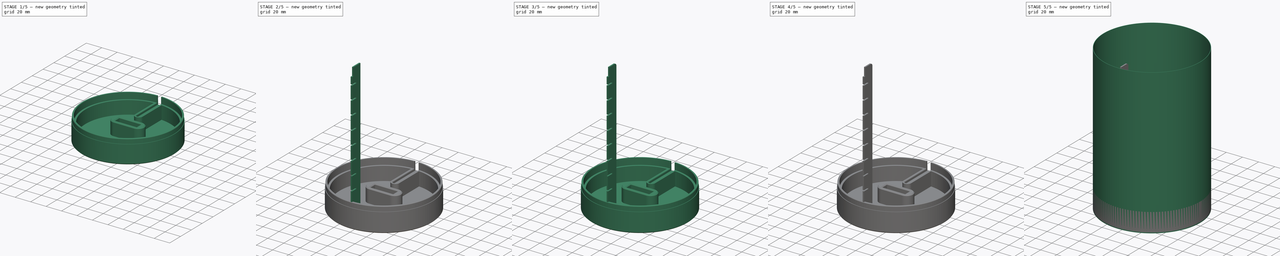
[diagram: build sequence overview — one tinted view per stage of 5, left to right]
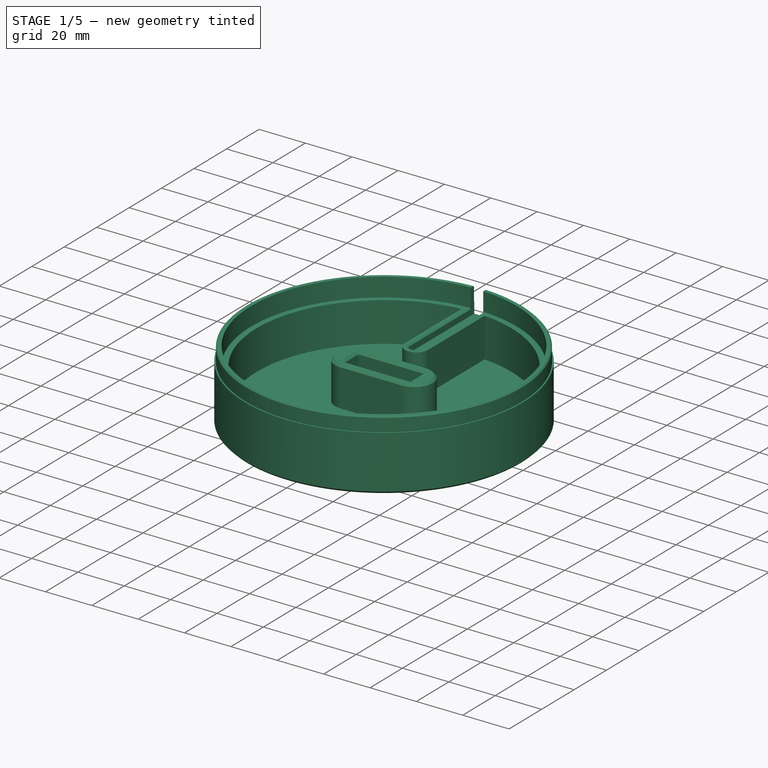
[diagram: stage 1 of 5 — iso view after this stage's code; geometry added in this stage tinted green]
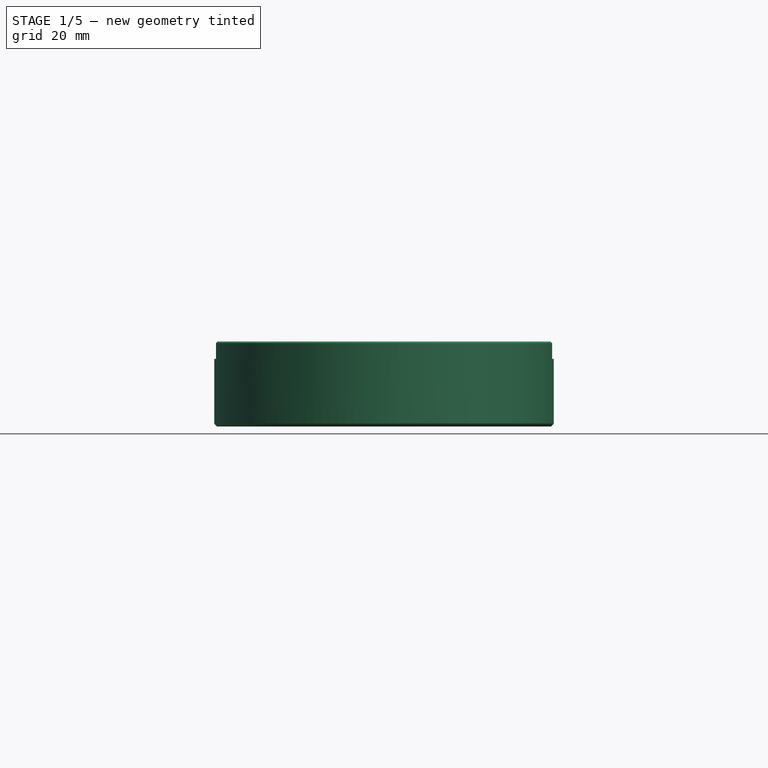
[diagram: stage 1 of 5 — front view after this stage's code; geometry added in this stage tinted green]
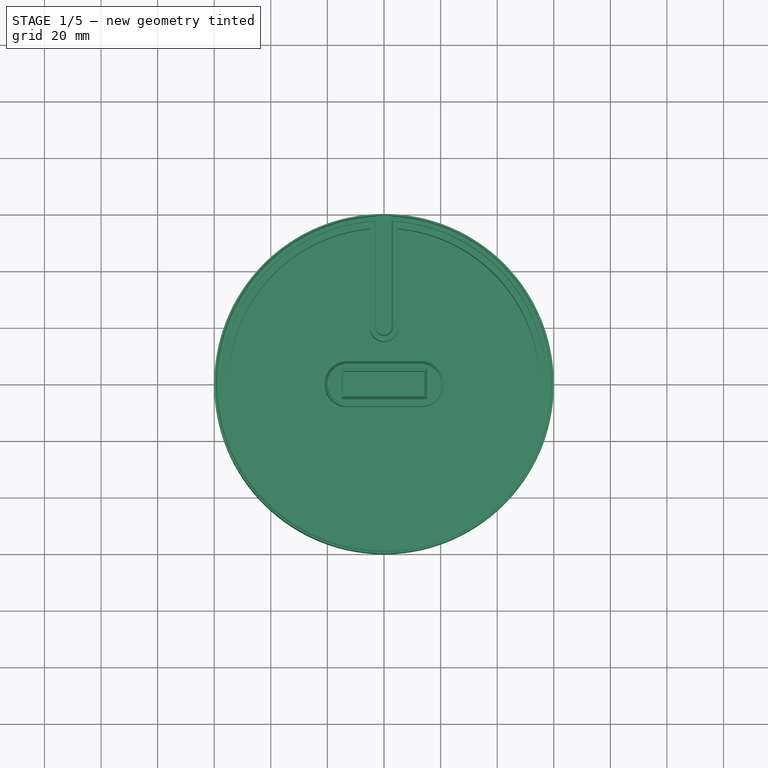
[diagram: stage 1 of 5 — top view after this stage's code; geometry added in this stage tinted green]
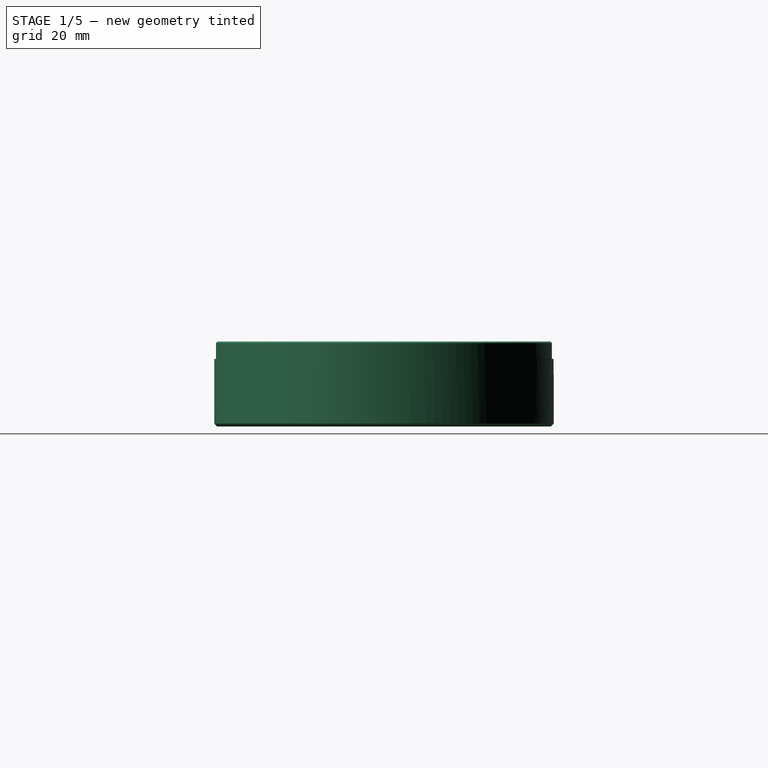
[diagram: stage 1 of 5 — right view after this stage's code; geometry added in this stage tinted green]
FCSTD DOCUMENT  (FreeCAD 0.17R13541 (Git))
Label: WS2812-Lamp
License: All rights reserved
LicenseURL: http://en.wikipedia.org/wiki/All_rights_reserved
objects: Sketcher::SketchObject×49, PartDesign::Pad×32, PartDesign::Body×32, PartDesign::Fillet×21, PartDesign::Plane×17, PartDesign::Pocket×17, PartDesign::PolarPattern×9, PartDesign::Chamfer×6
note: 232 computed .brp shape members not serialized (recipe doc carries the construction recipe); baked Part::Feature solids carry a one-line shape summary decoded from their .brp

FEATURE [PartDesign::Body] Body029  label="Vertical_Strut020"
  Group = -> [Sketch038,Pad029,Fillet019]
  Origin = -> Origin029
  Placement = pos=(0,0,0) rot=(0,0,1;0.296706rad)
  Tip = -> Fillet019
FEATURE [Sketcher::SketchObject] Sketch039
  MapMode = 5
  Support = -> [XY_Plane030]
  sketch-geometry (1):
    g0: Circle CenterX=0 CenterY=0 CenterZ=0 NormalX=0 NormalY=0 NormalZ=1 AngleXU=0 Radius=60
  constraints (2):
    c: Radius(g0) = 60
    c: Coincident(g0,g-1)
FEATURE [PartDesign::Pad] Pad030
  Length = 9.9
  Length2 = 100
  Profile = -> Sketch039
  Refine = true
  Type = 0
FEATURE [PartDesign::Plane] DatumPlane009
  MapMode = 5
  Placement = pos=(0,0,9.9) rot=(0,0,1;0rad)
  Support = -> [Pad030]
FEATURE [Sketcher::SketchObject] Sketch040
  MapMode = 5
  Placement = pos=(0,0,9.9) rot=(0,0,1;0rad)
  Support = -> [DatumPlane009]
  sketch-geometry (1):
    g0: Circle CenterX=0 CenterY=0 CenterZ=0 NormalX=0 NormalY=0 NormalZ=1 AngleXU=0 Radius=57.4
  constraints (2):
    c: Coincident(g0,g-1)
    c: Radius(g0) = 57.4
FEATURE [PartDesign::Pocket] Pocket009
  BaseFeature = -> Pad030
  Length = 8
  Length2 = 100
  Profile = -> Sketch040
  Refine = true
  Type = 0
FEATURE [PartDesign::Fillet] Fillet020
  Base = -> Pocket009 [Edge2]
  BaseFeature = -> Pocket009
  Radius = 3
FEATURE [PartDesign::Plane] DatumPlane010
  MapMode = 5
  Placement = pos=(0,0,9.9) rot=(0,0,1;0rad)
  Support = -> [Fillet020]
FEATURE [Sketcher::SketchObject] Sketch041
  MapMode = 5
  Placement = pos=(0,0,9.9) rot=(0,0,1;0rad)
  Support = -> [DatumPlane010]
  sketch-geometry (2):
    g0: Circle CenterX=0 CenterY=0 CenterZ=0 NormalX=0 NormalY=0 NormalZ=1 AngleXU=0 Radius=60
    g1: Circle CenterX=0 CenterY=0 CenterZ=0 NormalX=0 NormalY=0 NormalZ=1 AngleXU=0 Radius=59.4
  constraints (4):
    c: Coincident(g0,g-1)
    c: Radius(g0) = 60
    c: Coincident(g0,g1)
    c: Radius(g1) = 59.4
FEATURE [PartDesign::Pocket] Pocket010
  BaseFeature = -> Fillet020
  Length = 5
  Length2 = 100
  Profile = -> Sketch041
  Refine = true
  Type = 0
FEATURE [PartDesign::Chamfer] Chamfer
  Base = -> Pocket010 [Edge8]
  BaseFeature = -> Pocket010
  Size = 1
FEATURE [PartDesign::Body] Body030  label="Top-Lid"
  Group = -> [Sketch039,Pad030,DatumPlane009,Sketch040,Pocket009,Fillet020,DatumPlane010,Sketch041,Pocket010,Chamfer]
  Origin = -> Origin030
  Placement = pos=(0,0,-3) rot=(0,0,1;0rad)
  Tip = -> Chamfer
FEATURE [Sketcher::SketchObject] Sketch042
  MapMode = 5
  Support = -> [XY_Plane031]
  sketch-geometry (1):
    g0: Circle CenterX=0 CenterY=0 CenterZ=0 NormalX=0 NormalY=0 NormalZ=1 AngleXU=0 Radius=60
  constraints (2):
    c: Radius(g0) = 60
    c: Coincident(g0,g-1)
FEATURE [PartDesign::Pad] Pad031
  Length = 30
  Length2 = 100
  Profile = -> Sketch042
  Refine = true
  Type = 0
FEATURE [PartDesign::Plane] DatumPlane011
  MapMode = 5
  Placement = pos=(0,0,30) rot=(0,0,1;0rad)
  Support = -> [Pad031]
FEATURE [Sketcher::SketchObject] Sketch043
  MapMode = 5
  Placement = pos=(0,0,30) rot=(0,0,1;0rad)
  Support = -> [DatumPlane011]
  sketch-geometry (1):
    g0: Circle CenterX=0 CenterY=0 CenterZ=0 NormalX=0 NormalY=0 NormalZ=1 AngleXU=0 Radius=57.4
  constraints (2):
    c: Coincident(g0,g-1)
    c: Radius(g0) = 57.4
FEATURE [PartDesign::Pocket] Pocket011
  BaseFeature = -> Pad031
  Length = 8
  Length2 = 100
  Profile = -> Sketch043
  Refine = true
  Type = 0
FEATURE [PartDesign::Plane] DatumPlane012
  MapMode = 5
  Placement = pos=(0,0,30.9) rot=(0,0,1;0rad)
FEATURE [Sketcher::SketchObject] Sketch044
  MapMode = 5
  Placement = pos=(0,0,30.9) rot=(0,0,1;0rad)
  Support = -> [DatumPlane012]
  sketch-geometry (2):
    g0: Circle CenterX=0 CenterY=0 CenterZ=0 NormalX=0 NormalY=0 NormalZ=1 AngleXU=0 Radius=60
    g1: Circle CenterX=0 CenterY=0 CenterZ=0 NormalX=0 NormalY=0 NormalZ=1 AngleXU=0 Radius=59.4
  constraints (4):
    c: Coincident(g0,g-1)
    c: Radius(g0) = 60
    c: Coincident(g0,g1)
    c: Radius(g1) = 59.4
FEATURE [PartDesign::Pocket] Pocket012
  BaseFeature = -> Pocket011
  Length = 7
  Length2 = 100
  Profile = -> Sketch044
  Refine = true
  Type = 0
FEATURE [PartDesign::Chamfer] Chamfer001
  Base = -> Pocket012 [Edge5]
  BaseFeature = -> Pocket012
  Size = 0.5
FEATURE [PartDesign::Plane] DatumPlane013
  MapMode = 5
  Placement = pos=(0,0,30) rot=(0,0,1;0rad)
  Support = -> [Chamfer001]
FEATURE [Sketcher::SketchObject] Sketch045
  MapMode = 5
  Placement = pos=(0,0,30) rot=(0,0,1;0rad)
  Support = -> [DatumPlane013]
  sketch-geometry (4):
    g0: LineSegment StartX=-2.7 StartY=60 StartZ=0 EndX=-2.7 EndY=20 EndZ=0
    g1: ArcOfCircle CenterX=0 CenterY=20 CenterZ=0 NormalX=0 NormalY=0 NormalZ=1 AngleXU=0 Radius=2.7 StartAngle=3.14159 EndAngle=6.28319
    g2: LineSegment StartX=2.7 StartY=20 StartZ=0 EndX=2.7 EndY=60 EndZ=0
    g3: LineSegment StartX=2.7 StartY=60 StartZ=0 EndX=-2.7 EndY=60 EndZ=0
  constraints (12):
    c: Vertical(g0)
    c: Tangent(g0,g1) = -1.5708
    c: Coincident(g1,g2)
    c: Vertical(g2)
    c: Coincident(g2,g3)
    c: Coincident(g3,g0)
    c: Horizontal(g3)
    c: Symmetric(g0,g2,g-2)
    c: Symmetric(g1,g0,g-2)
    c: Radius(g1) = 2.7
    c: DistanceY(g1,g2) = 40
    c: DistanceY(g-1,g1) = 20
FEATURE [PartDesign::Pocket] Pocket013
  BaseFeature = -> Chamfer001
  Length = 11
  Length2 = 100
  Profile = -> Sketch045
  Refine = true
  Type = 0
FEATURE [PartDesign::Plane] DatumPlane014
  MapMode = 5
  Placement = pos=(0,0,22) rot=(0,0,1;0rad)
  Support = -> [Pocket013]
FEATURE [Sketcher::SketchObject] Sketch046
  ExternalGeometry = -> [Pocket013]
  MapMode = 5
  Placement = pos=(0,0,22) rot=(0,0,1;0rad)
  Support = -> [DatumPlane014]
  sketch-geometry (8):
    g0: ArcOfCircle CenterX=0 CenterY=0.0380105 CenterZ=0 NormalX=0 NormalY=0 NormalZ=1 AngleXU=0 Radius=55 StartAngle=1.66183 EndAngle=7.76295
    g1: LineSegment StartX=-5 StartY=54.8103 StartZ=0 EndX=-5 EndY=20 EndZ=0
    g2: ArcOfCircle CenterX=0 CenterY=20 CenterZ=0 NormalX=0 NormalY=0 NormalZ=1 AngleXU=0 Radius=5 StartAngle=3.14159 EndAngle=6.28319
    g3: LineSegment StartX=5 StartY=20 StartZ=0 EndX=5 EndY=54.8103 EndZ=0
    g4: ArcOfCircle CenterX=-13 CenterY=0 CenterZ=0 NormalX=0 NormalY=0 NormalZ=1 AngleXU=0 Radius=8 StartAngle=1.5708 EndAngle=4.71239
    g5: ArcOfCircle CenterX=13 CenterY=0 CenterZ=0 NormalX=0 NormalY=0 NormalZ=1 AngleXU=0 Radius=8 StartAngle=4.71239 EndAngle=7.85398
    g6: LineSegment StartX=-13 StartY=-8 StartZ=0 EndX=13 EndY=-8 EndZ=0
    g7: LineSegment StartX=-13 StartY=8 StartZ=0 EndX=13 EndY=8 EndZ=0
  constraints (20):
    c: Coincident(g0,g1)
    c: Tangent(g1,g2) = -1.5708
    c: Coincident(g2,g3)
    c: Coincident(g3,g0)
    c: Vertical(g3)
    c: Symmetric(g1,g2,g-2)
    c: Vertical(g1)
    c: Radius(g2) = 5
    c: Radius(g0) = 55
    c: Coincident(g2,g-3)
    c: Tangent(g4,g7) = 1.5708
    c: Tangent(g4,g6) = -1.5708
    c: Tangent(g6,g5) = -1.5708
    c: Tangent(g7,g5) = 1.5708
    c: Horizontal(g6)
    c: Equal(g4,g5)
    c: PointOnObject(g4,g-1)
    c: Symmetric(g4,g5,g-2)
    c: Radius(g4) = 8
    c: DistanceX(g4,g5) = 26
FEATURE [PartDesign::Pocket] Pocket014
  BaseFeature = -> Pocket013
  Length = 17
  Length2 = 100
  Profile = -> Sketch046
  Refine = true
  Type = 0
FEATURE [PartDesign::Plane] DatumPlane015
  MapMode = 5
  Placement = pos=(0,0,22) rot=(0,0,1;0rad)
  Support = -> [Pocket014]
FEATURE [Sketcher::SketchObject] Sketch047
  MapMode = 5
  Placement = pos=(0,0,22) rot=(0,0,1;0rad)
  Support = -> [DatumPlane015]
  sketch-geometry (4):
    g0: LineSegment StartX=-14.25 StartY=4.5 StartZ=0 EndX=14.25 EndY=4.5 EndZ=0
    g1: LineSegment StartX=14.25 StartY=4.5 StartZ=0 EndX=14.25 EndY=-4.5 EndZ=0
    g2: LineSegment StartX=14.25 StartY=-4.5 StartZ=0 EndX=-14.25 EndY=-4.5 EndZ=0
    g3: LineSegment StartX=-14.25 StartY=-4.5 StartZ=0 EndX=-14.25 EndY=4.5 EndZ=0
  constraints (12):
    c: Coincident(g0,g1)
    c: Coincident(g1,g2)
    c: Coincident(g2,g3)
    c: Coincident(g3,g0)
    c: Horizontal(g0)
    c: Horizontal(g2)
    c: Vertical(g1)
    c: Vertical(g3)
    c: Symmetric(g2,g0,g-1)
    c: Symmetric(g2,g1,g-2)
    c: DistanceX(g2,g1) = 28.5
    c: DistanceY(g1,g0) = 9
FEATURE [PartDesign::Pocket] Pocket015
  BaseFeature = -> Pocket014
  Length = 20
  Length2 = 100
  Profile = -> Sketch047
  Refine = true
  Type = 0
FEATURE [PartDesign::Plane] DatumPlane016
  MapMode = 5
  Placement = pos=(0,0,2) rot=(0,0,1;0rad)
  Support = -> [Pocket015]
FEATURE [Sketcher::SketchObject] Sketch048
  MapMode = 5
  Placement = pos=(0,0,2) rot=(0,0,1;0rad)
  Support = -> [DatumPlane016]
  sketch-geometry (8):
    g0: LineSegment StartX=-3.75 StartY=4.03307 StartZ=0 EndX=3.75 EndY=4.03307 EndZ=0
    g1: LineSegment StartX=4.25 StartY=3.53307 StartZ=0 EndX=4.25 EndY=1.03307 EndZ=0
    g2: LineSegment StartX=3.75 StartY=0.533069 StartZ=0 EndX=-3.75 EndY=0.533069 EndZ=0
    g3: LineSegment StartX=-4.25 StartY=1.03307 StartZ=0 EndX=-4.25 EndY=3.53307 EndZ=0
    g4: ArcOfCircle CenterX=3.75 CenterY=3.53307 CenterZ=0 NormalX=0 NormalY=0 NormalZ=1 AngleXU=0 Radius=0.5 StartAngle=0 EndAngle=1.5708
    g5: ArcOfCircle CenterX=3.75 CenterY=1.03307 CenterZ=0 NormalX=0 NormalY=0 NormalZ=1 AngleXU=0 Radius=0.5 StartAngle=4.71239 EndAngle=6.28319
    g6: ArcOfCircle CenterX=-3.75 CenterY=1.03307 CenterZ=0 NormalX=0 NormalY=0 NormalZ=1 AngleXU=0 Radius=0.5 StartAngle=3.14159 EndAngle=4.71239
    g7: ArcOfCircle CenterX=-3.75 CenterY=3.53307 CenterZ=0 NormalX=0 NormalY=0 NormalZ=1 AngleXU=0 Radius=0.5 StartAngle=1.5708 EndAngle=3.14159
  constraints (19):
    c: Horizontal(g0)
    c: Horizontal(g2)
    c: Vertical(g1)
    c: Vertical(g3)
    c: Tangent(g0,g4) = 1.5708
    c: Tangent(g1,g4) = 1.5708
    c: Tangent(g1,g5) = 1.5708
    c: Tangent(g2,g5) = 1.5708
    c: Tangent(g2,g6) = 1.5708
    c: Tangent(g3,g6) = 1.5708
    c: Tangent(g0,g7) = 1.5708
    c: Tangent(g3,g7) = 1.5708
    c: Equal(g7,g4)
    c: Equal(g4,g5)
    c: Equal(g5,g6)
    c: DistanceX(g3,g1) = 8.5
    c: Symmetric(g3,g1,g-2)
    c: DistanceY(g2,g0) = 3.5
    c: Radius(g5) = 0.5
FEATURE [PartDesign::Pocket] Pocket016  label="Micro-USB-Pocket"
  BaseFeature = -> Pocket015
  Length = 5
  Length2 = 100
  Profile = -> Sketch048
  Refine = true
  Type = 1
FEATURE [PartDesign::Chamfer] Chamfer002
  Base = -> Pocket016 [Edge90,Edge93,Edge92,Edge91]
  BaseFeature = -> Pocket016
  Size = 1
FEATURE [PartDesign::Chamfer] Chamfer003
  Base = -> Chamfer002 [Edge92,Edge97,Edge96,Edge82,Edge70,Edge73,Edge72]
  BaseFeature = -> Chamfer002
  Size = 0.5
FEATURE [PartDesign::Chamfer] Chamfer004
  Base = -> Chamfer003 [Edge79]
  BaseFeature = -> Chamfer003
  Size = 1
FEATURE [PartDesign::Chamfer] Chamfer005
  Base = -> Chamfer004 [Edge119,Edge121,Edge120,Edge118]
  BaseFeature = -> Chamfer004
  Size = 1
FEATURE [PartDesign::Body] Body031  label="Bottom-Stand"
  Group = -> [Sketch042,Pad031,DatumPlane011,Sketch043,Pocket011,DatumPlane012,Sketch044,Pocket012,Chamfer001,DatumPlane013,Sketch045,Pocket013,DatumPlane014,Sketch046,Pocket014,DatumPlane015,Sketch047,Pocket015,DatumPlane016,Sketch048,Pocket016,Chamfer002,Chamfer003,Chamfer004,Chamfer005]
  Origin = -> Origin031
  Placement = pos=(0,0,203) rot=(1,0,0;3.14159rad)
  Tip = -> Chamfer005
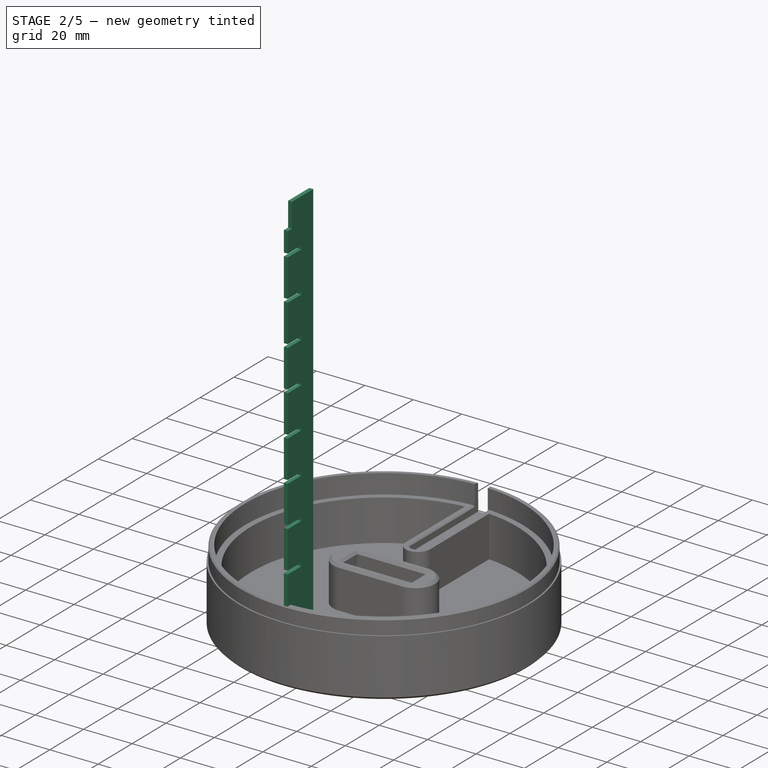
[diagram: stage 2 of 5 — iso view after this stage's code; geometry added in this stage tinted green]
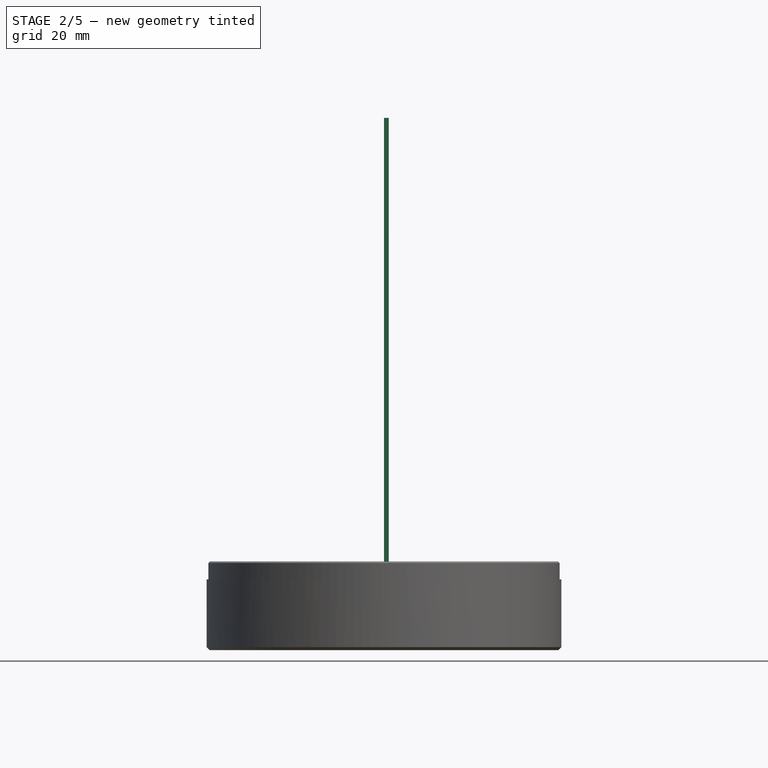
[diagram: stage 2 of 5 — front view after this stage's code; geometry added in this stage tinted green]
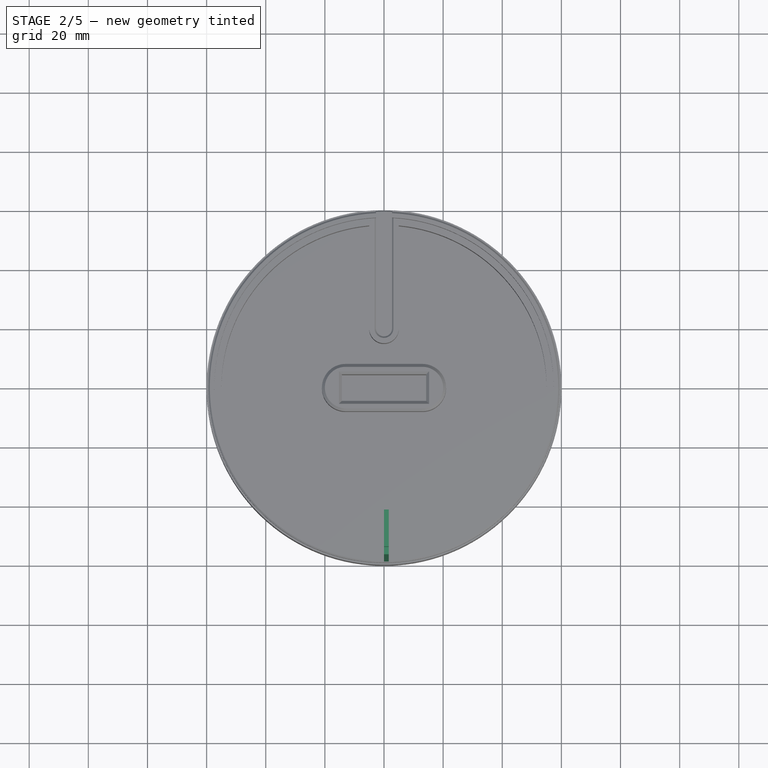
[diagram: stage 2 of 5 — top view after this stage's code; geometry added in this stage tinted green]
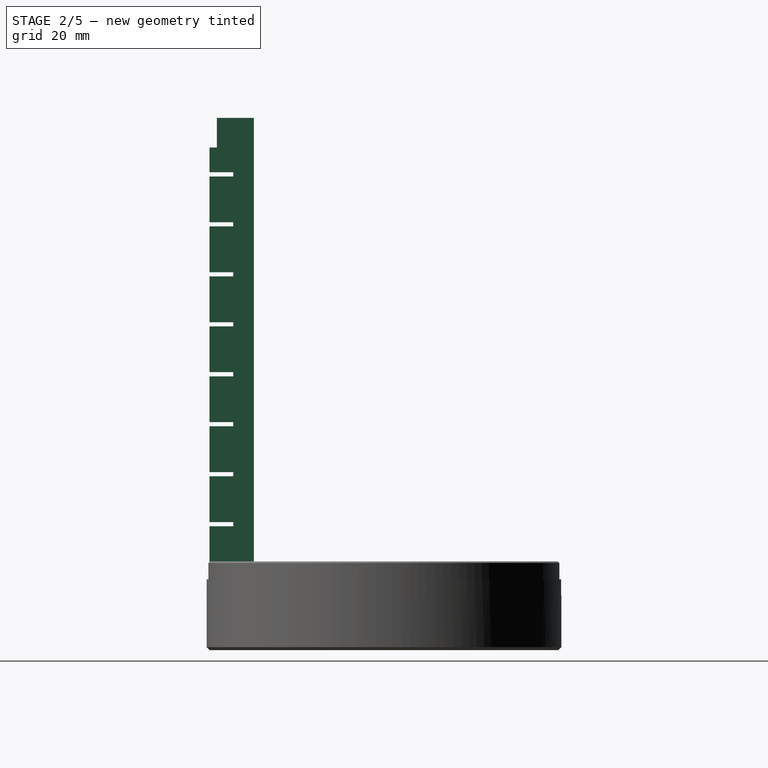
[diagram: stage 2 of 5 — right view after this stage's code; geometry added in this stage tinted green]
FEATURE [PartDesign::Body] Body020  label="Vertical_Strut011"
  Group = -> [Sketch029,Pad020,Fillet010]
  Origin = -> Origin020
  Placement = pos=(0,0,0) rot=(0,0,1;3.12414rad)
  Tip = -> Fillet010
FEATURE [Sketcher::SketchObject] Sketch030
  MapMode = 5
  Placement = pos=(0,0,0) rot=(0.57735,0.57735,0.57735;2.0944rad)
  Support = -> [YZ_Plane021]
  sketch-geometry (44):
    g0: LineSegment StartX=-44 StartY=0 StartZ=0 EndX=-44 EndY=180 EndZ=0
    g1: LineSegment StartX=-44 StartY=180 StartZ=0 EndX=-56.5 EndY=180 EndZ=0
    g2: LineSegment StartX=-59 StartY=170 StartZ=0 EndX=-59 EndY=161.6 EndZ=0
    g3: LineSegment StartX=-59 StartY=161.6 StartZ=0 EndX=-51 EndY=161.6 EndZ=0
    g4: LineSegment StartX=-51 StartY=161.6 StartZ=0 EndX=-51 EndY=160.2 EndZ=0
    g5: LineSegment StartX=-51 StartY=160.2 StartZ=0 EndX=-59 EndY=160.2 EndZ=0
    g6: LineSegment StartX=-59 StartY=144.7 StartZ=0 EndX=-51 EndY=144.7 EndZ=0
    g7: LineSegment StartX=-51 StartY=144.7 StartZ=0 EndX=-51 EndY=143.3 EndZ=0
    g8: LineSegment StartX=-51 StartY=143.3 StartZ=0 EndX=-59 EndY=143.3 EndZ=0
    g9: LineSegment StartX=-59 StartY=126.4 StartZ=0 EndX=-51 EndY=126.4 EndZ=0
    g10: LineSegment StartX=-51 StartY=126.4 StartZ=0 EndX=-51 EndY=127.8 EndZ=0
    g11: LineSegment StartX=-51 StartY=127.8 StartZ=0 EndX=-59 EndY=127.8 EndZ=0
    g12: LineSegment StartX=-59 StartY=110.9 StartZ=0 EndX=-51 EndY=110.9 EndZ=0
    g13: LineSegment StartX=-51 StartY=110.9 StartZ=0 EndX=-51 EndY=109.5 EndZ=0
    g14: LineSegment StartX=-51 StartY=109.5 StartZ=0 EndX=-59 EndY=109.5 EndZ=0
    g15: LineSegment StartX=-59 StartY=109.5 StartZ=0 EndX=-59 EndY=94 EndZ=0
    g16: LineSegment StartX=-59 StartY=94 StartZ=0 EndX=-51 EndY=94 EndZ=0
    g17: LineSegment StartX=-51 StartY=94 StartZ=0 EndX=-51 EndY=92.6 EndZ=0
    g18: LineSegment StartX=-51 StartY=92.6 StartZ=0 EndX=-59 EndY=92.6 EndZ=0
    g19: LineSegment StartX=-59 StartY=92.6 StartZ=0 EndX=-59 EndY=77.1 EndZ=0
    g20: LineSegment StartX=-59 StartY=77.1 StartZ=0 EndX=-51 EndY=77.1 EndZ=0
    g21: LineSegment StartX=-51 StartY=77.1 StartZ=0 EndX=-51 EndY=75.7 EndZ=0
    g22: LineSegment StartX=-51 StartY=75.7 StartZ=0 EndX=-59 EndY=75.7 EndZ=0
    g23: LineSegment StartX=-59 StartY=75.7 StartZ=0 EndX=-59 EndY=60.2 EndZ=0
    g24: LineSegment StartX=-59 StartY=60.2 StartZ=0 EndX=-51 EndY=60.2 EndZ=0
    g25: LineSegment StartX=-51 StartY=60.2 StartZ=0 EndX=-51 EndY=58.8 EndZ=0
    g26: LineSegment StartX=-51 StartY=58.8 StartZ=0 EndX=-59 EndY=58.8 EndZ=0
    g27: LineSegment StartX=-59 StartY=58.8 StartZ=0 EndX=-59 EndY=43.3 EndZ=0
    g28: LineSegment StartX=-59 StartY=43.3 StartZ=0 EndX=-51 EndY=43.3 EndZ=0
    g29: LineSegment StartX=-51 StartY=43.3 StartZ=0 EndX=-51 EndY=41.9 EndZ=0
    g30: LineSegment StartX=-51 StartY=41.9 StartZ=0 EndX=-59 EndY=41.9 EndZ=0
    g31: LineSegment StartX=-59 StartY=23.6 StartZ=0 EndX=-51 EndY=23.6 EndZ=0
    g32: LineSegment StartX=-51 StartY=23.6 StartZ=0 EndX=-51 EndY=25 EndZ=0
    g33: LineSegment StartX=-51 StartY=25 StartZ=0 EndX=-59 EndY=25 EndZ=0
    g34: LineSegment StartX=-56.5 StartY=0 StartZ=0 EndX=-44 EndY=0 EndZ=0
    g35: LineSegment StartX=-59 StartY=10 StartZ=0 EndX=-59 EndY=23.6 EndZ=0
    g36: LineSegment StartX=-59 StartY=41.9 StartZ=0 EndX=-59 EndY=25 EndZ=0
    g37: LineSegment StartX=-59 StartY=110.9 StartZ=0 EndX=-59 EndY=126.4 EndZ=0
    g38: LineSegment StartX=-59 StartY=160.2 StartZ=0 EndX=-59 EndY=144.7 EndZ=0
    g39: LineSegment StartX=-59 StartY=143.3 StartZ=0 EndX=-59 EndY=127.8 EndZ=0
    g40: LineSegment StartX=-56.5 StartY=180 StartZ=0 EndX=-56.5 EndY=170 EndZ=0
    g41: LineSegment StartX=-56.5 StartY=170 StartZ=0 EndX=-59 EndY=170 EndZ=0
    g42: LineSegment StartX=-59 StartY=10 StartZ=0 EndX=-56.5 EndY=10 EndZ=0
    g43: LineSegment StartX=-56.5 StartY=10 StartZ=0 EndX=-56.5 EndY=0 EndZ=0
  constraints (131):
    c: Vertical(g0)
    c: Coincident(g0,g1)
    c: Horizontal(g1)
    c: Vertical(g2)
    c: Coincident(g2,g3)
    c: Horizontal(g3)
    c: Coincident(g3,g4)
    c: Vertical(g4)
    c: Coincident(g4,g5)
    c: Horizontal(g5)
    c: Horizontal(g6)
    c: Coincident(g6,g7)
    c: Vertical(g7)
    c: Coincident(g7,g8)
    c: Horizontal(g8)
    c: Horizontal(g9)
    c: Coincident(g9,g10)
    c: Coincident(g10,g11)
    c: Horizontal(g11)
    c: Horizontal(g12)
    c: Coincident(g12,g13)
    c: Vertical(g13)
    c: Coincident(g13,g14)
    c: Horizontal(g14)
    c: Coincident(g14,g15)
    c: Vertical(g15)
    c: Coincident(g15,g16)
    c: Horizontal(g16)
    c: Coincident(g16,g17)
    c: Coincident(g17,g18)
    c: Horizontal(g18)
    c: Coincident(g18,g19)
    c: Vertical(g19)
    c: Coincident(g19,g20)
    c: Horizontal(g20)
    c: Coincident(g20,g21)
    c: Vertical(g21)
    c: Coincident(g21,g22)
    c: Horizontal(g22)
    c: Coincident(g22,g23)
    c: Vertical(g23)
    c: Coincident(g23,g24)
    c: Horizontal(g24)
    c: Coincident(g24,g25)
    c: Vertical(g25)
    c: Coincident(g25,g26)
    c: Horizontal(g26)
    c: Coincident(g26,g27)
    c: Coincident(g27,g28)
    c: Horizontal(g28)
    c: Coincident(g28,g29)
    c: Vertical(g29)
    c: Coincident(g29,g30)
    c: Horizontal(g30)
    c: Horizontal(g31)
    c: Coincident(g31,g32)
    c: Vertical(g32)
    c: Coincident(g32,g33)
    c: Horizontal(g33)
    c: Coincident(g34,g0)
    c: Horizontal(g34)
    c: Vertical(g27)
    c: DistanceX(g2,g3) = 8
    c: Equal(g3,g5)
    c: Equal(g5,g6)
    c: Equal(g6,g8)
    c: Equal(g8,g9)
    c: Equal(g9,g11)
    c: Equal(g11,g12)
    c: Equal(g12,g14)
    c: Equal(g14,g16)
    c: Equal(g16,g18)
    c: Equal(g18,g20)
    c: Equal(g20,g22)
    c: Equal(g22,g24)
    c: Equal(g24,g26)
    c: Equal(g26,g28)
    c: Equal(g28,g30)
    c: Equal(g30,g31)
    c: Equal(g31,g33)
    c: Vertical(g17)
    c: Vertical(g10)
    c: DistanceY(g4,g3) = 1.4
    c: Equal(g4,g7)
    c: Equal(g7,g10)
    c: Equal(g10,g13)
    c: Equal(g13,g17)
    c: Equal(g17,g21)
    c: Equal(g21,g25)
    c: Equal(g25,g29)
    c: Equal(g29,g32)
    c: DistanceY(g33,g27) = 18.3
    c: DistanceY(g29,g24) = 18.3
    c: DistanceY(g25,g20) = 18.3
    c: DistanceY(g21,g16) = 18.3
    c: DistanceY(g17,g12) = 18.3
    c: DistanceY(g13,g10) = 18.3
    c: DistanceY(g9,g6) = 18.3
    c: DistanceY(g7,g3) = 18.3
    c: Coincident(g35,g31)
    c: Vertical(g35)
    c: Coincident(g36,g30)
    c: Coincident(g36,g33)
    c: Vertical(g36)
    c: Coincident(g37,g12)
    c: Coincident(g37,g9)
    c: Vertical(g37)
    c: Vertical(g38)
    c: Vertical(g39)
    c: Coincident(g5,g38)
    c: Coincident(g6,g38)
    c: Coincident(g8,g39)
    c: Coincident(g11,g39)
    c: Vertical(g40)
    c: Coincident(g40,g41)
    c: Horizontal(g41)
    c: Coincident(g1,g40)
    c: Coincident(g2,g41)
    c: DistanceX(g2,g40) = 2.5
    c: DistanceY(g40,g1) = 10
    c: Horizontal(g42)
    c: Coincident(g42,g43)
    c: Vertical(g43)
    c: Coincident(g34,g43)
    c: Coincident(g35,g42)
    c: DistanceX(g35,g42) = 2.5
    c: DistanceY(g34,g42) = 10
    c: PointOnObject(g34,g-1)
    c: DistanceY(g0,g0) = 180
    c: DistanceX(g34,g0) = 12.5
    c: DistanceY(g35,g31) = 13.6
FEATURE [PartDesign::Pad] Pad021
  Length = 1.6
  Length2 = 100
  Placement = pos=(0,0,0) rot=(0.57735,0.57735,0.57735;2.0944rad)
  Profile = -> Sketch030
  Refine = true
  Type = 0
FEATURE [PartDesign::Body] Body021  label="Vertical_Strut012"
  Group = -> [Sketch030,Pad021,Fillet011]
  Origin = -> Origin021
  Placement = pos=(0,0,0) rot=(0,0,1;2.80998rad)
  Tip = -> Fillet011
FEATURE [Sketcher::SketchObject] Sketch031
  MapMode = 5
  Placement = pos=(0,0,0) rot=(0.57735,0.57735,0.57735;2.0944rad)
  Support = -> [YZ_Plane022]
  sketch-geometry (44):
    g0: LineSegment StartX=-44 StartY=0 StartZ=0 EndX=-44 EndY=180 EndZ=0
    g1: LineSegment StartX=-44 StartY=180 StartZ=0 EndX=-56.5 EndY=180 EndZ=0
    g2: LineSegment StartX=-59 StartY=170 StartZ=0 EndX=-59 EndY=161.6 EndZ=0
    g3: LineSegment StartX=-59 StartY=161.6 StartZ=0 EndX=-51 EndY=161.6 EndZ=0
    g4: LineSegment StartX=-51 StartY=161.6 StartZ=0 EndX=-51 EndY=160.2 EndZ=0
    g5: LineSegment StartX=-51 StartY=160.2 StartZ=0 EndX=-59 EndY=160.2 EndZ=0
    g6: LineSegment StartX=-59 StartY=144.7 StartZ=0 EndX=-51 EndY=144.7 EndZ=0
    g7: LineSegment StartX=-51 StartY=144.7 StartZ=0 EndX=-51 EndY=143.3 EndZ=0
    g8: LineSegment StartX=-51 StartY=143.3 StartZ=0 EndX=-59 EndY=143.3 EndZ=0
    g9: LineSegment StartX=-59 StartY=126.4 StartZ=0 EndX=-51 EndY=126.4 EndZ=0
    g10: LineSegment StartX=-51 StartY=126.4 StartZ=0 EndX=-51 EndY=127.8 EndZ=0
    g11: LineSegment StartX=-51 StartY=127.8 StartZ=0 EndX=-59 EndY=127.8 EndZ=0
    g12: LineSegment StartX=-59 StartY=110.9 StartZ=0 EndX=-51 EndY=110.9 EndZ=0
    g13: LineSegment StartX=-51 StartY=110.9 StartZ=0 EndX=-51 EndY=109.5 EndZ=0
    g14: LineSegment StartX=-51 StartY=109.5 StartZ=0 EndX=-59 EndY=109.5 EndZ=0
    g15: LineSegment StartX=-59 StartY=109.5 StartZ=0 EndX=-59 EndY=94 EndZ=0
    g16: LineSegment StartX=-59 StartY=94 StartZ=0 EndX=-51 EndY=94 EndZ=0
    g17: LineSegment StartX=-51 StartY=94 StartZ=0 EndX=-51 EndY=92.6 EndZ=0
    g18: LineSegment StartX=-51 StartY=92.6 StartZ=0 EndX=-59 EndY=92.6 EndZ=0
    g19: LineSegment StartX=-59 StartY=92.6 StartZ=0 EndX=-59 EndY=77.1 EndZ=0
    g20: LineSegment StartX=-59 StartY=77.1 StartZ=0 EndX=-51 EndY=77.1 EndZ=0
    g21: LineSegment StartX=-51 StartY=77.1 StartZ=0 EndX=-51 EndY=75.7 EndZ=0
    g22: LineSegment StartX=-51 StartY=75.7 StartZ=0 EndX=-59 EndY=75.7 EndZ=0
    g23: LineSegment StartX=-59 StartY=75.7 StartZ=0 EndX=-59 EndY=60.2 EndZ=0
    g24: LineSegment StartX=-59 StartY=60.2 StartZ=0 EndX=-51 EndY=60.2 EndZ=0
    g25: LineSegment StartX=-51 StartY=60.2 StartZ=0 EndX=-51 EndY=58.8 EndZ=0
    g26: LineSegment StartX=-51 StartY=58.8 StartZ=0 EndX=-59 EndY=58.8 EndZ=0
    g27: LineSegment StartX=-59 StartY=58.8 StartZ=0 EndX=-59 EndY=43.3 EndZ=0
    g28: LineSegment StartX=-59 StartY=43.3 StartZ=0 EndX=-51 EndY=43.3 EndZ=0
    g29: LineSegment StartX=-51 StartY=43.3 StartZ=0 EndX=-51 EndY=41.9 EndZ=0
    g30: LineSegment StartX=-51 StartY=41.9 StartZ=0 EndX=-59 EndY=41.9 EndZ=0
    g31: LineSegment StartX=-59 StartY=23.6 StartZ=0 EndX=-51 EndY=23.6 EndZ=0
    g32: LineSegment StartX=-51 StartY=23.6 StartZ=0 EndX=-51 EndY=25 EndZ=0
    g33: LineSegment StartX=-51 StartY=25 StartZ=0 EndX=-59 EndY=25 EndZ=0
    g34: LineSegment StartX=-56.5 StartY=0 StartZ=0 EndX=-44 EndY=0 EndZ=0
    g35: LineSegment StartX=-59 StartY=10 StartZ=0 EndX=-59 EndY=23.6 EndZ=0
    g36: LineSegment StartX=-59 StartY=41.9 StartZ=0 EndX=-59 EndY=25 EndZ=0
    g37: LineSegment StartX=-59 StartY=110.9 StartZ=0 EndX=-59 EndY=126.4 EndZ=0
    g38: LineSegment StartX=-59 StartY=160.2 StartZ=0 EndX=-59 EndY=144.7 EndZ=0
    g39: LineSegment StartX=-59 StartY=143.3 StartZ=0 EndX=-59 EndY=127.8 EndZ=0
    g40: LineSegment StartX=-56.5 StartY=180 StartZ=0 EndX=-56.5 EndY=170 EndZ=0
    g41: LineSegment StartX=-56.5 StartY=170 StartZ=0 EndX=-59 EndY=170 EndZ=0
    g42: LineSegment StartX=-59 StartY=10 StartZ=0 EndX=-56.5 EndY=10 EndZ=0
    g43: LineSegment StartX=-56.5 StartY=10 StartZ=0 EndX=-56.5 EndY=0 EndZ=0
  constraints (131):
    c: Vertical(g0)
    c: Coincident(g0,g1)
    c: Horizontal(g1)
    c: Vertical(g2)
    c: Coincident(g2,g3)
    c: Horizontal(g3)
    c: Coincident(g3,g4)
    c: Vertical(g4)
    c: Coincident(g4,g5)
    c: Horizontal(g5)
    c: Horizontal(g6)
    c: Coincident(g6,g7)
    c: Vertical(g7)
    c: Coincident(g7,g8)
    c: Horizontal(g8)
    c: Horizontal(g9)
    c: Coincident(g9,g10)
    c: Coincident(g10,g11)
    c: Horizontal(g11)
    c: Horizontal(g12)
    c: Coincident(g12,g13)
    c: Vertical(g13)
    c: Coincident(g13,g14)
    c: Horizontal(g14)
    c: Coincident(g14,g15)
    c: Vertical(g15)
    c: Coincident(g15,g16)
    c: Horizontal(g16)
    c: Coincident(g16,g17)
    c: Coincident(g17,g18)
    c: Horizontal(g18)
    c: Coincident(g18,g19)
    c: Vertical(g19)
    c: Coincident(g19,g20)
    c: Horizontal(g20)
    c: Coincident(g20,g21)
    c: Vertical(g21)
    c: Coincident(g21,g22)
    c: Horizontal(g22)
    c: Coincident(g22,g23)
    c: Vertical(g23)
    c: Coincident(g23,g24)
    c: Horizontal(g24)
    c: Coincident(g24,g25)
    c: Vertical(g25)
    c: Coincident(g25,g26)
    c: Horizontal(g26)
    c: Coincident(g26,g27)
    c: Coincident(g27,g28)
    c: Horizontal(g28)
    c: Coincident(g28,g29)
    c: Vertical(g29)
    c: Coincident(g29,g30)
    c: Horizontal(g30)
    c: Horizontal(g31)
    c: Coincident(g31,g32)
    c: Vertical(g32)
    c: Coincident(g32,g33)
    c: Horizontal(g33)
    c: Coincident(g34,g0)
    c: Horizontal(g34)
    c: Vertical(g27)
    c: DistanceX(g2,g3) = 8
    c: Equal(g3,g5)
    c: Equal(g5,g6)
    c: Equal(g6,g8)
    c: Equal(g8,g9)
    c: Equal(g9,g11)
    c: Equal(g11,g12)
    c: Equal(g12,g14)
    c: Equal(g14,g16)
    c: Equal(g16,g18)
    c: Equal(g18,g20)
    c: Equal(g20,g22)
    c: Equal(g22,g24)
    c: Equal(g24,g26)
    c: Equal(g26,g28)
    c: Equal(g28,g30)
    c: Equal(g30,g31)
    c: Equal(g31,g33)
    c: Vertical(g17)
    c: Vertical(g10)
    c: DistanceY(g4,g3) = 1.4
    c: Equal(g4,g7)
    c: Equal(g7,g10)
    c: Equal(g10,g13)
    c: Equal(g13,g17)
    c: Equal(g17,g21)
    c: Equal(g21,g25)
    c: Equal(g25,g29)
    c: Equal(g29,g32)
    c: DistanceY(g33,g27) = 18.3
    c: DistanceY(g29,g24) = 18.3
    c: DistanceY(g25,g20) = 18.3
    c: DistanceY(g21,g16) = 18.3
    c: DistanceY(g17,g12) = 18.3
    c: DistanceY(g13,g10) = 18.3
    c: DistanceY(g9,g6) = 18.3
    c: DistanceY(g7,g3) = 18.3
    c: Coincident(g35,g31)
    c: Vertical(g35)
    c: Coincident(g36,g30)
    c: Coincident(g36,g33)
    c: Vertical(g36)
    c: Coincident(g37,g12)
    c: Coincident(g37,g9)
    c: Vertical(g37)
    c: Vertical(g38)
    c: Vertical(g39)
    c: Coincident(g5,g38)
    c: Coincident(g6,g38)
    c: Coincident(g8,g39)
    c: Coincident(g11,g39)
    c: Vertical(g40)
    c: Coincident(g40,g41)
    c: Horizontal(g41)
    c: Coincident(g1,g40)
    c: Coincident(g2,g41)
    c: DistanceX(g2,g40) = 2.5
    c: DistanceY(g40,g1) = 10
    c: Horizontal(g42)
    c: Coincident(g42,g43)
    c: Vertical(g43)
    c: Coincident(g34,g43)
    c: Coincident(g35,g42)
    c: DistanceX(g35,g42) = 2.5
    c: DistanceY(g34,g42) = 10
    c: PointOnObject(g34,g-1)
    c: DistanceY(g0,g0) = 180
    c: DistanceX(g34,g0) = 12.5
    c: DistanceY(g35,g31) = 13.6
FEATURE [PartDesign::Pad] Pad022
  Length = 1.6
  Length2 = 100
  Placement = pos=(0,0,0) rot=(0.57735,0.57735,0.57735;2.0944rad)
  Profile = -> Sketch031
  Refine = true
  Type = 0
FEATURE [PartDesign::Fillet] Fillet012
  Base = -> Pad022 [Edge11,Edge8]
  BaseFeature = -> Pad022
  Placement = pos=(0,0,0) rot=(0.57735,0.57735,0.57735;2.0944rad)
  Radius = 3
FEATURE [PartDesign::Body] Body022  label="Vertical_Strut013"
  Group = -> [Sketch031,Pad022,Fillet012]
  Origin = -> Origin022
  Placement = pos=(0,0,0) rot=(0,0,1;2.49582rad)
  Tip = -> Fillet012
FEATURE [Sketcher::SketchObject] Sketch032
  MapMode = 5
  Placement = pos=(0,0,0) rot=(0.57735,0.57735,0.57735;2.0944rad)
  Support = -> [YZ_Plane023]
  sketch-geometry (44):
    g0: LineSegment StartX=-44 StartY=0 StartZ=0 EndX=-44 EndY=180 EndZ=0
    g1: LineSegment StartX=-44 StartY=180 StartZ=0 EndX=-56.5 EndY=180 EndZ=0
    g2: LineSegment StartX=-59 StartY=170 StartZ=0 EndX=-59 EndY=161.6 EndZ=0
    g3: LineSegment StartX=-59 StartY=161.6 StartZ=0 EndX=-51 EndY=161.6 EndZ=0
    g4: LineSegment StartX=-51 StartY=161.6 StartZ=0 EndX=-51 EndY=160.2 EndZ=0
    g5: LineSegment StartX=-51 StartY=160.2 StartZ=0 EndX=-59 EndY=160.2 EndZ=0
    g6: LineSegment StartX=-59 StartY=144.7 StartZ=0 EndX=-51 EndY=144.7 EndZ=0
    g7: LineSegment StartX=-51 StartY=144.7 StartZ=0 EndX=-51 EndY=143.3 EndZ=0
    g8: LineSegment StartX=-51 StartY=143.3 StartZ=0 EndX=-59 EndY=143.3 EndZ=0
    g9: LineSegment StartX=-59 StartY=126.4 StartZ=0 EndX=-51 EndY=126.4 EndZ=0
    g10: LineSegment StartX=-51 StartY=126.4 StartZ=0 EndX=-51 EndY=127.8 EndZ=0
    g11: LineSegment StartX=-51 StartY=127.8 StartZ=0 EndX=-59 EndY=127.8 EndZ=0
    g12: LineSegment StartX=-59 StartY=110.9 StartZ=0 EndX=-51 EndY=110.9 EndZ=0
    g13: LineSegment StartX=-51 StartY=110.9 StartZ=0 EndX=-51 EndY=109.5 EndZ=0
    g14: LineSegment StartX=-51 StartY=109.5 StartZ=0 EndX=-59 EndY=109.5 EndZ=0
    g15: LineSegment StartX=-59 StartY=109.5 StartZ=0 EndX=-59 EndY=94 EndZ=0
    g16: LineSegment StartX=-59 StartY=94 StartZ=0 EndX=-51 EndY=94 EndZ=0
    g17: LineSegment StartX=-51 StartY=94 StartZ=0 EndX=-51 EndY=92.6 EndZ=0
    g18: LineSegment StartX=-51 StartY=92.6 StartZ=0 EndX=-59 EndY=92.6 EndZ=0
    g19: LineSegment StartX=-59 StartY=92.6 StartZ=0 EndX=-59 EndY=77.1 EndZ=0
    g20: LineSegment StartX=-59 StartY=77.1 StartZ=0 EndX=-51 EndY=77.1 EndZ=0
    g21: LineSegment StartX=-51 StartY=77.1 StartZ=0 EndX=-51 EndY=75.7 EndZ=0
    g22: LineSegment StartX=-51 StartY=75.7 StartZ=0 EndX=-59 EndY=75.7 EndZ=0
    g23: LineSegment StartX=-59 StartY=75.7 StartZ=0 EndX=-59 EndY=60.2 EndZ=0
    g24: LineSegment StartX=-59 StartY=60.2 StartZ=0 EndX=-51 EndY=60.2 EndZ=0
    g25: LineSegment StartX=-51 StartY=60.2 StartZ=0 EndX=-51 EndY=58.8 EndZ=0
    g26: LineSegment StartX=-51 StartY=58.8 StartZ=0 EndX=-59 EndY=58.8 EndZ=0
    g27: LineSegment StartX=-59 StartY=58.8 StartZ=0 EndX=-59 EndY=43.3 EndZ=0
    g28: LineSegment StartX=-59 StartY=43.3 StartZ=0 EndX=-51 EndY=43.3 EndZ=0
    g29: LineSegment StartX=-51 StartY=43.3 StartZ=0 EndX=-51 EndY=41.9 EndZ=0
    g30: LineSegment StartX=-51 StartY=41.9 StartZ=0 EndX=-59 EndY=41.9 EndZ=0
    g31: LineSegment StartX=-59 StartY=23.6 StartZ=0 EndX=-51 EndY=23.6 EndZ=0
    g32: LineSegment StartX=-51 StartY=23.6 StartZ=0 EndX=-51 EndY=25 EndZ=0
    g33: LineSegment StartX=-51 StartY=25 StartZ=0 EndX=-59 EndY=25 EndZ=0
    g34: LineSegment StartX=-56.5 StartY=0 StartZ=0 EndX=-44 EndY=0 EndZ=0
    g35: LineSegment StartX=-59 StartY=10 StartZ=0 EndX=-59 EndY=23.6 EndZ=0
    g36: LineSegment StartX=-59 StartY=41.9 StartZ=0 EndX=-59 EndY=25 EndZ=0
    g37: LineSegment StartX=-59 StartY=110.9 StartZ=0 EndX=-59 EndY=126.4 EndZ=0
    g38: LineSegment StartX=-59 StartY=160.2 StartZ=0 EndX=-59 EndY=144.7 EndZ=0
    g39: LineSegment StartX=-59 StartY=143.3 StartZ=0 EndX=-59 EndY=127.8 EndZ=0
    g40: LineSegment StartX=-56.5 StartY=180 StartZ=0 EndX=-56.5 EndY=170 EndZ=0
    g41: LineSegment StartX=-56.5 StartY=170 StartZ=0 EndX=-59 EndY=170 EndZ=0
    g42: LineSegment StartX=-59 StartY=10 StartZ=0 EndX=-56.5 EndY=10 EndZ=0
    g43: LineSegment StartX=-56.5 StartY=10 StartZ=0 EndX=-56.5 EndY=0 EndZ=0
  constraints (131):
    c: Vertical(g0)
    c: Coincident(g0,g1)
    c: Horizontal(g1)
    c: Vertical(g2)
    c: Coincident(g2,g3)
    c: Horizontal(g3)
    c: Coincident(g3,g4)
    c: Vertical(g4)
    c: Coincident(g4,g5)
    c: Horizontal(g5)
    c: Horizontal(g6)
    c: Coincident(g6,g7)
    c: Vertical(g7)
    c: Coincident(g7,g8)
    c: Horizontal(g8)
    c: Horizontal(g9)
    c: Coincident(g9,g10)
    c: Coincident(g10,g11)
    c: Horizontal(g11)
    c: Horizontal(g12)
    c: Coincident(g12,g13)
    c: Vertical(g13)
    c: Coincident(g13,g14)
    c: Horizontal(g14)
    c: Coincident(g14,g15)
    c: Vertical(g15)
    c: Coincident(g15,g16)
    c: Horizontal(g16)
    c: Coincident(g16,g17)
    c: Coincident(g17,g18)
    c: Horizontal(g18)
    c: Coincident(g18,g19)
    c: Vertical(g19)
    c: Coincident(g19,g20)
    c: Horizontal(g20)
    c: Coincident(g20,g21)
    c: Vertical(g21)
    c: Coincident(g21,g22)
    c: Horizontal(g22)
    c: Coincident(g22,g23)
    c: Vertical(g23)
    c: Coincident(g23,g24)
    c: Horizontal(g24)
    c: Coincident(g24,g25)
    c: Vertical(g25)
    c: Coincident(g25,g26)
    c: Horizontal(g26)
    c: Coincident(g26,g27)
    c: Coincident(g27,g28)
    c: Horizontal(g28)
    c: Coincident(g28,g29)
    c: Vertical(g29)
    c: Coincident(g29,g30)
    c: Horizontal(g30)
    c: Horizontal(g31)
    c: Coincident(g31,g32)
    c: Vertical(g32)
    c: Coincident(g32,g33)
    c: Horizontal(g33)
    c: Coincident(g34,g0)
    c: Horizontal(g34)
    c: Vertical(g27)
    c: DistanceX(g2,g3) = 8
    c: Equal(g3,g5)
    c: Equal(g5,g6)
    c: Equal(g6,g8)
    c: Equal(g8,g9)
    c: Equal(g9,g11)
    c: Equal(g11,g12)
    c: Equal(g12,g14)
    c: Equal(g14,g16)
    c: Equal(g16,g18)
    c: Equal(g18,g20)
    c: Equal(g20,g22)
    c: Equal(g22,g24)
    c: Equal(g24,g26)
    c: Equal(g26,g28)
    c: Equal(g28,g30)
    c: Equal(g30,g31)
    c: Equal(g31,g33)
    c: Vertical(g17)
    c: Vertical(g10)
    c: DistanceY(g4,g3) = 1.4
    c: Equal(g4,g7)
    c: Equal(g7,g10)
    c: Equal(g10,g13)
    c: Equal(g13,g17)
    c: Equal(g17,g21)
    c: Equal(g21,g25)
    c: Equal(g25,g29)
    c: Equal(g29,g32)
    c: DistanceY(g33,g27) = 18.3
    c: DistanceY(g29,g24) = 18.3
    c: DistanceY(g25,g20) = 18.3
    c: DistanceY(g21,g16) = 18.3
    c: DistanceY(g17,g12) = 18.3
    c: DistanceY(g13,g10) = 18.3
    c: DistanceY(g9,g6) = 18.3
    c: DistanceY(g7,g3) = 18.3
    c: Coincident(g35,g31)
    c: Vertical(g35)
    c: Coincident(g36,g30)
    c: Coincident(g36,g33)
    c: Vertical(g36)
    c: Coincident(g37,g12)
    c: Coincident(g37,g9)
    c: Vertical(g37)
    c: Vertical(g38)
    c: Vertical(g39)
    c: Coincident(g5,g38)
    c: Coincident(g6,g38)
    c: Coincident(g8,g39)
    c: Coincident(g11,g39)
    c: Vertical(g40)
    c: Coincident(g40,g41)
    c: Horizontal(g41)
    c: Coincident(g1,g40)
    c: Coincident(g2,g41)
    c: DistanceX(g2,g40) = 2.5
    c: DistanceY(g40,g1) = 10
    c: Horizontal(g42)
    c: Coincident(g42,g43)
    c: Vertical(g43)
    c: Coincident(g34,g43)
    c: Coincident(g35,g42)
    c: DistanceX(g35,g42) = 2.5
    c: DistanceY(g34,g42) = 10
    c: PointOnObject(g34,g-1)
    c: DistanceY(g0,g0) = 180
    c: DistanceX(g34,g0) = 12.5
    c: DistanceY(g35,g31) = 13.6
FEATURE [PartDesign::Pad] Pad023
  Length = 1.6
  Length2 = 100
  Placement = pos=(0,0,0) rot=(0.57735,0.57735,0.57735;2.0944rad)
  Profile = -> Sketch032
  Refine = true
  Type = 0
FEATURE [PartDesign::Fillet] Fillet013
  Base = -> Pad023 [Edge11,Edge8]
  BaseFeature = -> Pad023
  Placement = pos=(0,0,0) rot=(0.57735,0.57735,0.57735;2.0944rad)
  Radius = 3
FEATURE [PartDesign::Body] Body023  label="Vertical_Strut014"
  Group = -> [Sketch032,Pad023,Fillet013]
  Origin = -> Origin023
  Placement = pos=(0,0,0) rot=(0,0,1;2.18166rad)
  Tip = -> Fillet013
FEATURE [Sketcher::SketchObject] Sketch033
  MapMode = 5
  Placement = pos=(0,0,0) rot=(0.57735,0.57735,0.57735;2.0944rad)
  Support = -> [YZ_Plane024]
  sketch-geometry (44):
    g0: LineSegment StartX=-44 StartY=0 StartZ=0 EndX=-44 EndY=180 EndZ=0
    g1: LineSegment StartX=-44 StartY=180 StartZ=0 EndX=-56.5 EndY=180 EndZ=0
    g2: LineSegment StartX=-59 StartY=170 StartZ=0 EndX=-59 EndY=161.6 EndZ=0
    g3: LineSegment StartX=-59 StartY=161.6 StartZ=0 EndX=-51 EndY=161.6 EndZ=0
    g4: LineSegment StartX=-51 StartY=161.6 StartZ=0 EndX=-51 EndY=160.2 EndZ=0
    g5: LineSegment StartX=-51 StartY=160.2 StartZ=0 EndX=-59 EndY=160.2 EndZ=0
    g6: LineSegment StartX=-59 StartY=144.7 StartZ=0 EndX=-51 EndY=144.7 EndZ=0
    g7: LineSegment StartX=-51 StartY=144.7 StartZ=0 EndX=-51 EndY=143.3 EndZ=0
    g8: LineSegment StartX=-51 StartY=143.3 StartZ=0 EndX=-59 EndY=143.3 EndZ=0
    g9: LineSegment StartX=-59 StartY=126.4 StartZ=0 EndX=-51 EndY=126.4 EndZ=0
    g10: LineSegment StartX=-51 StartY=126.4 StartZ=0 EndX=-51 EndY=127.8 EndZ=0
    g11: LineSegment StartX=-51 StartY=127.8 StartZ=0 EndX=-59 EndY=127.8 EndZ=0
    g12: LineSegment StartX=-59 StartY=110.9 StartZ=0 EndX=-51 EndY=110.9 EndZ=0
    g13: LineSegment StartX=-51 StartY=110.9 StartZ=0 EndX=-51 EndY=109.5 EndZ=0
    g14: LineSegment StartX=-51 StartY=109.5 StartZ=0 EndX=-59 EndY=109.5 EndZ=0
    g15: LineSegment StartX=-59 StartY=109.5 StartZ=0 EndX=-59 EndY=94 EndZ=0
    g16: LineSegment StartX=-59 StartY=94 StartZ=0 EndX=-51 EndY=94 EndZ=0
    g17: LineSegment StartX=-51 StartY=94 StartZ=0 EndX=-51 EndY=92.6 EndZ=0
    g18: LineSegment StartX=-51 StartY=92.6 StartZ=0 EndX=-59 EndY=92.6 EndZ=0
    g19: LineSegment StartX=-59 StartY=92.6 StartZ=0 EndX=-59 EndY=77.1 EndZ=0
    g20: LineSegment StartX=-59 StartY=77.1 StartZ=0 EndX=-51 EndY=77.1 EndZ=0
    g21: LineSegment StartX=-51 StartY=77.1 StartZ=0 EndX=-51 EndY=75.7 EndZ=0
    g22: LineSegment StartX=-51 StartY=75.7 StartZ=0 EndX=-59 EndY=75.7 EndZ=0
    g23: LineSegment StartX=-59 StartY=75.7 StartZ=0 EndX=-59 EndY=60.2 EndZ=0
    g24: LineSegment StartX=-59 StartY=60.2 StartZ=0 EndX=-51 EndY=60.2 EndZ=0
    g25: LineSegment StartX=-51 StartY=60.2 StartZ=0 EndX=-51 EndY=58.8 EndZ=0
    g26: LineSegment StartX=-51 StartY=58.8 StartZ=0 EndX=-59 EndY=58.8 EndZ=0
    g27: LineSegment StartX=-59 StartY=58.8 StartZ=0 EndX=-59 EndY=43.3 EndZ=0
    g28: LineSegment StartX=-59 StartY=43.3 StartZ=0 EndX=-51 EndY=43.3 EndZ=0
    g29: LineSegment StartX=-51 StartY=43.3 StartZ=0 EndX=-51 EndY=41.9 EndZ=0
    g30: LineSegment StartX=-51 StartY=41.9 StartZ=0 EndX=-59 EndY=41.9 EndZ=0
    g31: LineSegment StartX=-59 StartY=23.6 StartZ=0 EndX=-51 EndY=23.6 EndZ=0
    g32: LineSegment StartX=-51 StartY=23.6 StartZ=0 EndX=-51 EndY=25 EndZ=0
    g33: LineSegment StartX=-51 StartY=25 StartZ=0 EndX=-59 EndY=25 EndZ=0
    g34: LineSegment StartX=-56.5 StartY=0 StartZ=0 EndX=-44 EndY=0 EndZ=0
    g35: LineSegment StartX=-59 StartY=10 StartZ=0 EndX=-59 EndY=23.6 EndZ=0
    g36: LineSegment StartX=-59 StartY=41.9 StartZ=0 EndX=-59 EndY=25 EndZ=0
    g37: LineSegment StartX=-59 StartY=110.9 StartZ=0 EndX=-59 EndY=126.4 EndZ=0
    g38: LineSegment StartX=-59 StartY=160.2 StartZ=0 EndX=-59 EndY=144.7 EndZ=0
    g39: LineSegment StartX=-59 StartY=143.3 StartZ=0 EndX=-59 EndY=127.8 EndZ=0
    g40: LineSegment StartX=-56.5 StartY=180 StartZ=0 EndX=-56.5 EndY=170 EndZ=0
    g41: LineSegment StartX=-56.5 StartY=170 StartZ=0 EndX=-59 EndY=170 EndZ=0
    g42: LineSegment StartX=-59 StartY=10 StartZ=0 EndX=-56.5 EndY=10 EndZ=0
    g43: LineSegment StartX=-56.5 StartY=10 StartZ=0 EndX=-56.5 EndY=0 EndZ=0
  constraints (131):
    c: Vertical(g0)
    c: Coincident(g0,g1)
    c: Horizontal(g1)
    c: Vertical(g2)
    c: Coincident(g2,g3)
    c: Horizontal(g3)
    c: Coincident(g3,g4)
    c: Vertical(g4)
    c: Coincident(g4,g5)
    c: Horizontal(g5)
    c: Horizontal(g6)
    c: Coincident(g6,g7)
    c: Vertical(g7)
    c: Coincident(g7,g8)
    c: Horizontal(g8)
    c: Horizontal(g9)
    c: Coincident(g9,g10)
    c: Coincident(g10,g11)
    c: Horizontal(g11)
    c: Horizontal(g12)
    c: Coincident(g12,g13)
    c: Vertical(g13)
    c: Coincident(g13,g14)
    c: Horizontal(g14)
    c: Coincident(g14,g15)
    c: Vertical(g15)
    c: Coincident(g15,g16)
    c: Horizontal(g16)
    c: Coincident(g16,g17)
    c: Coincident(g17,g18)
    c: Horizontal(g18)
    c: Coincident(g18,g19)
    c: Vertical(g19)
    c: Coincident(g19,g20)
    c: Horizontal(g20)
    c: Coincident(g20,g21)
    c: Vertical(g21)
    c: Coincident(g21,g22)
    c: Horizontal(g22)
    c: Coincident(g22,g23)
    c: Vertical(g23)
    c: Coincident(g23,g24)
    c: Horizontal(g24)
    c: Coincident(g24,g25)
    c: Vertical(g25)
    c: Coincident(g25,g26)
    c: Horizontal(g26)
    c: Coincident(g26,g27)
    c: Coincident(g27,g28)
    c: Horizontal(g28)
    c: Coincident(g28,g29)
    c: Vertical(g29)
    c: Coincident(g29,g30)
    c: Horizontal(g30)
    c: Horizontal(g31)
    c: Coincident(g31,g32)
    c: Vertical(g32)
    c: Coincident(g32,g33)
    c: Horizontal(g33)
    c: Coincident(g34,g0)
    c: Horizontal(g34)
    c: Vertical(g27)
    c: DistanceX(g2,g3) = 8
    c: Equal(g3,g5)
    c: Equal(g5,g6)
    c: Equal(g6,g8)
    c: Equal(g8,g9)
    c: Equal(g9,g11)
    c: Equal(g11,g12)
    c: Equal(g12,g14)
    c: Equal(g14,g16)
    c: Equal(g16,g18)
    c: Equal(g18,g20)
    c: Equal(g20,g22)
    c: Equal(g22,g24)
    c: Equal(g24,g26)
    c: Equal(g26,g28)
    c: Equal(g28,g30)
    c: Equal(g30,g31)
    c: Equal(g31,g33)
    c: Vertical(g17)
    c: Vertical(g10)
    c: DistanceY(g4,g3) = 1.4
    c: Equal(g4,g7)
    c: Equal(g7,g10)
    c: Equal(g10,g13)
    c: Equal(g13,g17)
    c: Equal(g17,g21)
    c: Equal(g21,g25)
    c: Equal(g25,g29)
    c: Equal(g29,g32)
    c: DistanceY(g33,g27) = 18.3
    c: DistanceY(g29,g24) = 18.3
    c: DistanceY(g25,g20) = 18.3
    c: DistanceY(g21,g16) = 18.3
    c: DistanceY(g17,g12) = 18.3
    c: DistanceY(g13,g10) = 18.3
    c: DistanceY(g9,g6) = 18.3
    c: DistanceY(g7,g3) = 18.3
    c: Coincident(g35,g31)
    c: Vertical(g35)
    c: Coincident(g36,g30)
    c: Coincident(g36,g33)
    c: Vertical(g36)
    c: Coincident(g37,g12)
    c: Coincident(g37,g9)
    c: Vertical(g37)
    c: Vertical(g38)
    c: Vertical(g39)
    c: Coincident(g5,g38)
    c: Coincident(g6,g38)
    c: Coincident(g8,g39)
    c: Coincident(g11,g39)
    c: Vertical(g40)
    c: Coincident(g40,g41)
    c: Horizontal(g41)
    c: Coincident(g1,g40)
    c: Coincident(g2,g41)
    c: DistanceX(g2,g40) = 2.5
    c: DistanceY(g40,g1) = 10
    c: Horizontal(g42)
    c: Coincident(g42,g43)
    c: Vertical(g43)
    c: Coincident(g34,g43)
    c: Coincident(g35,g42)
    c: DistanceX(g35,g42) = 2.5
    c: DistanceY(g34,g42) = 10
    c: PointOnObject(g34,g-1)
    c: DistanceY(g0,g0) = 180
    c: DistanceX(g34,g0) = 12.5
    c: DistanceY(g35,g31) = 13.6
FEATURE [PartDesign::Pad] Pad024
  Length = 1.6
  Length2 = 100
  Placement = pos=(0,0,0) rot=(0.57735,0.57735,0.57735;2.0944rad)
  Profile = -> Sketch033
  Refine = true
  Type = 0
FEATURE [PartDesign::Fillet] Fillet014
  Base = -> Pad024 [Edge11,Edge8]
  BaseFeature = -> Pad024
  Placement = pos=(0,0,0) rot=(0.57735,0.57735,0.57735;2.0944rad)
  Radius = 3
FEATURE [PartDesign::Body] Body024  label="Vertical_Strut015"
  Group = -> [Sketch033,Pad024,Fillet014]
  Origin = -> Origin024
  Placement = pos=(0,0,0) rot=(0,0,1;1.8675rad)
  Tip = -> Fillet014
FEATURE [Sketcher::SketchObject] Sketch034
  MapMode = 5
  Placement = pos=(0,0,0) rot=(0.57735,0.57735,0.57735;2.0944rad)
  Support = -> [YZ_Plane025]
  sketch-geometry (44):
    g0: LineSegment StartX=-44 StartY=0 StartZ=0 EndX=-44 EndY=180 EndZ=0
    g1: LineSegment StartX=-44 StartY=180 StartZ=0 EndX=-56.5 EndY=180 EndZ=0
    g2: LineSegment StartX=-59 StartY=170 StartZ=0 EndX=-59 EndY=161.6 EndZ=0
    g3: LineSegment StartX=-59 StartY=161.6 StartZ=0 EndX=-51 EndY=161.6 EndZ=0
    g4: LineSegment StartX=-51 StartY=161.6 StartZ=0 EndX=-51 EndY=160.2 EndZ=0
    g5: LineSegment StartX=-51 StartY=160.2 StartZ=0 EndX=-59 EndY=160.2 EndZ=0
    g6: LineSegment StartX=-59 StartY=144.7 StartZ=0 EndX=-51 EndY=144.7 EndZ=0
    g7: LineSegment StartX=-51 StartY=144.7 StartZ=0 EndX=-51 EndY=143.3 EndZ=0
    g8: LineSegment StartX=-51 StartY=143.3 StartZ=0 EndX=-59 EndY=143.3 EndZ=0
    g9: LineSegment StartX=-59 StartY=126.4 StartZ=0 EndX=-51 EndY=126.4 EndZ=0
    g10: LineSegment StartX=-51 StartY=126.4 StartZ=0 EndX=-51 EndY=127.8 EndZ=0
    g11: LineSegment StartX=-51 StartY=127.8 StartZ=0 EndX=-59 EndY=127.8 EndZ=0
    g12: LineSegment StartX=-59 StartY=110.9 StartZ=0 EndX=-51 EndY=110.9 EndZ=0
    g13: LineSegment StartX=-51 StartY=110.9 StartZ=0 EndX=-51 EndY=109.5 EndZ=0
    g14: LineSegment StartX=-51 StartY=109.5 StartZ=0 EndX=-59 EndY=109.5 EndZ=0
    g15: LineSegment StartX=-59 StartY=109.5 StartZ=0 EndX=-59 EndY=94 EndZ=0
    g16: LineSegment StartX=-59 StartY=94 StartZ=0 EndX=-51 EndY=94 EndZ=0
    g17: LineSegment StartX=-51 StartY=94 StartZ=0 EndX=-51 EndY=92.6 EndZ=0
    g18: LineSegment StartX=-51 StartY=92.6 StartZ=0 EndX=-59 EndY=92.6 EndZ=0
    g19: LineSegment StartX=-59 StartY=92.6 StartZ=0 EndX=-59 EndY=77.1 EndZ=0
    g20: LineSegment StartX=-59 StartY=77.1 StartZ=0 EndX=-51 EndY=77.1 EndZ=0
    g21: LineSegment StartX=-51 StartY=77.1 StartZ=0 EndX=-51 EndY=75.7 EndZ=0
    g22: LineSegment StartX=-51 StartY=75.7 StartZ=0 EndX=-59 EndY=75.7 EndZ=0
    g23: LineSegment StartX=-59 StartY=75.7 StartZ=0 EndX=-59 EndY=60.2 EndZ=0
    g24: LineSegment StartX=-59 StartY=60.2 StartZ=0 EndX=-51 EndY=60.2 EndZ=0
    g25: LineSegment StartX=-51 StartY=60.2 StartZ=0 EndX=-51 EndY=58.8 EndZ=0
    g26: LineSegment StartX=-51 StartY=58.8 StartZ=0 EndX=-59 EndY=58.8 EndZ=0
    g27: LineSegment StartX=-59 StartY=58.8 StartZ=0 EndX=-59 EndY=43.3 EndZ=0
    g28: LineSegment StartX=-59 StartY=43.3 StartZ=0 EndX=-51 EndY=43.3 EndZ=0
    g29: LineSegment StartX=-51 StartY=43.3 StartZ=0 EndX=-51 EndY=41.9 EndZ=0
    g30: LineSegment StartX=-51 StartY=41.9 StartZ=0 EndX=-59 EndY=41.9 EndZ=0
    g31: LineSegment StartX=-59 StartY=23.6 StartZ=0 EndX=-51 EndY=23.6 EndZ=0
    g32: LineSegment StartX=-51 StartY=23.6 StartZ=0 EndX=-51 EndY=25 EndZ=0
    g33: LineSegment StartX=-51 StartY=25 StartZ=0 EndX=-59 EndY=25 EndZ=0
    g34: LineSegment StartX=-56.5 StartY=0 StartZ=0 EndX=-44 EndY=0 EndZ=0
    g35: LineSegment StartX=-59 StartY=10 StartZ=0 EndX=-59 EndY=23.6 EndZ=0
    g36: LineSegment StartX=-59 StartY=41.9 StartZ=0 EndX=-59 EndY=25 EndZ=0
    g37: LineSegment StartX=-59 StartY=110.9 StartZ=0 EndX=-59 EndY=126.4 EndZ=0
    g38: LineSegment StartX=-59 StartY=160.2 StartZ=0 EndX=-59 EndY=144.7 EndZ=0
    g39: LineSegment StartX=-59 StartY=143.3 StartZ=0 EndX=-59 EndY=127.8 EndZ=0
    g40: LineSegment StartX=-56.5 StartY=180 StartZ=0 EndX=-56.5 EndY=170 EndZ=0
    g41: LineSegment StartX=-56.5 StartY=170 StartZ=0 EndX=-59 EndY=170 EndZ=0
    g42: LineSegment StartX=-59 StartY=10 StartZ=0 EndX=-56.5 EndY=10 EndZ=0
    g43: LineSegment StartX=-56.5 StartY=10 StartZ=0 EndX=-56.5 EndY=0 EndZ=0
  constraints (131):
    c: Vertical(g0)
    c: Coincident(g0,g1)
    c: Horizontal(g1)
    c: Vertical(g2)
    c: Coincident(g2,g3)
    c: Horizontal(g3)
    c: Coincident(g3,g4)
    c: Vertical(g4)
    c: Coincident(g4,g5)
    c: Horizontal(g5)
    c: Horizontal(g6)
    c: Coincident(g6,g7)
    c: Vertical(g7)
    c: Coincident(g7,g8)
    c: Horizontal(g8)
    c: Horizontal(g9)
    c: Coincident(g9,g10)
    c: Coincident(g10,g11)
    c: Horizontal(g11)
    c: Horizontal(g12)
    c: Coincident(g12,g13)
    c: Vertical(g13)
    c: Coincident(g13,g14)
    c: Horizontal(g14)
    c: Coincident(g14,g15)
    c: Vertical(g15)
    c: Coincident(g15,g16)
    c: Horizontal(g16)
    c: Coincident(g16,g17)
    c: Coincident(g17,g18)
    c: Horizontal(g18)
    c: Coincident(g18,g19)
    c: Vertical(g19)
    c: Coincident(g19,g20)
    c: Horizontal(g20)
    c: Coincident(g20,g21)
    c: Vertical(g21)
    c: Coincident(g21,g22)
    c: Horizontal(g22)
    c: Coincident(g22,g23)
    c: Vertical(g23)
    c: Coincident(g23,g24)
    c: Horizontal(g24)
    c: Coincident(g24,g25)
    c: Vertical(g25)
    c: Coincident(g25,g26)
    c: Horizontal(g26)
    c: Coincident(g26,g27)
    c: Coincident(g27,g28)
    c: Horizontal(g28)
    c: Coincident(g28,g29)
    c: Vertical(g29)
    c: Coincident(g29,g30)
    c: Horizontal(g30)
    c: Horizontal(g31)
    c: Coincident(g31,g32)
    c: Vertical(g32)
    c: Coincident(g32,g33)
    c: Horizontal(g33)
    c: Coincident(g34,g0)
    c: Horizontal(g34)
    c: Vertical(g27)
    c: DistanceX(g2,g3) = 8
    c: Equal(g3,g5)
    c: Equal(g5,g6)
    c: Equal(g6,g8)
    c: Equal(g8,g9)
    c: Equal(g9,g11)
    c: Equal(g11,g12)
    c: Equal(g12,g14)
    c: Equal(g14,g16)
    c: Equal(g16,g18)
    c: Equal(g18,g20)
    c: Equal(g20,g22)
    c: Equal(g22,g24)
    c: Equal(g24,g26)
    c: Equal(g26,g28)
    c: Equal(g28,g30)
    c: Equal(g30,g31)
    c: Equal(g31,g33)
    c: Vertical(g17)
    c: Vertical(g10)
    c: DistanceY(g4,g3) = 1.4
    c: Equal(g4,g7)
    c: Equal(g7,g10)
    c: Equal(g10,g13)
    c: Equal(g13,g17)
    c: Equal(g17,g21)
    c: Equal(g21,g25)
    c: Equal(g25,g29)
    c: Equal(g29,g32)
    c: DistanceY(g33,g27) = 18.3
    c: DistanceY(g29,g24) = 18.3
    c: DistanceY(g25,g20) = 18.3
    c: DistanceY(g21,g16) = 18.3
    c: DistanceY(g17,g12) = 18.3
    c: DistanceY(g13,g10) = 18.3
    c: DistanceY(g9,g6) = 18.3
    c: DistanceY(g7,g3) = 18.3
    c: Coincident(g35,g31)
    c: Vertical(g35)
    c: Coincident(g36,g30)
    c: Coincident(g36,g33)
    c: Vertical(g36)
    c: Coincident(g37,g12)
    c: Coincident(g37,g9)
    c: Vertical(g37)
    c: Vertical(g38)
    c: Vertical(g39)
    c: Coincident(g5,g38)
    c: Coincident(g6,g38)
    c: Coincident(g8,g39)
    c: Coincident(g11,g39)
    c: Vertical(g40)
    c: Coincident(g40,g41)
    c: Horizontal(g41)
    c: Coincident(g1,g40)
    c: Coincident(g2,g41)
    c: DistanceX(g2,g40) = 2.5
    c: DistanceY(g40,g1) = 10
    c: Horizontal(g42)
    c: Coincident(g42,g43)
    c: Vertical(g43)
    c: Coincident(g34,g43)
    c: Coincident(g35,g42)
    c: DistanceX(g35,g42) = 2.5
    c: DistanceY(g34,g42) = 10
    c: PointOnObject(g34,g-1)
    c: DistanceY(g0,g0) = 180
    c: DistanceX(g34,g0) = 12.5
    c: DistanceY(g35,g31) = 13.6
FEATURE [PartDesign::Pad] Pad025
  Length = 1.6
  Length2 = 100
  Placement = pos=(0,0,0) rot=(0.57735,0.57735,0.57735;2.0944rad)
  Profile = -> Sketch034
  Refine = true
  Type = 0
FEATURE [PartDesign::Fillet] Fillet015
  Base = -> Pad025 [Edge11,Edge8]
  BaseFeature = -> Pad025
  Placement = pos=(0,0,0) rot=(0.57735,0.57735,0.57735;2.0944rad)
  Radius = 3
FEATURE [PartDesign::Body] Body025  label="Vertical_Strut016"
  Group = -> [Sketch034,Pad025,Fillet015]
  Origin = -> Origin025
  Placement = pos=(0,0,0) rot=(0,0,1;1.55334rad)
  Tip = -> Fillet015
FEATURE [Sketcher::SketchObject] Sketch035
  MapMode = 5
  Placement = pos=(0,0,0) rot=(0.57735,0.57735,0.57735;2.0944rad)
  Support = -> [YZ_Plane026]
  sketch-geometry (44):
    g0: LineSegment StartX=-44 StartY=0 StartZ=0 EndX=-44 EndY=180 EndZ=0
    g1: LineSegment StartX=-44 StartY=180 StartZ=0 EndX=-56.5 EndY=180 EndZ=0
    g2: LineSegment StartX=-59 StartY=170 StartZ=0 EndX=-59 EndY=161.6 EndZ=0
    g3: LineSegment StartX=-59 StartY=161.6 StartZ=0 EndX=-51 EndY=161.6 EndZ=0
    g4: LineSegment StartX=-51 StartY=161.6 StartZ=0 EndX=-51 EndY=160.2 EndZ=0
    g5: LineSegment StartX=-51 StartY=160.2 StartZ=0 EndX=-59 EndY=160.2 EndZ=0
    g6: LineSegment StartX=-59 StartY=144.7 StartZ=0 EndX=-51 EndY=144.7 EndZ=0
    g7: LineSegment StartX=-51 StartY=144.7 StartZ=0 EndX=-51 EndY=143.3 EndZ=0
    g8: LineSegment StartX=-51 StartY=143.3 StartZ=0 EndX=-59 EndY=143.3 EndZ=0
    g9: LineSegment StartX=-59 StartY=126.4 StartZ=0 EndX=-51 EndY=126.4 EndZ=0
    g10: LineSegment StartX=-51 StartY=126.4 StartZ=0 EndX=-51 EndY=127.8 EndZ=0
    g11: LineSegment StartX=-51 StartY=127.8 StartZ=0 EndX=-59 EndY=127.8 EndZ=0
    g12: LineSegment StartX=-59 StartY=110.9 StartZ=0 EndX=-51 EndY=110.9 EndZ=0
    g13: LineSegment StartX=-51 StartY=110.9 StartZ=0 EndX=-51 EndY=109.5 EndZ=0
    g14: LineSegment StartX=-51 StartY=109.5 StartZ=0 EndX=-59 EndY=109.5 EndZ=0
    g15: LineSegment StartX=-59 StartY=109.5 StartZ=0 EndX=-59 EndY=94 EndZ=0
    g16: LineSegment StartX=-59 StartY=94 StartZ=0 EndX=-51 EndY=94 EndZ=0
    g17: LineSegment StartX=-51 StartY=94 StartZ=0 EndX=-51 EndY=92.6 EndZ=0
    g18: LineSegment StartX=-51 StartY=92.6 StartZ=0 EndX=-59 EndY=92.6 EndZ=0
    g19: LineSegment StartX=-59 StartY=92.6 StartZ=0 EndX=-59 EndY=77.1 EndZ=0
    g20: LineSegment StartX=-59 StartY=77.1 StartZ=0 EndX=-51 EndY=77.1 EndZ=0
    g21: LineSegment StartX=-51 StartY=77.1 StartZ=0 EndX=-51 EndY=75.7 EndZ=0
    g22: LineSegment StartX=-51 StartY=75.7 StartZ=0 EndX=-59 EndY=75.7 EndZ=0
    g23: LineSegment StartX=-59 StartY=75.7 StartZ=0 EndX=-59 EndY=60.2 EndZ=0
    g24: LineSegment StartX=-59 StartY=60.2 StartZ=0 EndX=-51 EndY=60.2 EndZ=0
    g25: LineSegment StartX=-51 StartY=60.2 StartZ=0 EndX=-51 EndY=58.8 EndZ=0
    g26: LineSegment StartX=-51 StartY=58.8 StartZ=0 EndX=-59 EndY=58.8 EndZ=0
    g27: LineSegment StartX=-59 StartY=58.8 StartZ=0 EndX=-59 EndY=43.3 EndZ=0
    g28: LineSegment StartX=-59 StartY=43.3 StartZ=0 EndX=-51 EndY=43.3 EndZ=0
    g29: LineSegment StartX=-51 StartY=43.3 StartZ=0 EndX=-51 EndY=41.9 EndZ=0
    g30: LineSegment StartX=-51 StartY=41.9 StartZ=0 EndX=-59 EndY=41.9 EndZ=0
    g31: LineSegment StartX=-59 StartY=23.6 StartZ=0 EndX=-51 EndY=23.6 EndZ=0
    g32: LineSegment StartX=-51 StartY=23.6 StartZ=0 EndX=-51 EndY=25 EndZ=0
    g33: LineSegment StartX=-51 StartY=25 StartZ=0 EndX=-59 EndY=25 EndZ=0
    g34: LineSegment StartX=-56.5 StartY=0 StartZ=0 EndX=-44 EndY=0 EndZ=0
    g35: LineSegment StartX=-59 StartY=10 StartZ=0 EndX=-59 EndY=23.6 EndZ=0
    g36: LineSegment StartX=-59 StartY=41.9 StartZ=0 EndX=-59 EndY=25 EndZ=0
    g37: LineSegment StartX=-59 StartY=110.9 StartZ=0 EndX=-59 EndY=126.4 EndZ=0
    g38: LineSegment StartX=-59 StartY=160.2 StartZ=0 EndX=-59 EndY=144.7 EndZ=0
    g39: LineSegment StartX=-59 StartY=143.3 StartZ=0 EndX=-59 EndY=127.8 EndZ=0
    g40: LineSegment StartX=-56.5 StartY=180 StartZ=0 EndX=-56.5 EndY=170 EndZ=0
    g41: LineSegment StartX=-56.5 StartY=170 StartZ=0 EndX=-59 EndY=170 EndZ=0
    g42: LineSegment StartX=-59 StartY=10 StartZ=0 EndX=-56.5 EndY=10 EndZ=0
    g43: LineSegment StartX=-56.5 StartY=10 StartZ=0 EndX=-56.5 EndY=0 EndZ=0
  constraints (131):
    c: Vertical(g0)
    c: Coincident(g0,g1)
    c: Horizontal(g1)
    c: Vertical(g2)
    c: Coincident(g2,g3)
    c: Horizontal(g3)
    c: Coincident(g3,g4)
    c: Vertical(g4)
    c: Coincident(g4,g5)
    c: Horizontal(g5)
    c: Horizontal(g6)
    c: Coincident(g6,g7)
    c: Vertical(g7)
    c: Coincident(g7,g8)
    c: Horizontal(g8)
    c: Horizontal(g9)
    c: Coincident(g9,g10)
    c: Coincident(g10,g11)
    c: Horizontal(g11)
    c: Horizontal(g12)
    c: Coincident(g12,g13)
    c: Vertical(g13)
    c: Coincident(g13,g14)
    c: Horizontal(g14)
    c: Coincident(g14,g15)
    c: Vertical(g15)
    c: Coincident(g15,g16)
    c: Horizontal(g16)
    c: Coincident(g16,g17)
    c: Coincident(g17,g18)
    c: Horizontal(g18)
    c: Coincident(g18,g19)
    c: Vertical(g19)
    c: Coincident(g19,g20)
    c: Horizontal(g20)
    c: Coincident(g20,g21)
    c: Vertical(g21)
    c: Coincident(g21,g22)
    c: Horizontal(g22)
    c: Coincident(g22,g23)
    c: Vertical(g23)
    c: Coincident(g23,g24)
    c: Horizontal(g24)
    c: Coincident(g24,g25)
    c: Vertical(g25)
    c: Coincident(g25,g26)
    c: Horizontal(g26)
    c: Coincident(g26,g27)
    c: Coincident(g27,g28)
    c: Horizontal(g28)
    c: Coincident(g28,g29)
    c: Vertical(g29)
    c: Coincident(g29,g30)
    c: Horizontal(g30)
    c: Horizontal(g31)
    c: Coincident(g31,g32)
    c: Vertical(g32)
    c: Coincident(g32,g33)
    c: Horizontal(g33)
    c: Coincident(g34,g0)
    c: Horizontal(g34)
    c: Vertical(g27)
    c: DistanceX(g2,g3) = 8
    c: Equal(g3,g5)
    c: Equal(g5,g6)
    c: Equal(g6,g8)
    c: Equal(g8,g9)
    c: Equal(g9,g11)
    c: Equal(g11,g12)
    c: Equal(g12,g14)
    c: Equal(g14,g16)
    c: Equal(g16,g18)
    c: Equal(g18,g20)
    c: Equal(g20,g22)
    c: Equal(g22,g24)
    c: Equal(g24,g26)
    c: Equal(g26,g28)
    c: Equal(g28,g30)
    c: Equal(g30,g31)
    c: Equal(g31,g33)
    c: Vertical(g17)
    c: Vertical(g10)
    c: DistanceY(g4,g3) = 1.4
    c: Equal(g4,g7)
    c: Equal(g7,g10)
    c: Equal(g10,g13)
    c: Equal(g13,g17)
    c: Equal(g17,g21)
    c: Equal(g21,g25)
    c: Equal(g25,g29)
    c: Equal(g29,g32)
    c: DistanceY(g33,g27) = 18.3
    c: DistanceY(g29,g24) = 18.3
    c: DistanceY(g25,g20) = 18.3
    c: DistanceY(g21,g16) = 18.3
    c: DistanceY(g17,g12) = 18.3
    c: DistanceY(g13,g10) = 18.3
    c: DistanceY(g9,g6) = 18.3
    c: DistanceY(g7,g3) = 18.3
    c: Coincident(g35,g31)
    c: Vertical(g35)
    c: Coincident(g36,g30)
    c: Coincident(g36,g33)
    c: Vertical(g36)
    c: Coincident(g37,g12)
    c: Coincident(g37,g9)
    c: Vertical(g37)
    c: Vertical(g38)
    c: Vertical(g39)
    c: Coincident(g5,g38)
    c: Coincident(g6,g38)
    c: Coincident(g8,g39)
    c: Coincident(g11,g39)
    c: Vertical(g40)
    c: Coincident(g40,g41)
    c: Horizontal(g41)
    c: Coincident(g1,g40)
    c: Coincident(g2,g41)
    c: DistanceX(g2,g40) = 2.5
    c: DistanceY(g40,g1) = 10
    c: Horizontal(g42)
    c: Coincident(g42,g43)
    c: Vertical(g43)
    c: Coincident(g34,g43)
    c: Coincident(g35,g42)
    c: DistanceX(g35,g42) = 2.5
    c: DistanceY(g34,g42) = 10
    c: PointOnObject(g34,g-1)
    c: DistanceY(g0,g0) = 180
    c: DistanceX(g34,g0) = 12.5
    c: DistanceY(g35,g31) = 13.6
FEATURE [PartDesign::Pad] Pad026
  Length = 1.6
  Length2 = 100
  Placement = pos=(0,0,0) rot=(0.57735,0.57735,0.57735;2.0944rad)
  Profile = -> Sketch035
  Refine = true
  Type = 0
FEATURE [PartDesign::Fillet] Fillet016
  Base = -> Pad026 [Edge11,Edge8]
  BaseFeature = -> Pad026
  Placement = pos=(0,0,0) rot=(0.57735,0.57735,0.57735;2.0944rad)
  Radius = 3
FEATURE [PartDesign::Body] Body026  label="Vertical_Strut017"
  Group = -> [Sketch035,Pad026,Fillet016]
  Origin = -> Origin026
  Placement = pos=(0,0,0) rot=(0,0,1;1.23918rad)
  Tip = -> Fillet016
FEATURE [Sketcher::SketchObject] Sketch036
  MapMode = 5
  Placement = pos=(0,0,0) rot=(0.57735,0.57735,0.57735;2.0944rad)
  Support = -> [YZ_Plane027]
  sketch-geometry (44):
    g0: LineSegment StartX=-44 StartY=0 StartZ=0 EndX=-44 EndY=180 EndZ=0
    g1: LineSegment StartX=-44 StartY=180 StartZ=0 EndX=-56.5 EndY=180 EndZ=0
    g2: LineSegment StartX=-59 StartY=170 StartZ=0 EndX=-59 EndY=161.6 EndZ=0
    g3: LineSegment StartX=-59 StartY=161.6 StartZ=0 EndX=-51 EndY=161.6 EndZ=0
    g4: LineSegment StartX=-51 StartY=161.6 StartZ=0 EndX=-51 EndY=160.2 EndZ=0
    g5: LineSegment StartX=-51 StartY=160.2 StartZ=0 EndX=-59 EndY=160.2 EndZ=0
    g6: LineSegment StartX=-59 StartY=144.7 StartZ=0 EndX=-51 EndY=144.7 EndZ=0
    g7: LineSegment StartX=-51 StartY=144.7 StartZ=0 EndX=-51 EndY=143.3 EndZ=0
    g8: LineSegment StartX=-51 StartY=143.3 StartZ=0 EndX=-59 EndY=143.3 EndZ=0
    g9: LineSegment StartX=-59 StartY=126.4 StartZ=0 EndX=-51 EndY=126.4 EndZ=0
    g10: LineSegment StartX=-51 StartY=126.4 StartZ=0 EndX=-51 EndY=127.8 EndZ=0
    g11: LineSegment StartX=-51 StartY=127.8 StartZ=0 EndX=-59 EndY=127.8 EndZ=0
    g12: LineSegment StartX=-59 StartY=110.9 StartZ=0 EndX=-51 EndY=110.9 EndZ=0
    g13: LineSegment StartX=-51 StartY=110.9 StartZ=0 EndX=-51 EndY=109.5 EndZ=0
    g14: LineSegment StartX=-51 StartY=109.5 StartZ=0 EndX=-59 EndY=109.5 EndZ=0
    g15: LineSegment StartX=-59 StartY=109.5 StartZ=0 EndX=-59 EndY=94 EndZ=0
    g16: LineSegment StartX=-59 StartY=94 StartZ=0 EndX=-51 EndY=94 EndZ=0
    g17: LineSegment StartX=-51 StartY=94 StartZ=0 EndX=-51 EndY=92.6 EndZ=0
    g18: LineSegment StartX=-51 StartY=92.6 StartZ=0 EndX=-59 EndY=92.6 EndZ=0
    g19: LineSegment StartX=-59 StartY=92.6 StartZ=0 EndX=-59 EndY=77.1 EndZ=0
    g20: LineSegment StartX=-59 StartY=77.1 StartZ=0 EndX=-51 EndY=77.1 EndZ=0
    g21: LineSegment StartX=-51 StartY=77.1 StartZ=0 EndX=-51 EndY=75.7 EndZ=0
    g22: LineSegment StartX=-51 StartY=75.7 StartZ=0 EndX=-59 EndY=75.7 EndZ=0
    g23: LineSegment StartX=-59 StartY=75.7 StartZ=0 EndX=-59 EndY=60.2 EndZ=0
    g24: LineSegment StartX=-59 StartY=60.2 StartZ=0 EndX=-51 EndY=60.2 EndZ=0
    g25: LineSegment StartX=-51 StartY=60.2 StartZ=0 EndX=-51 EndY=58.8 EndZ=0
    g26: LineSegment StartX=-51 StartY=58.8 StartZ=0 EndX=-59 EndY=58.8 EndZ=0
    g27: LineSegment StartX=-59 StartY=58.8 StartZ=0 EndX=-59 EndY=43.3 EndZ=0
    g28: LineSegment StartX=-59 StartY=43.3 StartZ=0 EndX=-51 EndY=43.3 EndZ=0
    g29: LineSegment StartX=-51 StartY=43.3 StartZ=0 EndX=-51 EndY=41.9 EndZ=0
    g30: LineSegment StartX=-51 StartY=41.9 StartZ=0 EndX=-59 EndY=41.9 EndZ=0
    g31: LineSegment StartX=-59 StartY=23.6 StartZ=0 EndX=-51 EndY=23.6 EndZ=0
    g32: LineSegment StartX=-51 StartY=23.6 StartZ=0 EndX=-51 EndY=25 EndZ=0
    g33: LineSegment StartX=-51 StartY=25 StartZ=0 EndX=-59 EndY=25 EndZ=0
    g34: LineSegment StartX=-56.5 StartY=0 StartZ=0 EndX=-44 EndY=0 EndZ=0
    g35: LineSegment StartX=-59 StartY=10 StartZ=0 EndX=-59 EndY=23.6 EndZ=0
    g36: LineSegment StartX=-59 StartY=41.9 StartZ=0 EndX=-59 EndY=25 EndZ=0
    g37: LineSegment StartX=-59 StartY=110.9 StartZ=0 EndX=-59 EndY=126.4 EndZ=0
    g38: LineSegment StartX=-59 StartY=160.2 StartZ=0 EndX=-59 EndY=144.7 EndZ=0
    g39: LineSegment StartX=-59 StartY=143.3 StartZ=0 EndX=-59 EndY=127.8 EndZ=0
    g40: LineSegment StartX=-56.5 StartY=180 StartZ=0 EndX=-56.5 EndY=170 EndZ=0
    g41: LineSegment StartX=-56.5 StartY=170 StartZ=0 EndX=-59 EndY=170 EndZ=0
    g42: LineSegment StartX=-59 StartY=10 StartZ=0 EndX=-56.5 EndY=10 EndZ=0
    g43: LineSegment StartX=-56.5 StartY=10 StartZ=0 EndX=-56.5 EndY=0 EndZ=0
  constraints (131):
    c: Vertical(g0)
    c: Coincident(g0,g1)
    c: Horizontal(g1)
    c: Vertical(g2)
    c: Coincident(g2,g3)
    c: Horizontal(g3)
    c: Coincident(g3,g4)
    c: Vertical(g4)
    c: Coincident(g4,g5)
    c: Horizontal(g5)
    c: Horizontal(g6)
    c: Coincident(g6,g7)
    c: Vertical(g7)
    c: Coincident(g7,g8)
    c: Horizontal(g8)
    c: Horizontal(g9)
    c: Coincident(g9,g10)
    c: Coincident(g10,g11)
    c: Horizontal(g11)
    c: Horizontal(g12)
    c: Coincident(g12,g13)
    c: Vertical(g13)
    c: Coincident(g13,g14)
    c: Horizontal(g14)
    c: Coincident(g14,g15)
    c: Vertical(g15)
    c: Coincident(g15,g16)
    c: Horizontal(g16)
    c: Coincident(g16,g17)
    c: Coincident(g17,g18)
    c: Horizontal(g18)
    c: Coincident(g18,g19)
    c: Vertical(g19)
    c: Coincident(g19,g20)
    c: Horizontal(g20)
    c: Coincident(g20,g21)
    c: Vertical(g21)
    c: Coincident(g21,g22)
    c: Horizontal(g22)
    c: Coincident(g22,g23)
    c: Vertical(g23)
    c: Coincident(g23,g24)
    c: Horizontal(g24)
    c: Coincident(g24,g25)
    c: Vertical(g25)
    c: Coincident(g25,g26)
    c: Horizontal(g26)
    c: Coincident(g26,g27)
    c: Coincident(g27,g28)
    c: Horizontal(g28)
    c: Coincident(g28,g29)
    c: Vertical(g29)
    c: Coincident(g29,g30)
    c: Horizontal(g30)
    c: Horizontal(g31)
    c: Coincident(g31,g32)
    c: Vertical(g32)
    c: Coincident(g32,g33)
    c: Horizontal(g33)
    c: Coincident(g34,g0)
    c: Horizontal(g34)
    c: Vertical(g27)
    c: DistanceX(g2,g3) = 8
    c: Equal(g3,g5)
    c: Equal(g5,g6)
    c: Equal(g6,g8)
    c: Equal(g8,g9)
    c: Equal(g9,g11)
    c: Equal(g11,g12)
    c: Equal(g12,g14)
    c: Equal(g14,g16)
    c: Equal(g16,g18)
    c: Equal(g18,g20)
    c: Equal(g20,g22)
    c: Equal(g22,g24)
    c: Equal(g24,g26)
    c: Equal(g26,g28)
    c: Equal(g28,g30)
    c: Equal(g30,g31)
    c: Equal(g31,g33)
    c: Vertical(g17)
    c: Vertical(g10)
    c: DistanceY(g4,g3) = 1.4
    c: Equal(g4,g7)
    c: Equal(g7,g10)
    c: Equal(g10,g13)
    c: Equal(g13,g17)
    c: Equal(g17,g21)
    c: Equal(g21,g25)
    c: Equal(g25,g29)
    c: Equal(g29,g32)
    c: DistanceY(g33,g27) = 18.3
    c: DistanceY(g29,g24) = 18.3
    c: DistanceY(g25,g20) = 18.3
    c: DistanceY(g21,g16) = 18.3
    c: DistanceY(g17,g12) = 18.3
    c: DistanceY(g13,g10) = 18.3
    c: DistanceY(g9,g6) = 18.3
    c: DistanceY(g7,g3) = 18.3
    c: Coincident(g35,g31)
    c: Vertical(g35)
    c: Coincident(g36,g30)
    c: Coincident(g36,g33)
    c: Vertical(g36)
    c: Coincident(g37,g12)
    c: Coincident(g37,g9)
    c: Vertical(g37)
    c: Vertical(g38)
    c: Vertical(g39)
    c: Coincident(g5,g38)
    c: Coincident(g6,g38)
    c: Coincident(g8,g39)
    c: Coincident(g11,g39)
    c: Vertical(g40)
    c: Coincident(g40,g41)
    c: Horizontal(g41)
    c: Coincident(g1,g40)
    c: Coincident(g2,g41)
    c: DistanceX(g2,g40) = 2.5
    c: DistanceY(g40,g1) = 10
    c: Horizontal(g42)
    c: Coincident(g42,g43)
    c: Vertical(g43)
    c: Coincident(g34,g43)
    c: Coincident(g35,g42)
    c: DistanceX(g35,g42) = 2.5
    c: DistanceY(g34,g42) = 10
    c: PointOnObject(g34,g-1)
    c: DistanceY(g0,g0) = 180
    c: DistanceX(g34,g0) = 12.5
    c: DistanceY(g35,g31) = 13.6
FEATURE [PartDesign::Pad] Pad027
  Length = 1.6
  Length2 = 100
  Placement = pos=(0,0,0) rot=(0.57735,0.57735,0.57735;2.0944rad)
  Profile = -> Sketch036
  Refine = true
  Type = 0
FEATURE [PartDesign::Fillet] Fillet017
  Base = -> Pad027 [Edge11,Edge8]
  BaseFeature = -> Pad027
  Placement = pos=(0,0,0) rot=(0.57735,0.57735,0.57735;2.0944rad)
  Radius = 3
FEATURE [PartDesign::Body] Body027  label="Vertical_Strut018"
  Group = -> [Sketch036,Pad027,Fillet017]
  Origin = -> Origin027
  Placement = pos=(0,0,0) rot=(0,0,1;0.925025rad)
  Tip = -> Fillet017
FEATURE [Sketcher::SketchObject] Sketch037
  MapMode = 5
  Placement = pos=(0,0,0) rot=(0.57735,0.57735,0.57735;2.0944rad)
  Support = -> [YZ_Plane028]
  sketch-geometry (44):
    g0: LineSegment StartX=-44 StartY=0 StartZ=0 EndX=-44 EndY=180 EndZ=0
    g1: LineSegment StartX=-44 StartY=180 StartZ=0 EndX=-56.5 EndY=180 EndZ=0
    g2: LineSegment StartX=-59 StartY=170 StartZ=0 EndX=-59 EndY=161.6 EndZ=0
    g3: LineSegment StartX=-59 StartY=161.6 StartZ=0 EndX=-51 EndY=161.6 EndZ=0
    g4: LineSegment StartX=-51 StartY=161.6 StartZ=0 EndX=-51 EndY=160.2 EndZ=0
    g5: LineSegment StartX=-51 StartY=160.2 StartZ=0 EndX=-59 EndY=160.2 EndZ=0
    g6: LineSegment StartX=-59 StartY=144.7 StartZ=0 EndX=-51 EndY=144.7 EndZ=0
    g7: LineSegment StartX=-51 StartY=144.7 StartZ=0 EndX=-51 EndY=143.3 EndZ=0
    g8: LineSegment StartX=-51 StartY=143.3 StartZ=0 EndX=-59 EndY=143.3 EndZ=0
    g9: LineSegment StartX=-59 StartY=126.4 StartZ=0 EndX=-51 EndY=126.4 EndZ=0
    g10: LineSegment StartX=-51 StartY=126.4 StartZ=0 EndX=-51 EndY=127.8 EndZ=0
    g11: LineSegment StartX=-51 StartY=127.8 StartZ=0 EndX=-59 EndY=127.8 EndZ=0
    g12: LineSegment StartX=-59 StartY=110.9 StartZ=0 EndX=-51 EndY=110.9 EndZ=0
    g13: LineSegment StartX=-51 StartY=110.9 StartZ=0 EndX=-51 EndY=109.5 EndZ=0
    g14: LineSegment StartX=-51 StartY=109.5 StartZ=0 EndX=-59 EndY=109.5 EndZ=0
    g15: LineSegment StartX=-59 StartY=109.5 StartZ=0 EndX=-59 EndY=94 EndZ=0
    g16: LineSegment StartX=-59 StartY=94 StartZ=0 EndX=-51 EndY=94 EndZ=0
    g17: LineSegment StartX=-51 StartY=94 StartZ=0 EndX=-51 EndY=92.6 EndZ=0
    g18: LineSegment StartX=-51 StartY=92.6 StartZ=0 EndX=-59 EndY=92.6 EndZ=0
    g19: LineSegment StartX=-59 StartY=92.6 StartZ=0 EndX=-59 EndY=77.1 EndZ=0
    g20: LineSegment StartX=-59 StartY=77.1 StartZ=0 EndX=-51 EndY=77.1 EndZ=0
    g21: LineSegment StartX=-51 StartY=77.1 StartZ=0 EndX=-51 EndY=75.7 EndZ=0
    g22: LineSegment StartX=-51 StartY=75.7 StartZ=0 EndX=-59 EndY=75.7 EndZ=0
    g23: LineSegment StartX=-59 StartY=75.7 StartZ=0 EndX=-59 EndY=60.2 EndZ=0
    g24: LineSegment StartX=-59 StartY=60.2 StartZ=0 EndX=-51 EndY=60.2 EndZ=0
    g25: LineSegment StartX=-51 StartY=60.2 StartZ=0 EndX=-51 EndY=58.8 EndZ=0
    g26: LineSegment StartX=-51 StartY=58.8 StartZ=0 EndX=-59 EndY=58.8 EndZ=0
    g27: LineSegment StartX=-59 StartY=58.8 StartZ=0 EndX=-59 EndY=43.3 EndZ=0
    g28: LineSegment StartX=-59 StartY=43.3 StartZ=0 EndX=-51 EndY=43.3 EndZ=0
    g29: LineSegment StartX=-51 StartY=43.3 StartZ=0 EndX=-51 EndY=41.9 EndZ=0
    g30: LineSegment StartX=-51 StartY=41.9 StartZ=0 EndX=-59 EndY=41.9 EndZ=0
    g31: LineSegment StartX=-59 StartY=23.6 StartZ=0 EndX=-51 EndY=23.6 EndZ=0
    g32: LineSegment StartX=-51 StartY=23.6 StartZ=0 EndX=-51 EndY=25 EndZ=0
    g33: LineSegment StartX=-51 StartY=25 StartZ=0 EndX=-59 EndY=25 EndZ=0
    g34: LineSegment StartX=-56.5 StartY=0 StartZ=0 EndX=-44 EndY=0 EndZ=0
    g35: LineSegment StartX=-59 StartY=10 StartZ=0 EndX=-59 EndY=23.6 EndZ=0
    g36: LineSegment StartX=-59 StartY=41.9 StartZ=0 EndX=-59 EndY=25 EndZ=0
    g37: LineSegment StartX=-59 StartY=110.9 StartZ=0 EndX=-59 EndY=126.4 EndZ=0
    g38: LineSegment StartX=-59 StartY=160.2 StartZ=0 EndX=-59 EndY=144.7 EndZ=0
    g39: LineSegment StartX=-59 StartY=143.3 StartZ=0 EndX=-59 EndY=127.8 EndZ=0
    g40: LineSegment StartX=-56.5 StartY=180 StartZ=0 EndX=-56.5 EndY=170 EndZ=0
    g41: LineSegment StartX=-56.5 StartY=170 StartZ=0 EndX=-59 EndY=170 EndZ=0
    g42: LineSegment StartX=-59 StartY=10 StartZ=0 EndX=-56.5 EndY=10 EndZ=0
    g43: LineSegment StartX=-56.5 StartY=10 StartZ=0 EndX=-56.5 EndY=0 EndZ=0
  constraints (131):
    c: Vertical(g0)
    c: Coincident(g0,g1)
    c: Horizontal(g1)
    c: Vertical(g2)
    c: Coincident(g2,g3)
    c: Horizontal(g3)
    c: Coincident(g3,g4)
    c: Vertical(g4)
    c: Coincident(g4,g5)
    c: Horizontal(g5)
    c: Horizontal(g6)
    c: Coincident(g6,g7)
    c: Vertical(g7)
    c: Coincident(g7,g8)
    c: Horizontal(g8)
    c: Horizontal(g9)
    c: Coincident(g9,g10)
    c: Coincident(g10,g11)
    c: Horizontal(g11)
    c: Horizontal(g12)
    c: Coincident(g12,g13)
    c: Vertical(g13)
    c: Coincident(g13,g14)
    c: Horizontal(g14)
    c: Coincident(g14,g15)
    c: Vertical(g15)
    c: Coincident(g15,g16)
    c: Horizontal(g16)
    c: Coincident(g16,g17)
    c: Coincident(g17,g18)
    c: Horizontal(g18)
    c: Coincident(g18,g19)
    c: Vertical(g19)
    c: Coincident(g19,g20)
    c: Horizontal(g20)
    c: Coincident(g20,g21)
    c: Vertical(g21)
    c: Coincident(g21,g22)
    c: Horizontal(g22)
    c: Coincident(g22,g23)
    c: Vertical(g23)
    c: Coincident(g23,g24)
    c: Horizontal(g24)
    c: Coincident(g24,g25)
    c: Vertical(g25)
    c: Coincident(g25,g26)
    c: Horizontal(g26)
    c: Coincident(g26,g27)
    c: Coincident(g27,g28)
    c: Horizontal(g28)
    c: Coincident(g28,g29)
    c: Vertical(g29)
    c: Coincident(g29,g30)
    c: Horizontal(g30)
    c: Horizontal(g31)
    c: Coincident(g31,g32)
    c: Vertical(g32)
    c: Coincident(g32,g33)
    c: Horizontal(g33)
    c: Coincident(g34,g0)
    c: Horizontal(g34)
    c: Vertical(g27)
    c: DistanceX(g2,g3) = 8
    c: Equal(g3,g5)
    c: Equal(g5,g6)
    c: Equal(g6,g8)
    c: Equal(g8,g9)
    c: Equal(g9,g11)
    c: Equal(g11,g12)
    c: Equal(g12,g14)
    c: Equal(g14,g16)
    c: Equal(g16,g18)
    c: Equal(g18,g20)
    c: Equal(g20,g22)
    c: Equal(g22,g24)
    c: Equal(g24,g26)
    c: Equal(g26,g28)
    c: Equal(g28,g30)
    c: Equal(g30,g31)
    c: Equal(g31,g33)
    c: Vertical(g17)
    c: Vertical(g10)
    c: DistanceY(g4,g3) = 1.4
    c: Equal(g4,g7)
    c: Equal(g7,g10)
    c: Equal(g10,g13)
    c: Equal(g13,g17)
    c: Equal(g17,g21)
    c: Equal(g21,g25)
    c: Equal(g25,g29)
    c: Equal(g29,g32)
    c: DistanceY(g33,g27) = 18.3
    c: DistanceY(g29,g24) = 18.3
    c: DistanceY(g25,g20) = 18.3
    c: DistanceY(g21,g16) = 18.3
    c: DistanceY(g17,g12) = 18.3
    c: DistanceY(g13,g10) = 18.3
    c: DistanceY(g9,g6) = 18.3
    c: DistanceY(g7,g3) = 18.3
    c: Coincident(g35,g31)
    c: Vertical(g35)
    c: Coincident(g36,g30)
    c: Coincident(g36,g33)
    c: Vertical(g36)
    c: Coincident(g37,g12)
    c: Coincident(g37,g9)
    c: Vertical(g37)
    c: Vertical(g38)
    c: Vertical(g39)
    c: Coincident(g5,g38)
    c: Coincident(g6,g38)
    c: Coincident(g8,g39)
    c: Coincident(g11,g39)
    c: Vertical(g40)
    c: Coincident(g40,g41)
    c: Horizontal(g41)
    c: Coincident(g1,g40)
    c: Coincident(g2,g41)
    c: DistanceX(g2,g40) = 2.5
    c: DistanceY(g40,g1) = 10
    c: Horizontal(g42)
    c: Coincident(g42,g43)
    c: Vertical(g43)
    c: Coincident(g34,g43)
    c: Coincident(g35,g42)
    c: DistanceX(g35,g42) = 2.5
    c: DistanceY(g34,g42) = 10
    c: PointOnObject(g34,g-1)
    c: DistanceY(g0,g0) = 180
    c: DistanceX(g34,g0) = 12.5
    c: DistanceY(g35,g31) = 13.6
FEATURE [PartDesign::Pad] Pad028
  Length = 1.6
  Length2 = 100
  Placement = pos=(0,0,0) rot=(0.57735,0.57735,0.57735;2.0944rad)
  Profile = -> Sketch037
  Refine = true
  Type = 0
FEATURE [PartDesign::Fillet] Fillet018
  Base = -> Pad028 [Edge11,Edge8]
  BaseFeature = -> Pad028
  Placement = pos=(0,0,0) rot=(0.57735,0.57735,0.57735;2.0944rad)
  Radius = 3
FEATURE [PartDesign::Body] Body028  label="Vertical_Strut019"
  Group = -> [Sketch037,Pad028,Fillet018]
  Origin = -> Origin028
  Placement = pos=(0,0,0) rot=(0,0,1;0.610865rad)
  Tip = -> Fillet018
FEATURE [Sketcher::SketchObject] Sketch038
  MapMode = 5
  Placement = pos=(0,0,0) rot=(0.57735,0.57735,0.57735;2.0944rad)
  Support = -> [YZ_Plane029]
  sketch-geometry (44):
    g0: LineSegment StartX=-44 StartY=0 StartZ=0 EndX=-44 EndY=180 EndZ=0
    g1: LineSegment StartX=-44 StartY=180 StartZ=0 EndX=-56.5 EndY=180 EndZ=0
    g2: LineSegment StartX=-59 StartY=170 StartZ=0 EndX=-59 EndY=161.6 EndZ=0
    g3: LineSegment StartX=-59 StartY=161.6 StartZ=0 EndX=-51 EndY=161.6 EndZ=0
    g4: LineSegment StartX=-51 StartY=161.6 StartZ=0 EndX=-51 EndY=160.2 EndZ=0
    g5: LineSegment StartX=-51 StartY=160.2 StartZ=0 EndX=-59 EndY=160.2 EndZ=0
    g6: LineSegment StartX=-59 StartY=144.7 StartZ=0 EndX=-51 EndY=144.7 EndZ=0
    g7: LineSegment StartX=-51 StartY=144.7 StartZ=0 EndX=-51 EndY=143.3 EndZ=0
    g8: LineSegment StartX=-51 StartY=143.3 StartZ=0 EndX=-59 EndY=143.3 EndZ=0
    g9: LineSegment StartX=-59 StartY=126.4 StartZ=0 EndX=-51 EndY=126.4 EndZ=0
    g10: LineSegment StartX=-51 StartY=126.4 StartZ=0 EndX=-51 EndY=127.8 EndZ=0
    g11: LineSegment StartX=-51 StartY=127.8 StartZ=0 EndX=-59 EndY=127.8 EndZ=0
    g12: LineSegment StartX=-59 StartY=110.9 StartZ=0 EndX=-51 EndY=110.9 EndZ=0
    g13: LineSegment StartX=-51 StartY=110.9 StartZ=0 EndX=-51 EndY=109.5 EndZ=0
    g14: LineSegment StartX=-51 StartY=109.5 StartZ=0 EndX=-59 EndY=109.5 EndZ=0
    g15: LineSegment StartX=-59 StartY=109.5 StartZ=0 EndX=-59 EndY=94 EndZ=0
    g16: LineSegment StartX=-59 StartY=94 StartZ=0 EndX=-51 EndY=94 EndZ=0
    g17: LineSegment StartX=-51 StartY=94 StartZ=0 EndX=-51 EndY=92.6 EndZ=0
    g18: LineSegment StartX=-51 StartY=92.6 StartZ=0 EndX=-59 EndY=92.6 EndZ=0
    g19: LineSegment StartX=-59 StartY=92.6 StartZ=0 EndX=-59 EndY=77.1 EndZ=0
    g20: LineSegment StartX=-59 StartY=77.1 StartZ=0 EndX=-51 EndY=77.1 EndZ=0
    g21: LineSegment StartX=-51 StartY=77.1 StartZ=0 EndX=-51 EndY=75.7 EndZ=0
    g22: LineSegment StartX=-51 StartY=75.7 StartZ=0 EndX=-59 EndY=75.7 EndZ=0
    g23: LineSegment StartX=-59 StartY=75.7 StartZ=0 EndX=-59 EndY=60.2 EndZ=0
    g24: LineSegment StartX=-59 StartY=60.2 StartZ=0 EndX=-51 EndY=60.2 EndZ=0
    g25: LineSegment StartX=-51 StartY=60.2 StartZ=0 EndX=-51 EndY=58.8 EndZ=0
    g26: LineSegment StartX=-51 StartY=58.8 StartZ=0 EndX=-59 EndY=58.8 EndZ=0
    g27: LineSegment StartX=-59 StartY=58.8 StartZ=0 EndX=-59 EndY=43.3 EndZ=0
    g28: LineSegment StartX=-59 StartY=43.3 StartZ=0 EndX=-51 EndY=43.3 EndZ=0
    g29: LineSegment StartX=-51 StartY=43.3 StartZ=0 EndX=-51 EndY=41.9 EndZ=0
    g30: LineSegment StartX=-51 StartY=41.9 StartZ=0 EndX=-59 EndY=41.9 EndZ=0
    g31: LineSegment StartX=-59 StartY=23.6 StartZ=0 EndX=-51 EndY=23.6 EndZ=0
    g32: LineSegment StartX=-51 StartY=23.6 StartZ=0 EndX=-51 EndY=25 EndZ=0
    g33: LineSegment StartX=-51 StartY=25 StartZ=0 EndX=-59 EndY=25 EndZ=0
    g34: LineSegment StartX=-56.5 StartY=0 StartZ=0 EndX=-44 EndY=0 EndZ=0
    g35: LineSegment StartX=-59 StartY=10 StartZ=0 EndX=-59 EndY=23.6 EndZ=0
    g36: LineSegment StartX=-59 StartY=41.9 StartZ=0 EndX=-59 EndY=25 EndZ=0
    g37: LineSegment StartX=-59 StartY=110.9 StartZ=0 EndX=-59 EndY=126.4 EndZ=0
    g38: LineSegment StartX=-59 StartY=160.2 StartZ=0 EndX=-59 EndY=144.7 EndZ=0
    g39: LineSegment StartX=-59 StartY=143.3 StartZ=0 EndX=-59 EndY=127.8 EndZ=0
    g40: LineSegment StartX=-56.5 StartY=180 StartZ=0 EndX=-56.5 EndY=170 EndZ=0
    g41: LineSegment StartX=-56.5 StartY=170 StartZ=0 EndX=-59 EndY=170 EndZ=0
    g42: LineSegment StartX=-59 StartY=10 StartZ=0 EndX=-56.5 EndY=10 EndZ=0
    g43: LineSegment StartX=-56.5 StartY=10 StartZ=0 EndX=-56.5 EndY=0 EndZ=0
  constraints (131):
    c: Vertical(g0)
    c: Coincident(g0,g1)
    c: Horizontal(g1)
    c: Vertical(g2)
    c: Coincident(g2,g3)
    c: Horizontal(g3)
    c: Coincident(g3,g4)
    c: Vertical(g4)
    c: Coincident(g4,g5)
    c: Horizontal(g5)
    c: Horizontal(g6)
    c: Coincident(g6,g7)
    c: Vertical(g7)
    c: Coincident(g7,g8)
    c: Horizontal(g8)
    c: Horizontal(g9)
    c: Coincident(g9,g10)
    c: Coincident(g10,g11)
    c: Horizontal(g11)
    c: Horizontal(g12)
    c: Coincident(g12,g13)
    c: Vertical(g13)
    c: Coincident(g13,g14)
    c: Horizontal(g14)
    c: Coincident(g14,g15)
    c: Vertical(g15)
    c: Coincident(g15,g16)
    c: Horizontal(g16)
    c: Coincident(g16,g17)
    c: Coincident(g17,g18)
    c: Horizontal(g18)
    c: Coincident(g18,g19)
    c: Vertical(g19)
    c: Coincident(g19,g20)
    c: Horizontal(g20)
    c: Coincident(g20,g21)
    c: Vertical(g21)
    c: Coincident(g21,g22)
    c: Horizontal(g22)
    c: Coincident(g22,g23)
    c: Vertical(g23)
    c: Coincident(g23,g24)
    c: Horizontal(g24)
    c: Coincident(g24,g25)
    c: Vertical(g25)
    c: Coincident(g25,g26)
    c: Horizontal(g26)
    c: Coincident(g26,g27)
    c: Coincident(g27,g28)
    c: Horizontal(g28)
    c: Coincident(g28,g29)
    c: Vertical(g29)
    c: Coincident(g29,g30)
    c: Horizontal(g30)
    c: Horizontal(g31)
    c: Coincident(g31,g32)
    c: Vertical(g32)
    c: Coincident(g32,g33)
    c: Horizontal(g33)
    c: Coincident(g34,g0)
    c: Horizontal(g34)
    c: Vertical(g27)
    c: DistanceX(g2,g3) = 8
    c: Equal(g3,g5)
    c: Equal(g5,g6)
    c: Equal(g6,g8)
    c: Equal(g8,g9)
    c: Equal(g9,g11)
    c: Equal(g11,g12)
    c: Equal(g12,g14)
    c: Equal(g14,g16)
    c: Equal(g16,g18)
    c: Equal(g18,g20)
    c: Equal(g20,g22)
    c: Equal(g22,g24)
    c: Equal(g24,g26)
    c: Equal(g26,g28)
    c: Equal(g28,g30)
    c: Equal(g30,g31)
    c: Equal(g31,g33)
    c: Vertical(g17)
    c: Vertical(g10)
    c: DistanceY(g4,g3) = 1.4
    c: Equal(g4,g7)
    c: Equal(g7,g10)
    c: Equal(g10,g13)
    c: Equal(g13,g17)
    c: Equal(g17,g21)
    c: Equal(g21,g25)
    c: Equal(g25,g29)
    c: Equal(g29,g32)
    c: DistanceY(g33,g27) = 18.3
    c: DistanceY(g29,g24) = 18.3
    c: DistanceY(g25,g20) = 18.3
    c: DistanceY(g21,g16) = 18.3
    c: DistanceY(g17,g12) = 18.3
    c: DistanceY(g13,g10) = 18.3
    c: DistanceY(g9,g6) = 18.3
    c: DistanceY(g7,g3) = 18.3
    c: Coincident(g35,g31)
    c: Vertical(g35)
    c: Coincident(g36,g30)
    c: Coincident(g36,g33)
    c: Vertical(g36)
    c: Coincident(g37,g12)
    c: Coincident(g37,g9)
    c: Vertical(g37)
    c: Vertical(g38)
    c: Vertical(g39)
    c: Coincident(g5,g38)
    c: Coincident(g6,g38)
    c: Coincident(g8,g39)
    c: Coincident(g11,g39)
    c: Vertical(g40)
    c: Coincident(g40,g41)
    c: Horizontal(g41)
    c: Coincident(g1,g40)
    c: Coincident(g2,g41)
    c: DistanceX(g2,g40) = 2.5
    c: DistanceY(g40,g1) = 10
    c: Horizontal(g42)
    c: Coincident(g42,g43)
    c: Vertical(g43)
    c: Coincident(g34,g43)
    c: Coincident(g35,g42)
    c: DistanceX(g35,g42) = 2.5
    c: DistanceY(g34,g42) = 10
    c: PointOnObject(g34,g-1)
    c: DistanceY(g0,g0) = 180
    c: DistanceX(g34,g0) = 12.5
    c: DistanceY(g35,g31) = 13.6
FEATURE [PartDesign::Pad] Pad029
  Length = 1.6
  Length2 = 100
  Placement = pos=(0,0,0) rot=(0.57735,0.57735,0.57735;2.0944rad)
  Profile = -> Sketch038
  Refine = true
  Type = 0
FEATURE [PartDesign::Fillet] Fillet019
  Base = -> Pad029 [Edge11,Edge8]
  BaseFeature = -> Pad029
  Placement = pos=(0,0,0) rot=(0.57735,0.57735,0.57735;2.0944rad)
  Radius = 3
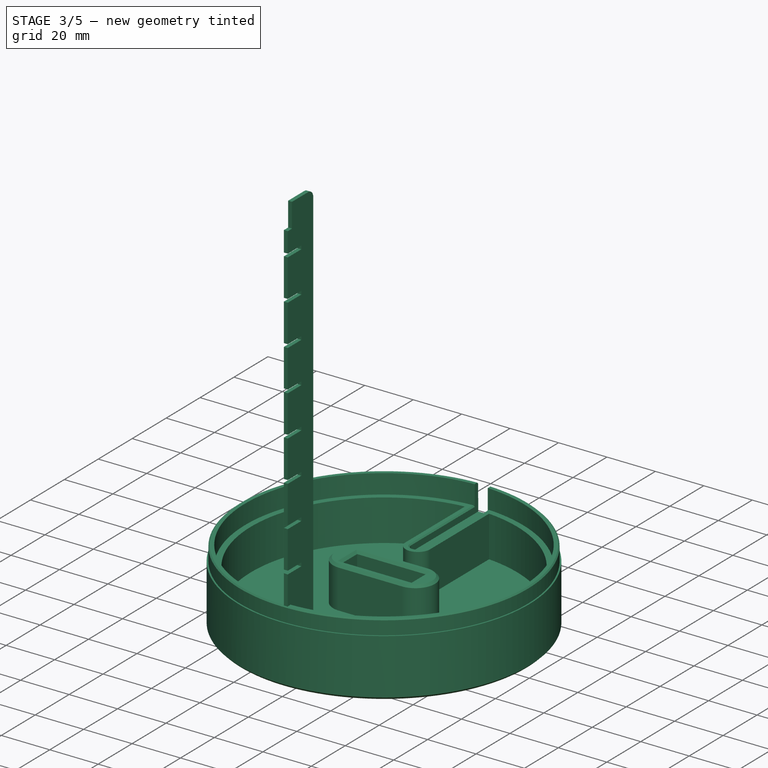
[diagram: stage 3 of 5 — iso view after this stage's code; geometry added in this stage tinted green]
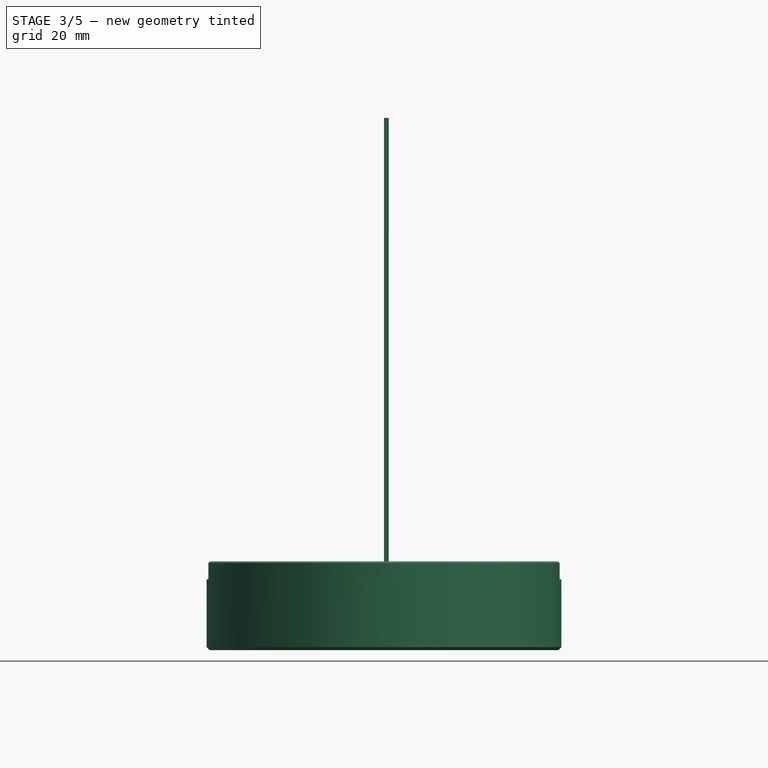
[diagram: stage 3 of 5 — front view after this stage's code; geometry added in this stage tinted green]
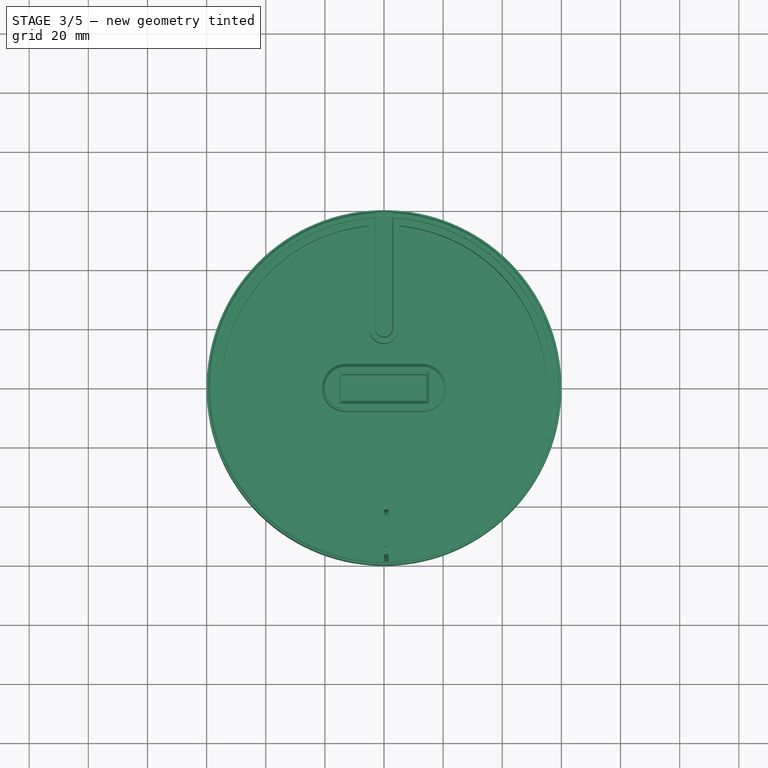
[diagram: stage 3 of 5 — top view after this stage's code; geometry added in this stage tinted green]
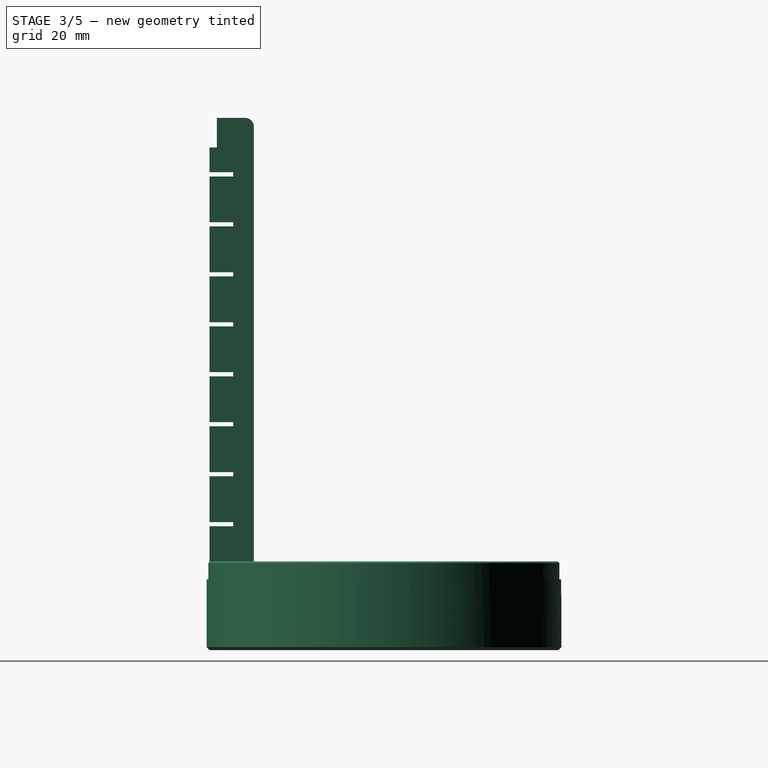
[diagram: stage 3 of 5 — right view after this stage's code; geometry added in this stage tinted green]
FEATURE [PartDesign::Body] Body012  label="Vertical_Strut003"
  Group = -> [Sketch021,Pad012,Fillet002]
  Origin = -> Origin012
  Placement = pos=(0,0,0) rot=(0,0,-1;0.645772rad)
  Tip = -> Fillet002
FEATURE [Sketcher::SketchObject] Sketch022
  MapMode = 5
  Placement = pos=(0,0,0) rot=(0.57735,0.57735,0.57735;2.0944rad)
  Support = -> [YZ_Plane013]
  sketch-geometry (44):
    g0: LineSegment StartX=-44 StartY=0 StartZ=0 EndX=-44 EndY=180 EndZ=0
    g1: LineSegment StartX=-44 StartY=180 StartZ=0 EndX=-56.5 EndY=180 EndZ=0
    g2: LineSegment StartX=-59 StartY=170 StartZ=0 EndX=-59 EndY=161.6 EndZ=0
    g3: LineSegment StartX=-59 StartY=161.6 StartZ=0 EndX=-51 EndY=161.6 EndZ=0
    g4: LineSegment StartX=-51 StartY=161.6 StartZ=0 EndX=-51 EndY=160.2 EndZ=0
    g5: LineSegment StartX=-51 StartY=160.2 StartZ=0 EndX=-59 EndY=160.2 EndZ=0
    g6: LineSegment StartX=-59 StartY=144.7 StartZ=0 EndX=-51 EndY=144.7 EndZ=0
    g7: LineSegment StartX=-51 StartY=144.7 StartZ=0 EndX=-51 EndY=143.3 EndZ=0
    g8: LineSegment StartX=-51 StartY=143.3 StartZ=0 EndX=-59 EndY=143.3 EndZ=0
    g9: LineSegment StartX=-59 StartY=126.4 StartZ=0 EndX=-51 EndY=126.4 EndZ=0
    g10: LineSegment StartX=-51 StartY=126.4 StartZ=0 EndX=-51 EndY=127.8 EndZ=0
    g11: LineSegment StartX=-51 StartY=127.8 StartZ=0 EndX=-59 EndY=127.8 EndZ=0
    g12: LineSegment StartX=-59 StartY=110.9 StartZ=0 EndX=-51 EndY=110.9 EndZ=0
    g13: LineSegment StartX=-51 StartY=110.9 StartZ=0 EndX=-51 EndY=109.5 EndZ=0
    g14: LineSegment StartX=-51 StartY=109.5 StartZ=0 EndX=-59 EndY=109.5 EndZ=0
    g15: LineSegment StartX=-59 StartY=109.5 StartZ=0 EndX=-59 EndY=94 EndZ=0
    g16: LineSegment StartX=-59 StartY=94 StartZ=0 EndX=-51 EndY=94 EndZ=0
    g17: LineSegment StartX=-51 StartY=94 StartZ=0 EndX=-51 EndY=92.6 EndZ=0
    g18: LineSegment StartX=-51 StartY=92.6 StartZ=0 EndX=-59 EndY=92.6 EndZ=0
    g19: LineSegment StartX=-59 StartY=92.6 StartZ=0 EndX=-59 EndY=77.1 EndZ=0
    g20: LineSegment StartX=-59 StartY=77.1 StartZ=0 EndX=-51 EndY=77.1 EndZ=0
    g21: LineSegment StartX=-51 StartY=77.1 StartZ=0 EndX=-51 EndY=75.7 EndZ=0
    g22: LineSegment StartX=-51 StartY=75.7 StartZ=0 EndX=-59 EndY=75.7 EndZ=0
    g23: LineSegment StartX=-59 StartY=75.7 StartZ=0 EndX=-59 EndY=60.2 EndZ=0
    g24: LineSegment StartX=-59 StartY=60.2 StartZ=0 EndX=-51 EndY=60.2 EndZ=0
    g25: LineSegment StartX=-51 StartY=60.2 StartZ=0 EndX=-51 EndY=58.8 EndZ=0
    g26: LineSegment StartX=-51 StartY=58.8 StartZ=0 EndX=-59 EndY=58.8 EndZ=0
    g27: LineSegment StartX=-59 StartY=58.8 StartZ=0 EndX=-59 EndY=43.3 EndZ=0
    g28: LineSegment StartX=-59 StartY=43.3 StartZ=0 EndX=-51 EndY=43.3 EndZ=0
    g29: LineSegment StartX=-51 StartY=43.3 StartZ=0 EndX=-51 EndY=41.9 EndZ=0
    g30: LineSegment StartX=-51 StartY=41.9 StartZ=0 EndX=-59 EndY=41.9 EndZ=0
    g31: LineSegment StartX=-59 StartY=23.6 StartZ=0 EndX=-51 EndY=23.6 EndZ=0
    g32: LineSegment StartX=-51 StartY=23.6 StartZ=0 EndX=-51 EndY=25 EndZ=0
    g33: LineSegment StartX=-51 StartY=25 StartZ=0 EndX=-59 EndY=25 EndZ=0
    g34: LineSegment StartX=-56.5 StartY=0 StartZ=0 EndX=-44 EndY=0 EndZ=0
    g35: LineSegment StartX=-59 StartY=10 StartZ=0 EndX=-59 EndY=23.6 EndZ=0
    g36: LineSegment StartX=-59 StartY=41.9 StartZ=0 EndX=-59 EndY=25 EndZ=0
    g37: LineSegment StartX=-59 StartY=110.9 StartZ=0 EndX=-59 EndY=126.4 EndZ=0
    g38: LineSegment StartX=-59 StartY=160.2 StartZ=0 EndX=-59 EndY=144.7 EndZ=0
    g39: LineSegment StartX=-59 StartY=143.3 StartZ=0 EndX=-59 EndY=127.8 EndZ=0
    g40: LineSegment StartX=-56.5 StartY=180 StartZ=0 EndX=-56.5 EndY=170 EndZ=0
    g41: LineSegment StartX=-56.5 StartY=170 StartZ=0 EndX=-59 EndY=170 EndZ=0
    g42: LineSegment StartX=-59 StartY=10 StartZ=0 EndX=-56.5 EndY=10 EndZ=0
    g43: LineSegment StartX=-56.5 StartY=10 StartZ=0 EndX=-56.5 EndY=0 EndZ=0
  constraints (131):
    c: Vertical(g0)
    c: Coincident(g0,g1)
    c: Horizontal(g1)
    c: Vertical(g2)
    c: Coincident(g2,g3)
    c: Horizontal(g3)
    c: Coincident(g3,g4)
    c: Vertical(g4)
    c: Coincident(g4,g5)
    c: Horizontal(g5)
    c: Horizontal(g6)
    c: Coincident(g6,g7)
    c: Vertical(g7)
    c: Coincident(g7,g8)
    c: Horizontal(g8)
    c: Horizontal(g9)
    c: Coincident(g9,g10)
    c: Coincident(g10,g11)
    c: Horizontal(g11)
    c: Horizontal(g12)
    c: Coincident(g12,g13)
    c: Vertical(g13)
    c: Coincident(g13,g14)
    c: Horizontal(g14)
    c: Coincident(g14,g15)
    c: Vertical(g15)
    c: Coincident(g15,g16)
    c: Horizontal(g16)
    c: Coincident(g16,g17)
    c: Coincident(g17,g18)
    c: Horizontal(g18)
    c: Coincident(g18,g19)
    c: Vertical(g19)
    c: Coincident(g19,g20)
    c: Horizontal(g20)
    c: Coincident(g20,g21)
    c: Vertical(g21)
    c: Coincident(g21,g22)
    c: Horizontal(g22)
    c: Coincident(g22,g23)
    c: Vertical(g23)
    c: Coincident(g23,g24)
    c: Horizontal(g24)
    c: Coincident(g24,g25)
    c: Vertical(g25)
    c: Coincident(g25,g26)
    c: Horizontal(g26)
    c: Coincident(g26,g27)
    c: Coincident(g27,g28)
    c: Horizontal(g28)
    c: Coincident(g28,g29)
    c: Vertical(g29)
    c: Coincident(g29,g30)
    c: Horizontal(g30)
    c: Horizontal(g31)
    c: Coincident(g31,g32)
    c: Vertical(g32)
    c: Coincident(g32,g33)
    c: Horizontal(g33)
    c: Coincident(g34,g0)
    c: Horizontal(g34)
    c: Vertical(g27)
    c: DistanceX(g2,g3) = 8
    c: Equal(g3,g5)
    c: Equal(g5,g6)
    c: Equal(g6,g8)
    c: Equal(g8,g9)
    c: Equal(g9,g11)
    c: Equal(g11,g12)
    c: Equal(g12,g14)
    c: Equal(g14,g16)
    c: Equal(g16,g18)
    c: Equal(g18,g20)
    c: Equal(g20,g22)
    c: Equal(g22,g24)
    c: Equal(g24,g26)
    c: Equal(g26,g28)
    c: Equal(g28,g30)
    c: Equal(g30,g31)
    c: Equal(g31,g33)
    c: Vertical(g17)
    c: Vertical(g10)
    c: DistanceY(g4,g3) = 1.4
    c: Equal(g4,g7)
    c: Equal(g7,g10)
    c: Equal(g10,g13)
    c: Equal(g13,g17)
    c: Equal(g17,g21)
    c: Equal(g21,g25)
    c: Equal(g25,g29)
    c: Equal(g29,g32)
    c: DistanceY(g33,g27) = 18.3
    c: DistanceY(g29,g24) = 18.3
    c: DistanceY(g25,g20) = 18.3
    c: DistanceY(g21,g16) = 18.3
    c: DistanceY(g17,g12) = 18.3
    c: DistanceY(g13,g10) = 18.3
    c: DistanceY(g9,g6) = 18.3
    c: DistanceY(g7,g3) = 18.3
    c: Coincident(g35,g31)
    c: Vertical(g35)
    c: Coincident(g36,g30)
    c: Coincident(g36,g33)
    c: Vertical(g36)
    c: Coincident(g37,g12)
    c: Coincident(g37,g9)
    c: Vertical(g37)
    c: Vertical(g38)
    c: Vertical(g39)
    c: Coincident(g5,g38)
    c: Coincident(g6,g38)
    c: Coincident(g8,g39)
    c: Coincident(g11,g39)
    c: Vertical(g40)
    c: Coincident(g40,g41)
    c: Horizontal(g41)
    c: Coincident(g1,g40)
    c: Coincident(g2,g41)
    c: DistanceX(g2,g40) = 2.5
    c: DistanceY(g40,g1) = 10
    c: Horizontal(g42)
    c: Coincident(g42,g43)
    c: Vertical(g43)
    c: Coincident(g34,g43)
    c: Coincident(g35,g42)
    c: DistanceX(g35,g42) = 2.5
    c: DistanceY(g34,g42) = 10
    c: PointOnObject(g34,g-1)
    c: DistanceY(g0,g0) = 180
    c: DistanceX(g34,g0) = 12.5
    c: DistanceY(g35,g31) = 13.6
FEATURE [PartDesign::Pad] Pad013
  Length = 1.6
  Length2 = 100
  Placement = pos=(0,0,0) rot=(0.57735,0.57735,0.57735;2.0944rad)
  Profile = -> Sketch022
  Refine = true
  Type = 0
FEATURE [PartDesign::Fillet] Fillet003
  Base = -> Pad013 [Edge11,Edge8]
  BaseFeature = -> Pad013
  Placement = pos=(0,0,0) rot=(0.57735,0.57735,0.57735;2.0944rad)
  Radius = 3
FEATURE [PartDesign::Body] Body013  label="Vertical_Strut004"
  Group = -> [Sketch022,Pad013,Fillet003]
  Origin = -> Origin013
  Placement = pos=(0,0,0) rot=(0,0,-1;0.959931rad)
  Tip = -> Fillet003
FEATURE [Sketcher::SketchObject] Sketch023
  MapMode = 5
  Placement = pos=(0,0,0) rot=(0.57735,0.57735,0.57735;2.0944rad)
  Support = -> [YZ_Plane014]
  sketch-geometry (44):
    g0: LineSegment StartX=-44 StartY=0 StartZ=0 EndX=-44 EndY=180 EndZ=0
    g1: LineSegment StartX=-44 StartY=180 StartZ=0 EndX=-56.5 EndY=180 EndZ=0
    g2: LineSegment StartX=-59 StartY=170 StartZ=0 EndX=-59 EndY=161.6 EndZ=0
    g3: LineSegment StartX=-59 StartY=161.6 StartZ=0 EndX=-51 EndY=161.6 EndZ=0
    g4: LineSegment StartX=-51 StartY=161.6 StartZ=0 EndX=-51 EndY=160.2 EndZ=0
    g5: LineSegment StartX=-51 StartY=160.2 StartZ=0 EndX=-59 EndY=160.2 EndZ=0
    g6: LineSegment StartX=-59 StartY=144.7 StartZ=0 EndX=-51 EndY=144.7 EndZ=0
    g7: LineSegment StartX=-51 StartY=144.7 StartZ=0 EndX=-51 EndY=143.3 EndZ=0
    g8: LineSegment StartX=-51 StartY=143.3 StartZ=0 EndX=-59 EndY=143.3 EndZ=0
    g9: LineSegment StartX=-59 StartY=126.4 StartZ=0 EndX=-51 EndY=126.4 EndZ=0
    g10: LineSegment StartX=-51 StartY=126.4 StartZ=0 EndX=-51 EndY=127.8 EndZ=0
    g11: LineSegment StartX=-51 StartY=127.8 StartZ=0 EndX=-59 EndY=127.8 EndZ=0
    g12: LineSegment StartX=-59 StartY=110.9 StartZ=0 EndX=-51 EndY=110.9 EndZ=0
    g13: LineSegment StartX=-51 StartY=110.9 StartZ=0 EndX=-51 EndY=109.5 EndZ=0
    g14: LineSegment StartX=-51 StartY=109.5 StartZ=0 EndX=-59 EndY=109.5 EndZ=0
    g15: LineSegment StartX=-59 StartY=109.5 StartZ=0 EndX=-59 EndY=94 EndZ=0
    g16: LineSegment StartX=-59 StartY=94 StartZ=0 EndX=-51 EndY=94 EndZ=0
    g17: LineSegment StartX=-51 StartY=94 StartZ=0 EndX=-51 EndY=92.6 EndZ=0
    g18: LineSegment StartX=-51 StartY=92.6 StartZ=0 EndX=-59 EndY=92.6 EndZ=0
    g19: LineSegment StartX=-59 StartY=92.6 StartZ=0 EndX=-59 EndY=77.1 EndZ=0
    g20: LineSegment StartX=-59 StartY=77.1 StartZ=0 EndX=-51 EndY=77.1 EndZ=0
    g21: LineSegment StartX=-51 StartY=77.1 StartZ=0 EndX=-51 EndY=75.7 EndZ=0
    g22: LineSegment StartX=-51 StartY=75.7 StartZ=0 EndX=-59 EndY=75.7 EndZ=0
    g23: LineSegment StartX=-59 StartY=75.7 StartZ=0 EndX=-59 EndY=60.2 EndZ=0
    g24: LineSegment StartX=-59 StartY=60.2 StartZ=0 EndX=-51 EndY=60.2 EndZ=0
    g25: LineSegment StartX=-51 StartY=60.2 StartZ=0 EndX=-51 EndY=58.8 EndZ=0
    g26: LineSegment StartX=-51 StartY=58.8 StartZ=0 EndX=-59 EndY=58.8 EndZ=0
    g27: LineSegment StartX=-59 StartY=58.8 StartZ=0 EndX=-59 EndY=43.3 EndZ=0
    g28: LineSegment StartX=-59 StartY=43.3 StartZ=0 EndX=-51 EndY=43.3 EndZ=0
    g29: LineSegment StartX=-51 StartY=43.3 StartZ=0 EndX=-51 EndY=41.9 EndZ=0
    g30: LineSegment StartX=-51 StartY=41.9 StartZ=0 EndX=-59 EndY=41.9 EndZ=0
    g31: LineSegment StartX=-59 StartY=23.6 StartZ=0 EndX=-51 EndY=23.6 EndZ=0
    g32: LineSegment StartX=-51 StartY=23.6 StartZ=0 EndX=-51 EndY=25 EndZ=0
    g33: LineSegment StartX=-51 StartY=25 StartZ=0 EndX=-59 EndY=25 EndZ=0
    g34: LineSegment StartX=-56.5 StartY=0 StartZ=0 EndX=-44 EndY=0 EndZ=0
    g35: LineSegment StartX=-59 StartY=10 StartZ=0 EndX=-59 EndY=23.6 EndZ=0
    g36: LineSegment StartX=-59 StartY=41.9 StartZ=0 EndX=-59 EndY=25 EndZ=0
    g37: LineSegment StartX=-59 StartY=110.9 StartZ=0 EndX=-59 EndY=126.4 EndZ=0
    g38: LineSegment StartX=-59 StartY=160.2 StartZ=0 EndX=-59 EndY=144.7 EndZ=0
    g39: LineSegment StartX=-59 StartY=143.3 StartZ=0 EndX=-59 EndY=127.8 EndZ=0
    g40: LineSegment StartX=-56.5 StartY=180 StartZ=0 EndX=-56.5 EndY=170 EndZ=0
    g41: LineSegment StartX=-56.5 StartY=170 StartZ=0 EndX=-59 EndY=170 EndZ=0
    g42: LineSegment StartX=-59 StartY=10 StartZ=0 EndX=-56.5 EndY=10 EndZ=0
    g43: LineSegment StartX=-56.5 StartY=10 StartZ=0 EndX=-56.5 EndY=0 EndZ=0
  constraints (131):
    c: Vertical(g0)
    c: Coincident(g0,g1)
    c: Horizontal(g1)
    c: Vertical(g2)
    c: Coincident(g2,g3)
    c: Horizontal(g3)
    c: Coincident(g3,g4)
    c: Vertical(g4)
    c: Coincident(g4,g5)
    c: Horizontal(g5)
    c: Horizontal(g6)
    c: Coincident(g6,g7)
    c: Vertical(g7)
    c: Coincident(g7,g8)
    c: Horizontal(g8)
    c: Horizontal(g9)
    c: Coincident(g9,g10)
    c: Coincident(g10,g11)
    c: Horizontal(g11)
    c: Horizontal(g12)
    c: Coincident(g12,g13)
    c: Vertical(g13)
    c: Coincident(g13,g14)
    c: Horizontal(g14)
    c: Coincident(g14,g15)
    c: Vertical(g15)
    c: Coincident(g15,g16)
    c: Horizontal(g16)
    c: Coincident(g16,g17)
    c: Coincident(g17,g18)
    c: Horizontal(g18)
    c: Coincident(g18,g19)
    c: Vertical(g19)
    c: Coincident(g19,g20)
    c: Horizontal(g20)
    c: Coincident(g20,g21)
    c: Vertical(g21)
    c: Coincident(g21,g22)
    c: Horizontal(g22)
    c: Coincident(g22,g23)
    c: Vertical(g23)
    c: Coincident(g23,g24)
    c: Horizontal(g24)
    c: Coincident(g24,g25)
    c: Vertical(g25)
    c: Coincident(g25,g26)
    c: Horizontal(g26)
    c: Coincident(g26,g27)
    c: Coincident(g27,g28)
    c: Horizontal(g28)
    c: Coincident(g28,g29)
    c: Vertical(g29)
    c: Coincident(g29,g30)
    c: Horizontal(g30)
    c: Horizontal(g31)
    c: Coincident(g31,g32)
    c: Vertical(g32)
    c: Coincident(g32,g33)
    c: Horizontal(g33)
    c: Coincident(g34,g0)
    c: Horizontal(g34)
    c: Vertical(g27)
    c: DistanceX(g2,g3) = 8
    c: Equal(g3,g5)
    c: Equal(g5,g6)
    c: Equal(g6,g8)
    c: Equal(g8,g9)
    c: Equal(g9,g11)
    c: Equal(g11,g12)
    c: Equal(g12,g14)
    c: Equal(g14,g16)
    c: Equal(g16,g18)
    c: Equal(g18,g20)
    c: Equal(g20,g22)
    c: Equal(g22,g24)
    c: Equal(g24,g26)
    c: Equal(g26,g28)
    c: Equal(g28,g30)
    c: Equal(g30,g31)
    c: Equal(g31,g33)
    c: Vertical(g17)
    c: Vertical(g10)
    c: DistanceY(g4,g3) = 1.4
    c: Equal(g4,g7)
    c: Equal(g7,g10)
    c: Equal(g10,g13)
    c: Equal(g13,g17)
    c: Equal(g17,g21)
    c: Equal(g21,g25)
    c: Equal(g25,g29)
    c: Equal(g29,g32)
    c: DistanceY(g33,g27) = 18.3
    c: DistanceY(g29,g24) = 18.3
    c: DistanceY(g25,g20) = 18.3
    c: DistanceY(g21,g16) = 18.3
    c: DistanceY(g17,g12) = 18.3
    c: DistanceY(g13,g10) = 18.3
    c: DistanceY(g9,g6) = 18.3
    c: DistanceY(g7,g3) = 18.3
    c: Coincident(g35,g31)
    c: Vertical(g35)
    c: Coincident(g36,g30)
    c: Coincident(g36,g33)
    c: Vertical(g36)
    c: Coincident(g37,g12)
    c: Coincident(g37,g9)
    c: Vertical(g37)
    c: Vertical(g38)
    c: Vertical(g39)
    c: Coincident(g5,g38)
    c: Coincident(g6,g38)
    c: Coincident(g8,g39)
    c: Coincident(g11,g39)
    c: Vertical(g40)
    c: Coincident(g40,g41)
    c: Horizontal(g41)
    c: Coincident(g1,g40)
    c: Coincident(g2,g41)
    c: DistanceX(g2,g40) = 2.5
    c: DistanceY(g40,g1) = 10
    c: Horizontal(g42)
    c: Coincident(g42,g43)
    c: Vertical(g43)
    c: Coincident(g34,g43)
    c: Coincident(g35,g42)
    c: DistanceX(g35,g42) = 2.5
    c: DistanceY(g34,g42) = 10
    c: PointOnObject(g34,g-1)
    c: DistanceY(g0,g0) = 180
    c: DistanceX(g34,g0) = 12.5
    c: DistanceY(g35,g31) = 13.6
FEATURE [PartDesign::Pad] Pad014
  Length = 1.6
  Length2 = 100
  Placement = pos=(0,0,0) rot=(0.57735,0.57735,0.57735;2.0944rad)
  Profile = -> Sketch023
  Refine = true
  Type = 0
FEATURE [PartDesign::Fillet] Fillet004
  Base = -> Pad014 [Edge11,Edge8]
  BaseFeature = -> Pad014
  Placement = pos=(0,0,0) rot=(0.57735,0.57735,0.57735;2.0944rad)
  Radius = 3
FEATURE [PartDesign::Body] Body014  label="Vertical_Strut005"
  Group = -> [Sketch023,Pad014,Fillet004]
  Origin = -> Origin014
  Placement = pos=(0,0,0) rot=(0,0,-1;1.27409rad)
  Tip = -> Fillet004
FEATURE [Sketcher::SketchObject] Sketch024
  MapMode = 5
  Placement = pos=(0,0,0) rot=(0.57735,0.57735,0.57735;2.0944rad)
  Support = -> [YZ_Plane015]
  sketch-geometry (44):
    g0: LineSegment StartX=-44 StartY=0 StartZ=0 EndX=-44 EndY=180 EndZ=0
    g1: LineSegment StartX=-44 StartY=180 StartZ=0 EndX=-56.5 EndY=180 EndZ=0
    g2: LineSegment StartX=-59 StartY=170 StartZ=0 EndX=-59 EndY=161.6 EndZ=0
    g3: LineSegment StartX=-59 StartY=161.6 StartZ=0 EndX=-51 EndY=161.6 EndZ=0
    g4: LineSegment StartX=-51 StartY=161.6 StartZ=0 EndX=-51 EndY=160.2 EndZ=0
    g5: LineSegment StartX=-51 StartY=160.2 StartZ=0 EndX=-59 EndY=160.2 EndZ=0
    g6: LineSegment StartX=-59 StartY=144.7 StartZ=0 EndX=-51 EndY=144.7 EndZ=0
    g7: LineSegment StartX=-51 StartY=144.7 StartZ=0 EndX=-51 EndY=143.3 EndZ=0
    g8: LineSegment StartX=-51 StartY=143.3 StartZ=0 EndX=-59 EndY=143.3 EndZ=0
    g9: LineSegment StartX=-59 StartY=126.4 StartZ=0 EndX=-51 EndY=126.4 EndZ=0
    g10: LineSegment StartX=-51 StartY=126.4 StartZ=0 EndX=-51 EndY=127.8 EndZ=0
    g11: LineSegment StartX=-51 StartY=127.8 StartZ=0 EndX=-59 EndY=127.8 EndZ=0
    g12: LineSegment StartX=-59 StartY=110.9 StartZ=0 EndX=-51 EndY=110.9 EndZ=0
    g13: LineSegment StartX=-51 StartY=110.9 StartZ=0 EndX=-51 EndY=109.5 EndZ=0
    g14: LineSegment StartX=-51 StartY=109.5 StartZ=0 EndX=-59 EndY=109.5 EndZ=0
    g15: LineSegment StartX=-59 StartY=109.5 StartZ=0 EndX=-59 EndY=94 EndZ=0
    g16: LineSegment StartX=-59 StartY=94 StartZ=0 EndX=-51 EndY=94 EndZ=0
    g17: LineSegment StartX=-51 StartY=94 StartZ=0 EndX=-51 EndY=92.6 EndZ=0
    g18: LineSegment StartX=-51 StartY=92.6 StartZ=0 EndX=-59 EndY=92.6 EndZ=0
    g19: LineSegment StartX=-59 StartY=92.6 StartZ=0 EndX=-59 EndY=77.1 EndZ=0
    g20: LineSegment StartX=-59 StartY=77.1 StartZ=0 EndX=-51 EndY=77.1 EndZ=0
    g21: LineSegment StartX=-51 StartY=77.1 StartZ=0 EndX=-51 EndY=75.7 EndZ=0
    g22: LineSegment StartX=-51 StartY=75.7 StartZ=0 EndX=-59 EndY=75.7 EndZ=0
    g23: LineSegment StartX=-59 StartY=75.7 StartZ=0 EndX=-59 EndY=60.2 EndZ=0
    g24: LineSegment StartX=-59 StartY=60.2 StartZ=0 EndX=-51 EndY=60.2 EndZ=0
    g25: LineSegment StartX=-51 StartY=60.2 StartZ=0 EndX=-51 EndY=58.8 EndZ=0
    g26: LineSegment StartX=-51 StartY=58.8 StartZ=0 EndX=-59 EndY=58.8 EndZ=0
    g27: LineSegment StartX=-59 StartY=58.8 StartZ=0 EndX=-59 EndY=43.3 EndZ=0
    g28: LineSegment StartX=-59 StartY=43.3 StartZ=0 EndX=-51 EndY=43.3 EndZ=0
    g29: LineSegment StartX=-51 StartY=43.3 StartZ=0 EndX=-51 EndY=41.9 EndZ=0
    g30: LineSegment StartX=-51 StartY=41.9 StartZ=0 EndX=-59 EndY=41.9 EndZ=0
    g31: LineSegment StartX=-59 StartY=23.6 StartZ=0 EndX=-51 EndY=23.6 EndZ=0
    g32: LineSegment StartX=-51 StartY=23.6 StartZ=0 EndX=-51 EndY=25 EndZ=0
    g33: LineSegment StartX=-51 StartY=25 StartZ=0 EndX=-59 EndY=25 EndZ=0
    g34: LineSegment StartX=-56.5 StartY=0 StartZ=0 EndX=-44 EndY=0 EndZ=0
    g35: LineSegment StartX=-59 StartY=10 StartZ=0 EndX=-59 EndY=23.6 EndZ=0
    g36: LineSegment StartX=-59 StartY=41.9 StartZ=0 EndX=-59 EndY=25 EndZ=0
    g37: LineSegment StartX=-59 StartY=110.9 StartZ=0 EndX=-59 EndY=126.4 EndZ=0
    g38: LineSegment StartX=-59 StartY=160.2 StartZ=0 EndX=-59 EndY=144.7 EndZ=0
    g39: LineSegment StartX=-59 StartY=143.3 StartZ=0 EndX=-59 EndY=127.8 EndZ=0
    g40: LineSegment StartX=-56.5 StartY=180 StartZ=0 EndX=-56.5 EndY=170 EndZ=0
    g41: LineSegment StartX=-56.5 StartY=170 StartZ=0 EndX=-59 EndY=170 EndZ=0
    g42: LineSegment StartX=-59 StartY=10 StartZ=0 EndX=-56.5 EndY=10 EndZ=0
    g43: LineSegment StartX=-56.5 StartY=10 StartZ=0 EndX=-56.5 EndY=0 EndZ=0
  constraints (131):
    c: Vertical(g0)
    c: Coincident(g0,g1)
    c: Horizontal(g1)
    c: Vertical(g2)
    c: Coincident(g2,g3)
    c: Horizontal(g3)
    c: Coincident(g3,g4)
    c: Vertical(g4)
    c: Coincident(g4,g5)
    c: Horizontal(g5)
    c: Horizontal(g6)
    c: Coincident(g6,g7)
    c: Vertical(g7)
    c: Coincident(g7,g8)
    c: Horizontal(g8)
    c: Horizontal(g9)
    c: Coincident(g9,g10)
    c: Coincident(g10,g11)
    c: Horizontal(g11)
    c: Horizontal(g12)
    c: Coincident(g12,g13)
    c: Vertical(g13)
    c: Coincident(g13,g14)
    c: Horizontal(g14)
    c: Coincident(g14,g15)
    c: Vertical(g15)
    c: Coincident(g15,g16)
    c: Horizontal(g16)
    c: Coincident(g16,g17)
    c: Coincident(g17,g18)
    c: Horizontal(g18)
    c: Coincident(g18,g19)
    c: Vertical(g19)
    c: Coincident(g19,g20)
    c: Horizontal(g20)
    c: Coincident(g20,g21)
    c: Vertical(g21)
    c: Coincident(g21,g22)
    c: Horizontal(g22)
    c: Coincident(g22,g23)
    c: Vertical(g23)
    c: Coincident(g23,g24)
    c: Horizontal(g24)
    c: Coincident(g24,g25)
    c: Vertical(g25)
    c: Coincident(g25,g26)
    c: Horizontal(g26)
    c: Coincident(g26,g27)
    c: Coincident(g27,g28)
    c: Horizontal(g28)
    c: Coincident(g28,g29)
    c: Vertical(g29)
    c: Coincident(g29,g30)
    c: Horizontal(g30)
    c: Horizontal(g31)
    c: Coincident(g31,g32)
    c: Vertical(g32)
    c: Coincident(g32,g33)
    c: Horizontal(g33)
    c: Coincident(g34,g0)
    c: Horizontal(g34)
    c: Vertical(g27)
    c: DistanceX(g2,g3) = 8
    c: Equal(g3,g5)
    c: Equal(g5,g6)
    c: Equal(g6,g8)
    c: Equal(g8,g9)
    c: Equal(g9,g11)
    c: Equal(g11,g12)
    c: Equal(g12,g14)
    c: Equal(g14,g16)
    c: Equal(g16,g18)
    c: Equal(g18,g20)
    c: Equal(g20,g22)
    c: Equal(g22,g24)
    c: Equal(g24,g26)
    c: Equal(g26,g28)
    c: Equal(g28,g30)
    c: Equal(g30,g31)
    c: Equal(g31,g33)
    c: Vertical(g17)
    c: Vertical(g10)
    c: DistanceY(g4,g3) = 1.4
    c: Equal(g4,g7)
    c: Equal(g7,g10)
    c: Equal(g10,g13)
    c: Equal(g13,g17)
    c: Equal(g17,g21)
    c: Equal(g21,g25)
    c: Equal(g25,g29)
    c: Equal(g29,g32)
    c: DistanceY(g33,g27) = 18.3
    c: DistanceY(g29,g24) = 18.3
    c: DistanceY(g25,g20) = 18.3
    c: DistanceY(g21,g16) = 18.3
    c: DistanceY(g17,g12) = 18.3
    c: DistanceY(g13,g10) = 18.3
    c: DistanceY(g9,g6) = 18.3
    c: DistanceY(g7,g3) = 18.3
    c: Coincident(g35,g31)
    c: Vertical(g35)
    c: Coincident(g36,g30)
    c: Coincident(g36,g33)
    c: Vertical(g36)
    c: Coincident(g37,g12)
    c: Coincident(g37,g9)
    c: Vertical(g37)
    c: Vertical(g38)
    c: Vertical(g39)
    c: Coincident(g5,g38)
    c: Coincident(g6,g38)
    c: Coincident(g8,g39)
    c: Coincident(g11,g39)
    c: Vertical(g40)
    c: Coincident(g40,g41)
    c: Horizontal(g41)
    c: Coincident(g1,g40)
    c: Coincident(g2,g41)
    c: DistanceX(g2,g40) = 2.5
    c: DistanceY(g40,g1) = 10
    c: Horizontal(g42)
    c: Coincident(g42,g43)
    c: Vertical(g43)
    c: Coincident(g34,g43)
    c: Coincident(g35,g42)
    c: DistanceX(g35,g42) = 2.5
    c: DistanceY(g34,g42) = 10
    c: PointOnObject(g34,g-1)
    c: DistanceY(g0,g0) = 180
    c: DistanceX(g34,g0) = 12.5
    c: DistanceY(g35,g31) = 13.6
FEATURE [PartDesign::Pad] Pad015
  Length = 1.6
  Length2 = 100
  Placement = pos=(0,0,0) rot=(0.57735,0.57735,0.57735;2.0944rad)
  Profile = -> Sketch024
  Refine = true
  Type = 0
FEATURE [PartDesign::Fillet] Fillet005
  Base = -> Pad015 [Edge11,Edge8]
  BaseFeature = -> Pad015
  Placement = pos=(0,0,0) rot=(0.57735,0.57735,0.57735;2.0944rad)
  Radius = 3
FEATURE [PartDesign::Body] Body015  label="Vertical_Strut006"
  Group = -> [Sketch024,Pad015,Fillet005]
  Origin = -> Origin015
  Placement = pos=(0,0,0) rot=(0,0,-1;1.58825rad)
  Tip = -> Fillet005
FEATURE [Sketcher::SketchObject] Sketch025
  MapMode = 5
  Placement = pos=(0,0,0) rot=(0.57735,0.57735,0.57735;2.0944rad)
  Support = -> [YZ_Plane016]
  sketch-geometry (44):
    g0: LineSegment StartX=-44 StartY=0 StartZ=0 EndX=-44 EndY=180 EndZ=0
    g1: LineSegment StartX=-44 StartY=180 StartZ=0 EndX=-56.5 EndY=180 EndZ=0
    g2: LineSegment StartX=-59 StartY=170 StartZ=0 EndX=-59 EndY=161.6 EndZ=0
    g3: LineSegment StartX=-59 StartY=161.6 StartZ=0 EndX=-51 EndY=161.6 EndZ=0
    g4: LineSegment StartX=-51 StartY=161.6 StartZ=0 EndX=-51 EndY=160.2 EndZ=0
    g5: LineSegment StartX=-51 StartY=160.2 StartZ=0 EndX=-59 EndY=160.2 EndZ=0
    g6: LineSegment StartX=-59 StartY=144.7 StartZ=0 EndX=-51 EndY=144.7 EndZ=0
    g7: LineSegment StartX=-51 StartY=144.7 StartZ=0 EndX=-51 EndY=143.3 EndZ=0
    g8: LineSegment StartX=-51 StartY=143.3 StartZ=0 EndX=-59 EndY=143.3 EndZ=0
    g9: LineSegment StartX=-59 StartY=126.4 StartZ=0 EndX=-51 EndY=126.4 EndZ=0
    g10: LineSegment StartX=-51 StartY=126.4 StartZ=0 EndX=-51 EndY=127.8 EndZ=0
    g11: LineSegment StartX=-51 StartY=127.8 StartZ=0 EndX=-59 EndY=127.8 EndZ=0
    g12: LineSegment StartX=-59 StartY=110.9 StartZ=0 EndX=-51 EndY=110.9 EndZ=0
    g13: LineSegment StartX=-51 StartY=110.9 StartZ=0 EndX=-51 EndY=109.5 EndZ=0
    g14: LineSegment StartX=-51 StartY=109.5 StartZ=0 EndX=-59 EndY=109.5 EndZ=0
    g15: LineSegment StartX=-59 StartY=109.5 StartZ=0 EndX=-59 EndY=94 EndZ=0
    g16: LineSegment StartX=-59 StartY=94 StartZ=0 EndX=-51 EndY=94 EndZ=0
    g17: LineSegment StartX=-51 StartY=94 StartZ=0 EndX=-51 EndY=92.6 EndZ=0
    g18: LineSegment StartX=-51 StartY=92.6 StartZ=0 EndX=-59 EndY=92.6 EndZ=0
    g19: LineSegment StartX=-59 StartY=92.6 StartZ=0 EndX=-59 EndY=77.1 EndZ=0
    g20: LineSegment StartX=-59 StartY=77.1 StartZ=0 EndX=-51 EndY=77.1 EndZ=0
    g21: LineSegment StartX=-51 StartY=77.1 StartZ=0 EndX=-51 EndY=75.7 EndZ=0
    g22: LineSegment StartX=-51 StartY=75.7 StartZ=0 EndX=-59 EndY=75.7 EndZ=0
    g23: LineSegment StartX=-59 StartY=75.7 StartZ=0 EndX=-59 EndY=60.2 EndZ=0
    g24: LineSegment StartX=-59 StartY=60.2 StartZ=0 EndX=-51 EndY=60.2 EndZ=0
    g25: LineSegment StartX=-51 StartY=60.2 StartZ=0 EndX=-51 EndY=58.8 EndZ=0
    g26: LineSegment StartX=-51 StartY=58.8 StartZ=0 EndX=-59 EndY=58.8 EndZ=0
    g27: LineSegment StartX=-59 StartY=58.8 StartZ=0 EndX=-59 EndY=43.3 EndZ=0
    g28: LineSegment StartX=-59 StartY=43.3 StartZ=0 EndX=-51 EndY=43.3 EndZ=0
    g29: LineSegment StartX=-51 StartY=43.3 StartZ=0 EndX=-51 EndY=41.9 EndZ=0
    g30: LineSegment StartX=-51 StartY=41.9 StartZ=0 EndX=-59 EndY=41.9 EndZ=0
    g31: LineSegment StartX=-59 StartY=23.6 StartZ=0 EndX=-51 EndY=23.6 EndZ=0
    g32: LineSegment StartX=-51 StartY=23.6 StartZ=0 EndX=-51 EndY=25 EndZ=0
    g33: LineSegment StartX=-51 StartY=25 StartZ=0 EndX=-59 EndY=25 EndZ=0
    g34: LineSegment StartX=-56.5 StartY=0 StartZ=0 EndX=-44 EndY=0 EndZ=0
    g35: LineSegment StartX=-59 StartY=10 StartZ=0 EndX=-59 EndY=23.6 EndZ=0
    g36: LineSegment StartX=-59 StartY=41.9 StartZ=0 EndX=-59 EndY=25 EndZ=0
    g37: LineSegment StartX=-59 StartY=110.9 StartZ=0 EndX=-59 EndY=126.4 EndZ=0
    g38: LineSegment StartX=-59 StartY=160.2 StartZ=0 EndX=-59 EndY=144.7 EndZ=0
    g39: LineSegment StartX=-59 StartY=143.3 StartZ=0 EndX=-59 EndY=127.8 EndZ=0
    g40: LineSegment StartX=-56.5 StartY=180 StartZ=0 EndX=-56.5 EndY=170 EndZ=0
    g41: LineSegment StartX=-56.5 StartY=170 StartZ=0 EndX=-59 EndY=170 EndZ=0
    g42: LineSegment StartX=-59 StartY=10 StartZ=0 EndX=-56.5 EndY=10 EndZ=0
    g43: LineSegment StartX=-56.5 StartY=10 StartZ=0 EndX=-56.5 EndY=0 EndZ=0
  constraints (131):
    c: Vertical(g0)
    c: Coincident(g0,g1)
    c: Horizontal(g1)
    c: Vertical(g2)
    c: Coincident(g2,g3)
    c: Horizontal(g3)
    c: Coincident(g3,g4)
    c: Vertical(g4)
    c: Coincident(g4,g5)
    c: Horizontal(g5)
    c: Horizontal(g6)
    c: Coincident(g6,g7)
    c: Vertical(g7)
    c: Coincident(g7,g8)
    c: Horizontal(g8)
    c: Horizontal(g9)
    c: Coincident(g9,g10)
    c: Coincident(g10,g11)
    c: Horizontal(g11)
    c: Horizontal(g12)
    c: Coincident(g12,g13)
    c: Vertical(g13)
    c: Coincident(g13,g14)
    c: Horizontal(g14)
    c: Coincident(g14,g15)
    c: Vertical(g15)
    c: Coincident(g15,g16)
    c: Horizontal(g16)
    c: Coincident(g16,g17)
    c: Coincident(g17,g18)
    c: Horizontal(g18)
    c: Coincident(g18,g19)
    c: Vertical(g19)
    c: Coincident(g19,g20)
    c: Horizontal(g20)
    c: Coincident(g20,g21)
    c: Vertical(g21)
    c: Coincident(g21,g22)
    c: Horizontal(g22)
    c: Coincident(g22,g23)
    c: Vertical(g23)
    c: Coincident(g23,g24)
    c: Horizontal(g24)
    c: Coincident(g24,g25)
    c: Vertical(g25)
    c: Coincident(g25,g26)
    c: Horizontal(g26)
    c: Coincident(g26,g27)
    c: Coincident(g27,g28)
    c: Horizontal(g28)
    c: Coincident(g28,g29)
    c: Vertical(g29)
    c: Coincident(g29,g30)
    c: Horizontal(g30)
    c: Horizontal(g31)
    c: Coincident(g31,g32)
    c: Vertical(g32)
    c: Coincident(g32,g33)
    c: Horizontal(g33)
    c: Coincident(g34,g0)
    c: Horizontal(g34)
    c: Vertical(g27)
    c: DistanceX(g2,g3) = 8
    c: Equal(g3,g5)
    c: Equal(g5,g6)
    c: Equal(g6,g8)
    c: Equal(g8,g9)
    c: Equal(g9,g11)
    c: Equal(g11,g12)
    c: Equal(g12,g14)
    c: Equal(g14,g16)
    c: Equal(g16,g18)
    c: Equal(g18,g20)
    c: Equal(g20,g22)
    c: Equal(g22,g24)
    c: Equal(g24,g26)
    c: Equal(g26,g28)
    c: Equal(g28,g30)
    c: Equal(g30,g31)
    c: Equal(g31,g33)
    c: Vertical(g17)
    c: Vertical(g10)
    c: DistanceY(g4,g3) = 1.4
    c: Equal(g4,g7)
    c: Equal(g7,g10)
    c: Equal(g10,g13)
    c: Equal(g13,g17)
    c: Equal(g17,g21)
    c: Equal(g21,g25)
    c: Equal(g25,g29)
    c: Equal(g29,g32)
    c: DistanceY(g33,g27) = 18.3
    c: DistanceY(g29,g24) = 18.3
    c: DistanceY(g25,g20) = 18.3
    c: DistanceY(g21,g16) = 18.3
    c: DistanceY(g17,g12) = 18.3
    c: DistanceY(g13,g10) = 18.3
    c: DistanceY(g9,g6) = 18.3
    c: DistanceY(g7,g3) = 18.3
    c: Coincident(g35,g31)
    c: Vertical(g35)
    c: Coincident(g36,g30)
    c: Coincident(g36,g33)
    c: Vertical(g36)
    c: Coincident(g37,g12)
    c: Coincident(g37,g9)
    c: Vertical(g37)
    c: Vertical(g38)
    c: Vertical(g39)
    c: Coincident(g5,g38)
    c: Coincident(g6,g38)
    c: Coincident(g8,g39)
    c: Coincident(g11,g39)
    c: Vertical(g40)
    c: Coincident(g40,g41)
    c: Horizontal(g41)
    c: Coincident(g1,g40)
    c: Coincident(g2,g41)
    c: DistanceX(g2,g40) = 2.5
    c: DistanceY(g40,g1) = 10
    c: Horizontal(g42)
    c: Coincident(g42,g43)
    c: Vertical(g43)
    c: Coincident(g34,g43)
    c: Coincident(g35,g42)
    c: DistanceX(g35,g42) = 2.5
    c: DistanceY(g34,g42) = 10
    c: PointOnObject(g34,g-1)
    c: DistanceY(g0,g0) = 180
    c: DistanceX(g34,g0) = 12.5
    c: DistanceY(g35,g31) = 13.6
FEATURE [PartDesign::Pad] Pad016
  Length = 1.6
  Length2 = 100
  Placement = pos=(0,0,0) rot=(0.57735,0.57735,0.57735;2.0944rad)
  Profile = -> Sketch025
  Refine = true
  Type = 0
FEATURE [PartDesign::Fillet] Fillet006
  Base = -> Pad016 [Edge11,Edge8]
  BaseFeature = -> Pad016
  Placement = pos=(0,0,0) rot=(0.57735,0.57735,0.57735;2.0944rad)
  Radius = 3
FEATURE [PartDesign::Body] Body016  label="Vertical_Strut007"
  Group = -> [Sketch025,Pad016,Fillet006]
  Origin = -> Origin016
  Placement = pos=(0,0,0) rot=(0,0,-1;1.90241rad)
  Tip = -> Fillet006
FEATURE [Sketcher::SketchObject] Sketch026
  MapMode = 5
  Placement = pos=(0,0,0) rot=(0.57735,0.57735,0.57735;2.0944rad)
  Support = -> [YZ_Plane017]
  sketch-geometry (44):
    g0: LineSegment StartX=-44 StartY=0 StartZ=0 EndX=-44 EndY=180 EndZ=0
    g1: LineSegment StartX=-44 StartY=180 StartZ=0 EndX=-56.5 EndY=180 EndZ=0
    g2: LineSegment StartX=-59 StartY=170 StartZ=0 EndX=-59 EndY=161.6 EndZ=0
    g3: LineSegment StartX=-59 StartY=161.6 StartZ=0 EndX=-51 EndY=161.6 EndZ=0
    g4: LineSegment StartX=-51 StartY=161.6 StartZ=0 EndX=-51 EndY=160.2 EndZ=0
    g5: LineSegment StartX=-51 StartY=160.2 StartZ=0 EndX=-59 EndY=160.2 EndZ=0
    g6: LineSegment StartX=-59 StartY=144.7 StartZ=0 EndX=-51 EndY=144.7 EndZ=0
    g7: LineSegment StartX=-51 StartY=144.7 StartZ=0 EndX=-51 EndY=143.3 EndZ=0
    g8: LineSegment StartX=-51 StartY=143.3 StartZ=0 EndX=-59 EndY=143.3 EndZ=0
    g9: LineSegment StartX=-59 StartY=126.4 StartZ=0 EndX=-51 EndY=126.4 EndZ=0
    g10: LineSegment StartX=-51 StartY=126.4 StartZ=0 EndX=-51 EndY=127.8 EndZ=0
    g11: LineSegment StartX=-51 StartY=127.8 StartZ=0 EndX=-59 EndY=127.8 EndZ=0
    g12: LineSegment StartX=-59 StartY=110.9 StartZ=0 EndX=-51 EndY=110.9 EndZ=0
    g13: LineSegment StartX=-51 StartY=110.9 StartZ=0 EndX=-51 EndY=109.5 EndZ=0
    g14: LineSegment StartX=-51 StartY=109.5 StartZ=0 EndX=-59 EndY=109.5 EndZ=0
    g15: LineSegment StartX=-59 StartY=109.5 StartZ=0 EndX=-59 EndY=94 EndZ=0
    g16: LineSegment StartX=-59 StartY=94 StartZ=0 EndX=-51 EndY=94 EndZ=0
    g17: LineSegment StartX=-51 StartY=94 StartZ=0 EndX=-51 EndY=92.6 EndZ=0
    g18: LineSegment StartX=-51 StartY=92.6 StartZ=0 EndX=-59 EndY=92.6 EndZ=0
    g19: LineSegment StartX=-59 StartY=92.6 StartZ=0 EndX=-59 EndY=77.1 EndZ=0
    g20: LineSegment StartX=-59 StartY=77.1 StartZ=0 EndX=-51 EndY=77.1 EndZ=0
    g21: LineSegment StartX=-51 StartY=77.1 StartZ=0 EndX=-51 EndY=75.7 EndZ=0
    g22: LineSegment StartX=-51 StartY=75.7 StartZ=0 EndX=-59 EndY=75.7 EndZ=0
    g23: LineSegment StartX=-59 StartY=75.7 StartZ=0 EndX=-59 EndY=60.2 EndZ=0
    g24: LineSegment StartX=-59 StartY=60.2 StartZ=0 EndX=-51 EndY=60.2 EndZ=0
    g25: LineSegment StartX=-51 StartY=60.2 StartZ=0 EndX=-51 EndY=58.8 EndZ=0
    g26: LineSegment StartX=-51 StartY=58.8 StartZ=0 EndX=-59 EndY=58.8 EndZ=0
    g27: LineSegment StartX=-59 StartY=58.8 StartZ=0 EndX=-59 EndY=43.3 EndZ=0
    g28: LineSegment StartX=-59 StartY=43.3 StartZ=0 EndX=-51 EndY=43.3 EndZ=0
    g29: LineSegment StartX=-51 StartY=43.3 StartZ=0 EndX=-51 EndY=41.9 EndZ=0
    g30: LineSegment StartX=-51 StartY=41.9 StartZ=0 EndX=-59 EndY=41.9 EndZ=0
    g31: LineSegment StartX=-59 StartY=23.6 StartZ=0 EndX=-51 EndY=23.6 EndZ=0
    g32: LineSegment StartX=-51 StartY=23.6 StartZ=0 EndX=-51 EndY=25 EndZ=0
    g33: LineSegment StartX=-51 StartY=25 StartZ=0 EndX=-59 EndY=25 EndZ=0
    g34: LineSegment StartX=-56.5 StartY=0 StartZ=0 EndX=-44 EndY=0 EndZ=0
    g35: LineSegment StartX=-59 StartY=10 StartZ=0 EndX=-59 EndY=23.6 EndZ=0
    g36: LineSegment StartX=-59 StartY=41.9 StartZ=0 EndX=-59 EndY=25 EndZ=0
    g37: LineSegment StartX=-59 StartY=110.9 StartZ=0 EndX=-59 EndY=126.4 EndZ=0
    g38: LineSegment StartX=-59 StartY=160.2 StartZ=0 EndX=-59 EndY=144.7 EndZ=0
    g39: LineSegment StartX=-59 StartY=143.3 StartZ=0 EndX=-59 EndY=127.8 EndZ=0
    g40: LineSegment StartX=-56.5 StartY=180 StartZ=0 EndX=-56.5 EndY=170 EndZ=0
    g41: LineSegment StartX=-56.5 StartY=170 StartZ=0 EndX=-59 EndY=170 EndZ=0
    g42: LineSegment StartX=-59 StartY=10 StartZ=0 EndX=-56.5 EndY=10 EndZ=0
    g43: LineSegment StartX=-56.5 StartY=10 StartZ=0 EndX=-56.5 EndY=0 EndZ=0
  constraints (131):
    c: Vertical(g0)
    c: Coincident(g0,g1)
    c: Horizontal(g1)
    c: Vertical(g2)
    c: Coincident(g2,g3)
    c: Horizontal(g3)
    c: Coincident(g3,g4)
    c: Vertical(g4)
    c: Coincident(g4,g5)
    c: Horizontal(g5)
    c: Horizontal(g6)
    c: Coincident(g6,g7)
    c: Vertical(g7)
    c: Coincident(g7,g8)
    c: Horizontal(g8)
    c: Horizontal(g9)
    c: Coincident(g9,g10)
    c: Coincident(g10,g11)
    c: Horizontal(g11)
    c: Horizontal(g12)
    c: Coincident(g12,g13)
    c: Vertical(g13)
    c: Coincident(g13,g14)
    c: Horizontal(g14)
    c: Coincident(g14,g15)
    c: Vertical(g15)
    c: Coincident(g15,g16)
    c: Horizontal(g16)
    c: Coincident(g16,g17)
    c: Coincident(g17,g18)
    c: Horizontal(g18)
    c: Coincident(g18,g19)
    c: Vertical(g19)
    c: Coincident(g19,g20)
    c: Horizontal(g20)
    c: Coincident(g20,g21)
    c: Vertical(g21)
    c: Coincident(g21,g22)
    c: Horizontal(g22)
    c: Coincident(g22,g23)
    c: Vertical(g23)
    c: Coincident(g23,g24)
    c: Horizontal(g24)
    c: Coincident(g24,g25)
    c: Vertical(g25)
    c: Coincident(g25,g26)
    c: Horizontal(g26)
    c: Coincident(g26,g27)
    c: Coincident(g27,g28)
    c: Horizontal(g28)
    c: Coincident(g28,g29)
    c: Vertical(g29)
    c: Coincident(g29,g30)
    c: Horizontal(g30)
    c: Horizontal(g31)
    c: Coincident(g31,g32)
    c: Vertical(g32)
    c: Coincident(g32,g33)
    c: Horizontal(g33)
    c: Coincident(g34,g0)
    c: Horizontal(g34)
    c: Vertical(g27)
    c: DistanceX(g2,g3) = 8
    c: Equal(g3,g5)
    c: Equal(g5,g6)
    c: Equal(g6,g8)
    c: Equal(g8,g9)
    c: Equal(g9,g11)
    c: Equal(g11,g12)
    c: Equal(g12,g14)
    c: Equal(g14,g16)
    c: Equal(g16,g18)
    c: Equal(g18,g20)
    c: Equal(g20,g22)
    c: Equal(g22,g24)
    c: Equal(g24,g26)
    c: Equal(g26,g28)
    c: Equal(g28,g30)
    c: Equal(g30,g31)
    c: Equal(g31,g33)
    c: Vertical(g17)
    c: Vertical(g10)
    c: DistanceY(g4,g3) = 1.4
    c: Equal(g4,g7)
    c: Equal(g7,g10)
    c: Equal(g10,g13)
    c: Equal(g13,g17)
    c: Equal(g17,g21)
    c: Equal(g21,g25)
    c: Equal(g25,g29)
    c: Equal(g29,g32)
    c: DistanceY(g33,g27) = 18.3
    c: DistanceY(g29,g24) = 18.3
    c: DistanceY(g25,g20) = 18.3
    c: DistanceY(g21,g16) = 18.3
    c: DistanceY(g17,g12) = 18.3
    c: DistanceY(g13,g10) = 18.3
    c: DistanceY(g9,g6) = 18.3
    c: DistanceY(g7,g3) = 18.3
    c: Coincident(g35,g31)
    c: Vertical(g35)
    c: Coincident(g36,g30)
    c: Coincident(g36,g33)
    c: Vertical(g36)
    c: Coincident(g37,g12)
    c: Coincident(g37,g9)
    c: Vertical(g37)
    c: Vertical(g38)
    c: Vertical(g39)
    c: Coincident(g5,g38)
    c: Coincident(g6,g38)
    c: Coincident(g8,g39)
    c: Coincident(g11,g39)
    c: Vertical(g40)
    c: Coincident(g40,g41)
    c: Horizontal(g41)
    c: Coincident(g1,g40)
    c: Coincident(g2,g41)
    c: DistanceX(g2,g40) = 2.5
    c: DistanceY(g40,g1) = 10
    c: Horizontal(g42)
    c: Coincident(g42,g43)
    c: Vertical(g43)
    c: Coincident(g34,g43)
    c: Coincident(g35,g42)
    c: DistanceX(g35,g42) = 2.5
    c: DistanceY(g34,g42) = 10
    c: PointOnObject(g34,g-1)
    c: DistanceY(g0,g0) = 180
    c: DistanceX(g34,g0) = 12.5
    c: DistanceY(g35,g31) = 13.6
FEATURE [PartDesign::Pad] Pad017
  Length = 1.6
  Length2 = 100
  Placement = pos=(0,0,0) rot=(0.57735,0.57735,0.57735;2.0944rad)
  Profile = -> Sketch026
  Refine = true
  Type = 0
FEATURE [PartDesign::Fillet] Fillet007
  Base = -> Pad017 [Edge11,Edge8]
  BaseFeature = -> Pad017
  Placement = pos=(0,0,0) rot=(0.57735,0.57735,0.57735;2.0944rad)
  Radius = 3
FEATURE [PartDesign::Body] Body017  label="Vertical_Strut008"
  Group = -> [Sketch026,Pad017,Fillet007]
  Origin = -> Origin017
  Placement = pos=(0,0,0) rot=(0,0,1;4.06662rad)
  Tip = -> Fillet007
FEATURE [Sketcher::SketchObject] Sketch027
  MapMode = 5
  Placement = pos=(0,0,0) rot=(0.57735,0.57735,0.57735;2.0944rad)
  Support = -> [YZ_Plane018]
  sketch-geometry (44):
    g0: LineSegment StartX=-44 StartY=0 StartZ=0 EndX=-44 EndY=180 EndZ=0
    g1: LineSegment StartX=-44 StartY=180 StartZ=0 EndX=-56.5 EndY=180 EndZ=0
    g2: LineSegment StartX=-59 StartY=170 StartZ=0 EndX=-59 EndY=161.6 EndZ=0
    g3: LineSegment StartX=-59 StartY=161.6 StartZ=0 EndX=-51 EndY=161.6 EndZ=0
    g4: LineSegment StartX=-51 StartY=161.6 StartZ=0 EndX=-51 EndY=160.2 EndZ=0
    g5: LineSegment StartX=-51 StartY=160.2 StartZ=0 EndX=-59 EndY=160.2 EndZ=0
    g6: LineSegment StartX=-59 StartY=144.7 StartZ=0 EndX=-51 EndY=144.7 EndZ=0
    g7: LineSegment StartX=-51 StartY=144.7 StartZ=0 EndX=-51 EndY=143.3 EndZ=0
    g8: LineSegment StartX=-51 StartY=143.3 StartZ=0 EndX=-59 EndY=143.3 EndZ=0
    g9: LineSegment StartX=-59 StartY=126.4 StartZ=0 EndX=-51 EndY=126.4 EndZ=0
    g10: LineSegment StartX=-51 StartY=126.4 StartZ=0 EndX=-51 EndY=127.8 EndZ=0
    g11: LineSegment StartX=-51 StartY=127.8 StartZ=0 EndX=-59 EndY=127.8 EndZ=0
    g12: LineSegment StartX=-59 StartY=110.9 StartZ=0 EndX=-51 EndY=110.9 EndZ=0
    g13: LineSegment StartX=-51 StartY=110.9 StartZ=0 EndX=-51 EndY=109.5 EndZ=0
    g14: LineSegment StartX=-51 StartY=109.5 StartZ=0 EndX=-59 EndY=109.5 EndZ=0
    g15: LineSegment StartX=-59 StartY=109.5 StartZ=0 EndX=-59 EndY=94 EndZ=0
    g16: LineSegment StartX=-59 StartY=94 StartZ=0 EndX=-51 EndY=94 EndZ=0
    g17: LineSegment StartX=-51 StartY=94 StartZ=0 EndX=-51 EndY=92.6 EndZ=0
    g18: LineSegment StartX=-51 StartY=92.6 StartZ=0 EndX=-59 EndY=92.6 EndZ=0
    g19: LineSegment StartX=-59 StartY=92.6 StartZ=0 EndX=-59 EndY=77.1 EndZ=0
    g20: LineSegment StartX=-59 StartY=77.1 StartZ=0 EndX=-51 EndY=77.1 EndZ=0
    g21: LineSegment StartX=-51 StartY=77.1 StartZ=0 EndX=-51 EndY=75.7 EndZ=0
    g22: LineSegment StartX=-51 StartY=75.7 StartZ=0 EndX=-59 EndY=75.7 EndZ=0
    g23: LineSegment StartX=-59 StartY=75.7 StartZ=0 EndX=-59 EndY=60.2 EndZ=0
    g24: LineSegment StartX=-59 StartY=60.2 StartZ=0 EndX=-51 EndY=60.2 EndZ=0
    g25: LineSegment StartX=-51 StartY=60.2 StartZ=0 EndX=-51 EndY=58.8 EndZ=0
    g26: LineSegment StartX=-51 StartY=58.8 StartZ=0 EndX=-59 EndY=58.8 EndZ=0
    g27: LineSegment StartX=-59 StartY=58.8 StartZ=0 EndX=-59 EndY=43.3 EndZ=0
    g28: LineSegment StartX=-59 StartY=43.3 StartZ=0 EndX=-51 EndY=43.3 EndZ=0
    g29: LineSegment StartX=-51 StartY=43.3 StartZ=0 EndX=-51 EndY=41.9 EndZ=0
    g30: LineSegment StartX=-51 StartY=41.9 StartZ=0 EndX=-59 EndY=41.9 EndZ=0
    g31: LineSegment StartX=-59 StartY=23.6 StartZ=0 EndX=-51 EndY=23.6 EndZ=0
    g32: LineSegment StartX=-51 StartY=23.6 StartZ=0 EndX=-51 EndY=25 EndZ=0
    g33: LineSegment StartX=-51 StartY=25 StartZ=0 EndX=-59 EndY=25 EndZ=0
    g34: LineSegment StartX=-56.5 StartY=0 StartZ=0 EndX=-44 EndY=0 EndZ=0
    g35: LineSegment StartX=-59 StartY=10 StartZ=0 EndX=-59 EndY=23.6 EndZ=0
    g36: LineSegment StartX=-59 StartY=41.9 StartZ=0 EndX=-59 EndY=25 EndZ=0
    g37: LineSegment StartX=-59 StartY=110.9 StartZ=0 EndX=-59 EndY=126.4 EndZ=0
    g38: LineSegment StartX=-59 StartY=160.2 StartZ=0 EndX=-59 EndY=144.7 EndZ=0
    g39: LineSegment StartX=-59 StartY=143.3 StartZ=0 EndX=-59 EndY=127.8 EndZ=0
    g40: LineSegment StartX=-56.5 StartY=180 StartZ=0 EndX=-56.5 EndY=170 EndZ=0
    g41: LineSegment StartX=-56.5 StartY=170 StartZ=0 EndX=-59 EndY=170 EndZ=0
    g42: LineSegment StartX=-59 StartY=10 StartZ=0 EndX=-56.5 EndY=10 EndZ=0
    g43: LineSegment StartX=-56.5 StartY=10 StartZ=0 EndX=-56.5 EndY=0 EndZ=0
  constraints (131):
    c: Vertical(g0)
    c: Coincident(g0,g1)
    c: Horizontal(g1)
    c: Vertical(g2)
    c: Coincident(g2,g3)
    c: Horizontal(g3)
    c: Coincident(g3,g4)
    c: Vertical(g4)
    c: Coincident(g4,g5)
    c: Horizontal(g5)
    c: Horizontal(g6)
    c: Coincident(g6,g7)
    c: Vertical(g7)
    c: Coincident(g7,g8)
    c: Horizontal(g8)
    c: Horizontal(g9)
    c: Coincident(g9,g10)
    c: Coincident(g10,g11)
    c: Horizontal(g11)
    c: Horizontal(g12)
    c: Coincident(g12,g13)
    c: Vertical(g13)
    c: Coincident(g13,g14)
    c: Horizontal(g14)
    c: Coincident(g14,g15)
    c: Vertical(g15)
    c: Coincident(g15,g16)
    c: Horizontal(g16)
    c: Coincident(g16,g17)
    c: Coincident(g17,g18)
    c: Horizontal(g18)
    c: Coincident(g18,g19)
    c: Vertical(g19)
    c: Coincident(g19,g20)
    c: Horizontal(g20)
    c: Coincident(g20,g21)
    c: Vertical(g21)
    c: Coincident(g21,g22)
    c: Horizontal(g22)
    c: Coincident(g22,g23)
    c: Vertical(g23)
    c: Coincident(g23,g24)
    c: Horizontal(g24)
    c: Coincident(g24,g25)
    c: Vertical(g25)
    c: Coincident(g25,g26)
    c: Horizontal(g26)
    c: Coincident(g26,g27)
    c: Coincident(g27,g28)
    c: Horizontal(g28)
    c: Coincident(g28,g29)
    c: Vertical(g29)
    c: Coincident(g29,g30)
    c: Horizontal(g30)
    c: Horizontal(g31)
    c: Coincident(g31,g32)
    c: Vertical(g32)
    c: Coincident(g32,g33)
    c: Horizontal(g33)
    c: Coincident(g34,g0)
    c: Horizontal(g34)
    c: Vertical(g27)
    c: DistanceX(g2,g3) = 8
    c: Equal(g3,g5)
    c: Equal(g5,g6)
    c: Equal(g6,g8)
    c: Equal(g8,g9)
    c: Equal(g9,g11)
    c: Equal(g11,g12)
    c: Equal(g12,g14)
    c: Equal(g14,g16)
    c: Equal(g16,g18)
    c: Equal(g18,g20)
    c: Equal(g20,g22)
    c: Equal(g22,g24)
    c: Equal(g24,g26)
    c: Equal(g26,g28)
    c: Equal(g28,g30)
    c: Equal(g30,g31)
    c: Equal(g31,g33)
    c: Vertical(g17)
    c: Vertical(g10)
    c: DistanceY(g4,g3) = 1.4
    c: Equal(g4,g7)
    c: Equal(g7,g10)
    c: Equal(g10,g13)
    c: Equal(g13,g17)
    c: Equal(g17,g21)
    c: Equal(g21,g25)
    c: Equal(g25,g29)
    c: Equal(g29,g32)
    c: DistanceY(g33,g27) = 18.3
    c: DistanceY(g29,g24) = 18.3
    c: DistanceY(g25,g20) = 18.3
    c: DistanceY(g21,g16) = 18.3
    c: DistanceY(g17,g12) = 18.3
    c: DistanceY(g13,g10) = 18.3
    c: DistanceY(g9,g6) = 18.3
    c: DistanceY(g7,g3) = 18.3
    c: Coincident(g35,g31)
    c: Vertical(g35)
    c: Coincident(g36,g30)
    c: Coincident(g36,g33)
    c: Vertical(g36)
    c: Coincident(g37,g12)
    c: Coincident(g37,g9)
    c: Vertical(g37)
    c: Vertical(g38)
    c: Vertical(g39)
    c: Coincident(g5,g38)
    c: Coincident(g6,g38)
    c: Coincident(g8,g39)
    c: Coincident(g11,g39)
    c: Vertical(g40)
    c: Coincident(g40,g41)
    c: Horizontal(g41)
    c: Coincident(g1,g40)
    c: Coincident(g2,g41)
    c: DistanceX(g2,g40) = 2.5
    c: DistanceY(g40,g1) = 10
    c: Horizontal(g42)
    c: Coincident(g42,g43)
    c: Vertical(g43)
    c: Coincident(g34,g43)
    c: Coincident(g35,g42)
    c: DistanceX(g35,g42) = 2.5
    c: DistanceY(g34,g42) = 10
    c: PointOnObject(g34,g-1)
    c: DistanceY(g0,g0) = 180
    c: DistanceX(g34,g0) = 12.5
    c: DistanceY(g35,g31) = 13.6
FEATURE [PartDesign::Pad] Pad018
  Length = 1.6
  Length2 = 100
  Placement = pos=(0,0,0) rot=(0.57735,0.57735,0.57735;2.0944rad)
  Profile = -> Sketch027
  Refine = true
  Type = 0
FEATURE [PartDesign::Fillet] Fillet008
  Base = -> Pad018 [Edge11,Edge8]
  BaseFeature = -> Pad018
  Placement = pos=(0,0,0) rot=(0.57735,0.57735,0.57735;2.0944rad)
  Radius = 3
FEATURE [PartDesign::Body] Body018  label="Vertical_Strut009"
  Group = -> [Sketch027,Pad018,Fillet008]
  Origin = -> Origin018
  Placement = pos=(0,0,0) rot=(0,0,1;3.75246rad)
  Tip = -> Fillet008
FEATURE [Sketcher::SketchObject] Sketch028
  MapMode = 5
  Placement = pos=(0,0,0) rot=(0.57735,0.57735,0.57735;2.0944rad)
  Support = -> [YZ_Plane019]
  sketch-geometry (44):
    g0: LineSegment StartX=-44 StartY=0 StartZ=0 EndX=-44 EndY=180 EndZ=0
    g1: LineSegment StartX=-44 StartY=180 StartZ=0 EndX=-56.5 EndY=180 EndZ=0
    g2: LineSegment StartX=-59 StartY=170 StartZ=0 EndX=-59 EndY=161.6 EndZ=0
    g3: LineSegment StartX=-59 StartY=161.6 StartZ=0 EndX=-51 EndY=161.6 EndZ=0
    g4: LineSegment StartX=-51 StartY=161.6 StartZ=0 EndX=-51 EndY=160.2 EndZ=0
    g5: LineSegment StartX=-51 StartY=160.2 StartZ=0 EndX=-59 EndY=160.2 EndZ=0
    g6: LineSegment StartX=-59 StartY=144.7 StartZ=0 EndX=-51 EndY=144.7 EndZ=0
    g7: LineSegment StartX=-51 StartY=144.7 StartZ=0 EndX=-51 EndY=143.3 EndZ=0
    g8: LineSegment StartX=-51 StartY=143.3 StartZ=0 EndX=-59 EndY=143.3 EndZ=0
    g9: LineSegment StartX=-59 StartY=126.4 StartZ=0 EndX=-51 EndY=126.4 EndZ=0
    g10: LineSegment StartX=-51 StartY=126.4 StartZ=0 EndX=-51 EndY=127.8 EndZ=0
    g11: LineSegment StartX=-51 StartY=127.8 StartZ=0 EndX=-59 EndY=127.8 EndZ=0
    g12: LineSegment StartX=-59 StartY=110.9 StartZ=0 EndX=-51 EndY=110.9 EndZ=0
    g13: LineSegment StartX=-51 StartY=110.9 StartZ=0 EndX=-51 EndY=109.5 EndZ=0
    g14: LineSegment StartX=-51 StartY=109.5 StartZ=0 EndX=-59 EndY=109.5 EndZ=0
    g15: LineSegment StartX=-59 StartY=109.5 StartZ=0 EndX=-59 EndY=94 EndZ=0
    g16: LineSegment StartX=-59 StartY=94 StartZ=0 EndX=-51 EndY=94 EndZ=0
    g17: LineSegment StartX=-51 StartY=94 StartZ=0 EndX=-51 EndY=92.6 EndZ=0
    g18: LineSegment StartX=-51 StartY=92.6 StartZ=0 EndX=-59 EndY=92.6 EndZ=0
    g19: LineSegment StartX=-59 StartY=92.6 StartZ=0 EndX=-59 EndY=77.1 EndZ=0
    g20: LineSegment StartX=-59 StartY=77.1 StartZ=0 EndX=-51 EndY=77.1 EndZ=0
    g21: LineSegment StartX=-51 StartY=77.1 StartZ=0 EndX=-51 EndY=75.7 EndZ=0
    g22: LineSegment StartX=-51 StartY=75.7 StartZ=0 EndX=-59 EndY=75.7 EndZ=0
    g23: LineSegment StartX=-59 StartY=75.7 StartZ=0 EndX=-59 EndY=60.2 EndZ=0
    g24: LineSegment StartX=-59 StartY=60.2 StartZ=0 EndX=-51 EndY=60.2 EndZ=0
    g25: LineSegment StartX=-51 StartY=60.2 StartZ=0 EndX=-51 EndY=58.8 EndZ=0
    g26: LineSegment StartX=-51 StartY=58.8 StartZ=0 EndX=-59 EndY=58.8 EndZ=0
    g27: LineSegment StartX=-59 StartY=58.8 StartZ=0 EndX=-59 EndY=43.3 EndZ=0
    g28: LineSegment StartX=-59 StartY=43.3 StartZ=0 EndX=-51 EndY=43.3 EndZ=0
    g29: LineSegment StartX=-51 StartY=43.3 StartZ=0 EndX=-51 EndY=41.9 EndZ=0
    g30: LineSegment StartX=-51 StartY=41.9 StartZ=0 EndX=-59 EndY=41.9 EndZ=0
    g31: LineSegment StartX=-59 StartY=23.6 StartZ=0 EndX=-51 EndY=23.6 EndZ=0
    g32: LineSegment StartX=-51 StartY=23.6 StartZ=0 EndX=-51 EndY=25 EndZ=0
    g33: LineSegment StartX=-51 StartY=25 StartZ=0 EndX=-59 EndY=25 EndZ=0
    g34: LineSegment StartX=-56.5 StartY=0 StartZ=0 EndX=-44 EndY=0 EndZ=0
    g35: LineSegment StartX=-59 StartY=10 StartZ=0 EndX=-59 EndY=23.6 EndZ=0
    g36: LineSegment StartX=-59 StartY=41.9 StartZ=0 EndX=-59 EndY=25 EndZ=0
    g37: LineSegment StartX=-59 StartY=110.9 StartZ=0 EndX=-59 EndY=126.4 EndZ=0
    g38: LineSegment StartX=-59 StartY=160.2 StartZ=0 EndX=-59 EndY=144.7 EndZ=0
    g39: LineSegment StartX=-59 StartY=143.3 StartZ=0 EndX=-59 EndY=127.8 EndZ=0
    g40: LineSegment StartX=-56.5 StartY=180 StartZ=0 EndX=-56.5 EndY=170 EndZ=0
    g41: LineSegment StartX=-56.5 StartY=170 StartZ=0 EndX=-59 EndY=170 EndZ=0
    g42: LineSegment StartX=-59 StartY=10 StartZ=0 EndX=-56.5 EndY=10 EndZ=0
    g43: LineSegment StartX=-56.5 StartY=10 StartZ=0 EndX=-56.5 EndY=0 EndZ=0
  constraints (131):
    c: Vertical(g0)
    c: Coincident(g0,g1)
    c: Horizontal(g1)
    c: Vertical(g2)
    c: Coincident(g2,g3)
    c: Horizontal(g3)
    c: Coincident(g3,g4)
    c: Vertical(g4)
    c: Coincident(g4,g5)
    c: Horizontal(g5)
    c: Horizontal(g6)
    c: Coincident(g6,g7)
    c: Vertical(g7)
    c: Coincident(g7,g8)
    c: Horizontal(g8)
    c: Horizontal(g9)
    c: Coincident(g9,g10)
    c: Coincident(g10,g11)
    c: Horizontal(g11)
    c: Horizontal(g12)
    c: Coincident(g12,g13)
    c: Vertical(g13)
    c: Coincident(g13,g14)
    c: Horizontal(g14)
    c: Coincident(g14,g15)
    c: Vertical(g15)
    c: Coincident(g15,g16)
    c: Horizontal(g16)
    c: Coincident(g16,g17)
    c: Coincident(g17,g18)
    c: Horizontal(g18)
    c: Coincident(g18,g19)
    c: Vertical(g19)
    c: Coincident(g19,g20)
    c: Horizontal(g20)
    c: Coincident(g20,g21)
    c: Vertical(g21)
    c: Coincident(g21,g22)
    c: Horizontal(g22)
    c: Coincident(g22,g23)
    c: Vertical(g23)
    c: Coincident(g23,g24)
    c: Horizontal(g24)
    c: Coincident(g24,g25)
    c: Vertical(g25)
    c: Coincident(g25,g26)
    c: Horizontal(g26)
    c: Coincident(g26,g27)
    c: Coincident(g27,g28)
    c: Horizontal(g28)
    c: Coincident(g28,g29)
    c: Vertical(g29)
    c: Coincident(g29,g30)
    c: Horizontal(g30)
    c: Horizontal(g31)
    c: Coincident(g31,g32)
    c: Vertical(g32)
    c: Coincident(g32,g33)
    c: Horizontal(g33)
    c: Coincident(g34,g0)
    c: Horizontal(g34)
    c: Vertical(g27)
    c: DistanceX(g2,g3) = 8
    c: Equal(g3,g5)
    c: Equal(g5,g6)
    c: Equal(g6,g8)
    c: Equal(g8,g9)
    c: Equal(g9,g11)
    c: Equal(g11,g12)
    c: Equal(g12,g14)
    c: Equal(g14,g16)
    c: Equal(g16,g18)
    c: Equal(g18,g20)
    c: Equal(g20,g22)
    c: Equal(g22,g24)
    c: Equal(g24,g26)
    c: Equal(g26,g28)
    c: Equal(g28,g30)
    c: Equal(g30,g31)
    c: Equal(g31,g33)
    c: Vertical(g17)
    c: Vertical(g10)
    c: DistanceY(g4,g3) = 1.4
    c: Equal(g4,g7)
    c: Equal(g7,g10)
    c: Equal(g10,g13)
    c: Equal(g13,g17)
    c: Equal(g17,g21)
    c: Equal(g21,g25)
    c: Equal(g25,g29)
    c: Equal(g29,g32)
    c: DistanceY(g33,g27) = 18.3
    c: DistanceY(g29,g24) = 18.3
    c: DistanceY(g25,g20) = 18.3
    c: DistanceY(g21,g16) = 18.3
    c: DistanceY(g17,g12) = 18.3
    c: DistanceY(g13,g10) = 18.3
    c: DistanceY(g9,g6) = 18.3
    c: DistanceY(g7,g3) = 18.3
    c: Coincident(g35,g31)
    c: Vertical(g35)
    c: Coincident(g36,g30)
    c: Coincident(g36,g33)
    c: Vertical(g36)
    c: Coincident(g37,g12)
    c: Coincident(g37,g9)
    c: Vertical(g37)
    c: Vertical(g38)
    c: Vertical(g39)
    c: Coincident(g5,g38)
    c: Coincident(g6,g38)
    c: Coincident(g8,g39)
    c: Coincident(g11,g39)
    c: Vertical(g40)
    c: Coincident(g40,g41)
    c: Horizontal(g41)
    c: Coincident(g1,g40)
    c: Coincident(g2,g41)
    c: DistanceX(g2,g40) = 2.5
    c: DistanceY(g40,g1) = 10
    c: Horizontal(g42)
    c: Coincident(g42,g43)
    c: Vertical(g43)
    c: Coincident(g34,g43)
    c: Coincident(g35,g42)
    c: DistanceX(g35,g42) = 2.5
    c: DistanceY(g34,g42) = 10
    c: PointOnObject(g34,g-1)
    c: DistanceY(g0,g0) = 180
    c: DistanceX(g34,g0) = 12.5
    c: DistanceY(g35,g31) = 13.6
FEATURE [PartDesign::Pad] Pad019
  Length = 1.6
  Length2 = 100
  Placement = pos=(0,0,0) rot=(0.57735,0.57735,0.57735;2.0944rad)
  Profile = -> Sketch028
  Refine = true
  Type = 0
FEATURE [PartDesign::Fillet] Fillet009
  Base = -> Pad019 [Edge11,Edge8]
  BaseFeature = -> Pad019
  Placement = pos=(0,0,0) rot=(0.57735,0.57735,0.57735;2.0944rad)
  Radius = 3
FEATURE [PartDesign::Body] Body019  label="Vertical_Strut010"
  Group = -> [Sketch028,Pad019,Fillet009]
  Origin = -> Origin019
  Placement = pos=(0,0,0) rot=(0,0,1;3.4383rad)
  Tip = -> Fillet009
FEATURE [Sketcher::SketchObject] Sketch029
  MapMode = 5
  Placement = pos=(0,0,0) rot=(0.57735,0.57735,0.57735;2.0944rad)
  Support = -> [YZ_Plane020]
  sketch-geometry (44):
    g0: LineSegment StartX=-44 StartY=0 StartZ=0 EndX=-44 EndY=180 EndZ=0
    g1: LineSegment StartX=-44 StartY=180 StartZ=0 EndX=-56.5 EndY=180 EndZ=0
    g2: LineSegment StartX=-59 StartY=170 StartZ=0 EndX=-59 EndY=161.6 EndZ=0
    g3: LineSegment StartX=-59 StartY=161.6 StartZ=0 EndX=-51 EndY=161.6 EndZ=0
    g4: LineSegment StartX=-51 StartY=161.6 StartZ=0 EndX=-51 EndY=160.2 EndZ=0
    g5: LineSegment StartX=-51 StartY=160.2 StartZ=0 EndX=-59 EndY=160.2 EndZ=0
    g6: LineSegment StartX=-59 StartY=144.7 StartZ=0 EndX=-51 EndY=144.7 EndZ=0
    g7: LineSegment StartX=-51 StartY=144.7 StartZ=0 EndX=-51 EndY=143.3 EndZ=0
    g8: LineSegment StartX=-51 StartY=143.3 StartZ=0 EndX=-59 EndY=143.3 EndZ=0
    g9: LineSegment StartX=-59 StartY=126.4 StartZ=0 EndX=-51 EndY=126.4 EndZ=0
    g10: LineSegment StartX=-51 StartY=126.4 StartZ=0 EndX=-51 EndY=127.8 EndZ=0
    g11: LineSegment StartX=-51 StartY=127.8 StartZ=0 EndX=-59 EndY=127.8 EndZ=0
    g12: LineSegment StartX=-59 StartY=110.9 StartZ=0 EndX=-51 EndY=110.9 EndZ=0
    g13: LineSegment StartX=-51 StartY=110.9 StartZ=0 EndX=-51 EndY=109.5 EndZ=0
    g14: LineSegment StartX=-51 StartY=109.5 StartZ=0 EndX=-59 EndY=109.5 EndZ=0
    g15: LineSegment StartX=-59 StartY=109.5 StartZ=0 EndX=-59 EndY=94 EndZ=0
    g16: LineSegment StartX=-59 StartY=94 StartZ=0 EndX=-51 EndY=94 EndZ=0
    g17: LineSegment StartX=-51 StartY=94 StartZ=0 EndX=-51 EndY=92.6 EndZ=0
    g18: LineSegment StartX=-51 StartY=92.6 StartZ=0 EndX=-59 EndY=92.6 EndZ=0
    g19: LineSegment StartX=-59 StartY=92.6 StartZ=0 EndX=-59 EndY=77.1 EndZ=0
    g20: LineSegment StartX=-59 StartY=77.1 StartZ=0 EndX=-51 EndY=77.1 EndZ=0
    g21: LineSegment StartX=-51 StartY=77.1 StartZ=0 EndX=-51 EndY=75.7 EndZ=0
    g22: LineSegment StartX=-51 StartY=75.7 StartZ=0 EndX=-59 EndY=75.7 EndZ=0
    g23: LineSegment StartX=-59 StartY=75.7 StartZ=0 EndX=-59 EndY=60.2 EndZ=0
    g24: LineSegment StartX=-59 StartY=60.2 StartZ=0 EndX=-51 EndY=60.2 EndZ=0
    g25: LineSegment StartX=-51 StartY=60.2 StartZ=0 EndX=-51 EndY=58.8 EndZ=0
    g26: LineSegment StartX=-51 StartY=58.8 StartZ=0 EndX=-59 EndY=58.8 EndZ=0
    g27: LineSegment StartX=-59 StartY=58.8 StartZ=0 EndX=-59 EndY=43.3 EndZ=0
    g28: LineSegment StartX=-59 StartY=43.3 StartZ=0 EndX=-51 EndY=43.3 EndZ=0
    g29: LineSegment StartX=-51 StartY=43.3 StartZ=0 EndX=-51 EndY=41.9 EndZ=0
    g30: LineSegment StartX=-51 StartY=41.9 StartZ=0 EndX=-59 EndY=41.9 EndZ=0
    g31: LineSegment StartX=-59 StartY=23.6 StartZ=0 EndX=-51 EndY=23.6 EndZ=0
    g32: LineSegment StartX=-51 StartY=23.6 StartZ=0 EndX=-51 EndY=25 EndZ=0
    g33: LineSegment StartX=-51 StartY=25 StartZ=0 EndX=-59 EndY=25 EndZ=0
    g34: LineSegment StartX=-56.5 StartY=0 StartZ=0 EndX=-44 EndY=0 EndZ=0
    g35: LineSegment StartX=-59 StartY=10 StartZ=0 EndX=-59 EndY=23.6 EndZ=0
    g36: LineSegment StartX=-59 StartY=41.9 StartZ=0 EndX=-59 EndY=25 EndZ=0
    g37: LineSegment StartX=-59 StartY=110.9 StartZ=0 EndX=-59 EndY=126.4 EndZ=0
    g38: LineSegment StartX=-59 StartY=160.2 StartZ=0 EndX=-59 EndY=144.7 EndZ=0
    g39: LineSegment StartX=-59 StartY=143.3 StartZ=0 EndX=-59 EndY=127.8 EndZ=0
    g40: LineSegment StartX=-56.5 StartY=180 StartZ=0 EndX=-56.5 EndY=170 EndZ=0
    g41: LineSegment StartX=-56.5 StartY=170 StartZ=0 EndX=-59 EndY=170 EndZ=0
    g42: LineSegment StartX=-59 StartY=10 StartZ=0 EndX=-56.5 EndY=10 EndZ=0
    g43: LineSegment StartX=-56.5 StartY=10 StartZ=0 EndX=-56.5 EndY=0 EndZ=0
  constraints (131):
    c: Vertical(g0)
    c: Coincident(g0,g1)
    c: Horizontal(g1)
    c: Vertical(g2)
    c: Coincident(g2,g3)
    c: Horizontal(g3)
    c: Coincident(g3,g4)
    c: Vertical(g4)
    c: Coincident(g4,g5)
    c: Horizontal(g5)
    c: Horizontal(g6)
    c: Coincident(g6,g7)
    c: Vertical(g7)
    c: Coincident(g7,g8)
    c: Horizontal(g8)
    c: Horizontal(g9)
    c: Coincident(g9,g10)
    c: Coincident(g10,g11)
    c: Horizontal(g11)
    c: Horizontal(g12)
    c: Coincident(g12,g13)
    c: Vertical(g13)
    c: Coincident(g13,g14)
    c: Horizontal(g14)
    c: Coincident(g14,g15)
    c: Vertical(g15)
    c: Coincident(g15,g16)
    c: Horizontal(g16)
    c: Coincident(g16,g17)
    c: Coincident(g17,g18)
    c: Horizontal(g18)
    c: Coincident(g18,g19)
    c: Vertical(g19)
    c: Coincident(g19,g20)
    c: Horizontal(g20)
    c: Coincident(g20,g21)
    c: Vertical(g21)
    c: Coincident(g21,g22)
    c: Horizontal(g22)
    c: Coincident(g22,g23)
    c: Vertical(g23)
    c: Coincident(g23,g24)
    c: Horizontal(g24)
    c: Coincident(g24,g25)
    c: Vertical(g25)
    c: Coincident(g25,g26)
    c: Horizontal(g26)
    c: Coincident(g26,g27)
    c: Coincident(g27,g28)
    c: Horizontal(g28)
    c: Coincident(g28,g29)
    c: Vertical(g29)
    c: Coincident(g29,g30)
    c: Horizontal(g30)
    c: Horizontal(g31)
    c: Coincident(g31,g32)
    c: Vertical(g32)
    c: Coincident(g32,g33)
    c: Horizontal(g33)
    c: Coincident(g34,g0)
    c: Horizontal(g34)
    c: Vertical(g27)
    c: DistanceX(g2,g3) = 8
    c: Equal(g3,g5)
    c: Equal(g5,g6)
    c: Equal(g6,g8)
    c: Equal(g8,g9)
    c: Equal(g9,g11)
    c: Equal(g11,g12)
    c: Equal(g12,g14)
    c: Equal(g14,g16)
    c: Equal(g16,g18)
    c: Equal(g18,g20)
    c: Equal(g20,g22)
    c: Equal(g22,g24)
    c: Equal(g24,g26)
    c: Equal(g26,g28)
    c: Equal(g28,g30)
    c: Equal(g30,g31)
    c: Equal(g31,g33)
    c: Vertical(g17)
    c: Vertical(g10)
    c: DistanceY(g4,g3) = 1.4
    c: Equal(g4,g7)
    c: Equal(g7,g10)
    c: Equal(g10,g13)
    c: Equal(g13,g17)
    c: Equal(g17,g21)
    c: Equal(g21,g25)
    c: Equal(g25,g29)
    c: Equal(g29,g32)
    c: DistanceY(g33,g27) = 18.3
    c: DistanceY(g29,g24) = 18.3
    c: DistanceY(g25,g20) = 18.3
    c: DistanceY(g21,g16) = 18.3
    c: DistanceY(g17,g12) = 18.3
    c: DistanceY(g13,g10) = 18.3
    c: DistanceY(g9,g6) = 18.3
    c: DistanceY(g7,g3) = 18.3
    c: Coincident(g35,g31)
    c: Vertical(g35)
    c: Coincident(g36,g30)
    c: Coincident(g36,g33)
    c: Vertical(g36)
    c: Coincident(g37,g12)
    c: Coincident(g37,g9)
    c: Vertical(g37)
    c: Vertical(g38)
    c: Vertical(g39)
    c: Coincident(g5,g38)
    c: Coincident(g6,g38)
    c: Coincident(g8,g39)
    c: Coincident(g11,g39)
    c: Vertical(g40)
    c: Coincident(g40,g41)
    c: Horizontal(g41)
    c: Coincident(g1,g40)
    c: Coincident(g2,g41)
    c: DistanceX(g2,g40) = 2.5
    c: DistanceY(g40,g1) = 10
    c: Horizontal(g42)
    c: Coincident(g42,g43)
    c: Vertical(g43)
    c: Coincident(g34,g43)
    c: Coincident(g35,g42)
    c: DistanceX(g35,g42) = 2.5
    c: DistanceY(g34,g42) = 10
    c: PointOnObject(g34,g-1)
    c: DistanceY(g0,g0) = 180
    c: DistanceX(g34,g0) = 12.5
    c: DistanceY(g35,g31) = 13.6
FEATURE [PartDesign::Pad] Pad020
  Length = 1.6
  Length2 = 100
  Placement = pos=(0,0,0) rot=(0.57735,0.57735,0.57735;2.0944rad)
  Profile = -> Sketch029
  Refine = true
  Type = 0
FEATURE [PartDesign::Fillet] Fillet010
  Base = -> Pad020 [Edge11,Edge8]
  BaseFeature = -> Pad020
  Placement = pos=(0,0,0) rot=(0.57735,0.57735,0.57735;2.0944rad)
  Radius = 3
FEATURE [PartDesign::Fillet] Fillet011
  Base = -> Pad021 [Edge11,Edge8]
  BaseFeature = -> Pad021
  Placement = pos=(0,0,0) rot=(0.57735,0.57735,0.57735;2.0944rad)
  Radius = 3
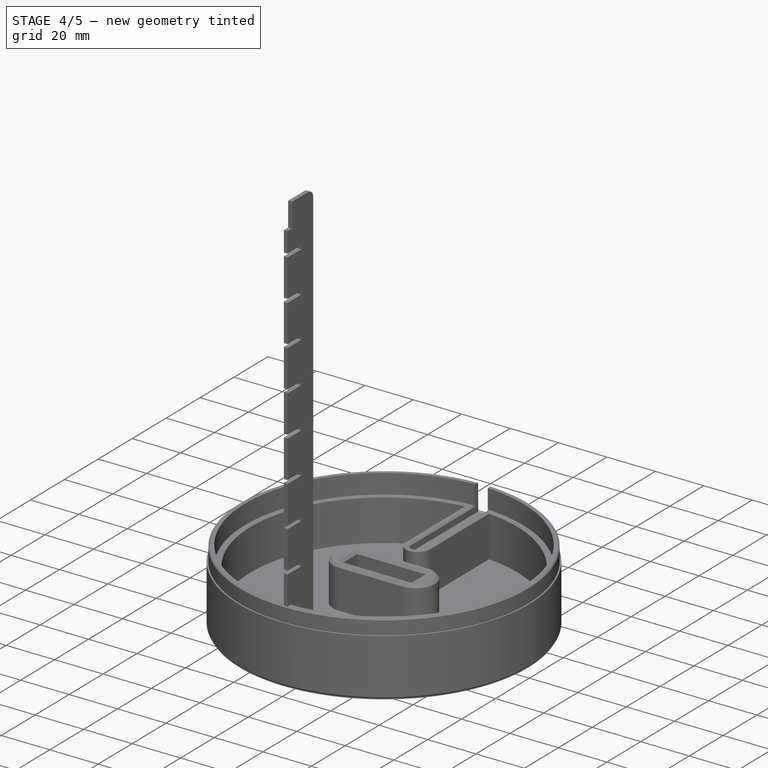
[diagram: stage 4 of 5 — iso view after this stage's code; geometry added in this stage tinted green]
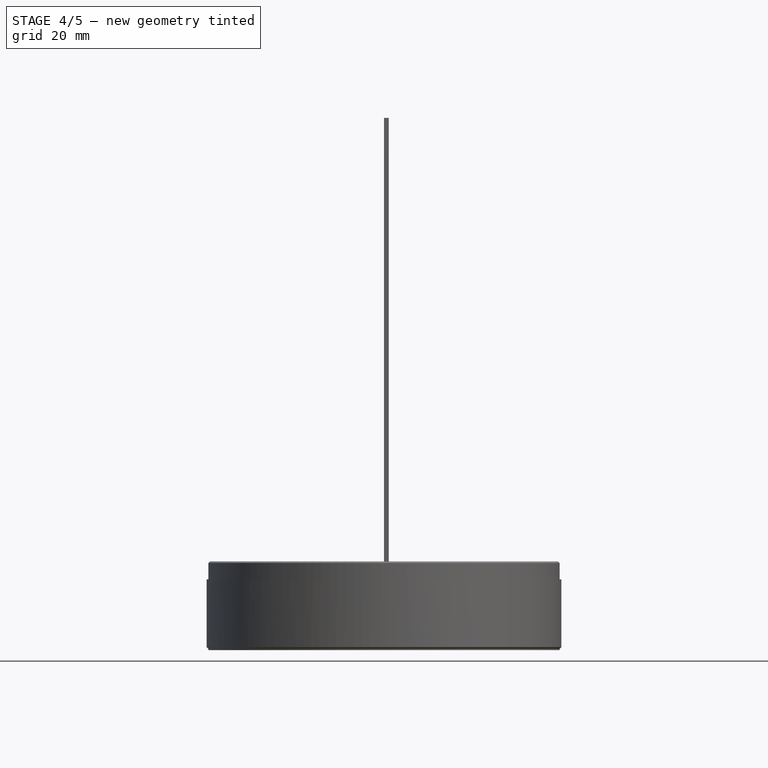
[diagram: stage 4 of 5 — front view after this stage's code; geometry added in this stage tinted green]
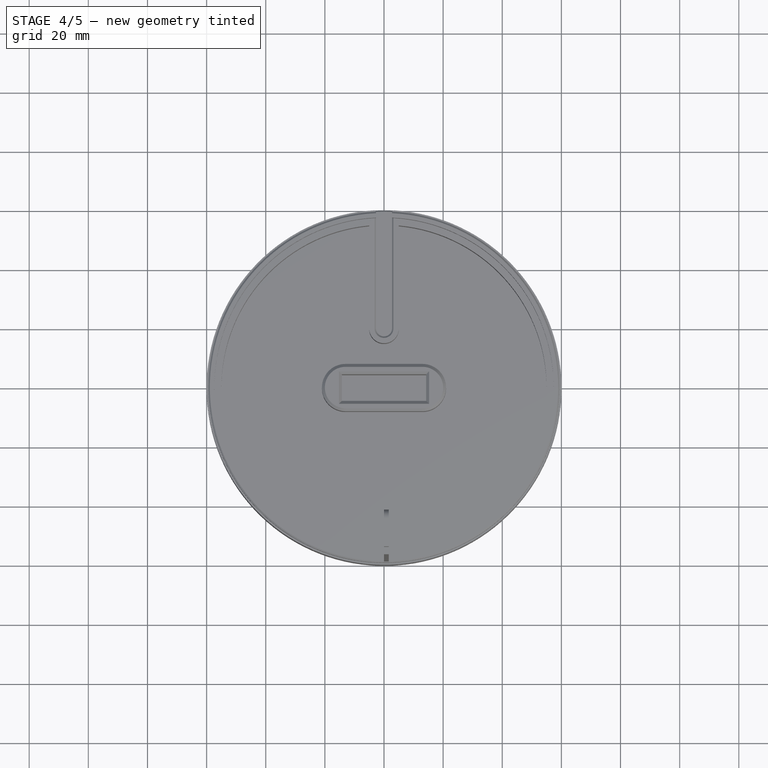
[diagram: stage 4 of 5 — top view after this stage's code; geometry added in this stage tinted green]
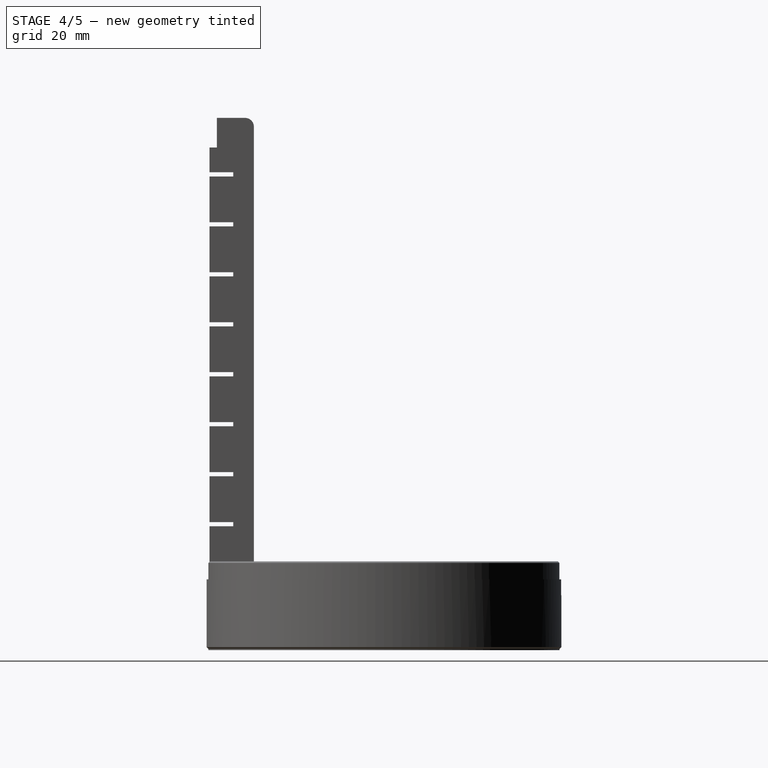
[diagram: stage 4 of 5 — right view after this stage's code; geometry added in this stage tinted green]
FEATURE [PartDesign::Body] Body001  label="Circular_Strut1"
  Group = -> [Sketch001,Pad001,DatumPlane,Sketch002,Pocket,PolarPattern]
  Origin = -> Origin001
  Placement = pos=(0,0,23.5) rot=(0,0,1;0rad)
  Tip = -> PolarPattern
FEATURE [Sketcher::SketchObject] Sketch003
  MapMode = 5
  Placement = pos=(0,0,0) rot=(0.57735,0.57735,0.57735;2.0944rad)
  Support = -> [YZ_Plane002]
  sketch-geometry (44):
    g0: LineSegment StartX=-44 StartY=0 StartZ=0 EndX=-44 EndY=180 EndZ=0
    g1: LineSegment StartX=-44 StartY=180 StartZ=0 EndX=-56.5 EndY=180 EndZ=0
    g2: LineSegment StartX=-59 StartY=170 StartZ=0 EndX=-59 EndY=161.6 EndZ=0
    g3: LineSegment StartX=-59 StartY=161.6 StartZ=0 EndX=-51 EndY=161.6 EndZ=0
    g4: LineSegment StartX=-51 StartY=161.6 StartZ=0 EndX=-51 EndY=160.2 EndZ=0
    g5: LineSegment StartX=-51 StartY=160.2 StartZ=0 EndX=-59 EndY=160.2 EndZ=0
    g6: LineSegment StartX=-59 StartY=144.7 StartZ=0 EndX=-51 EndY=144.7 EndZ=0
    g7: LineSegment StartX=-51 StartY=144.7 StartZ=0 EndX=-51 EndY=143.3 EndZ=0
    g8: LineSegment StartX=-51 StartY=143.3 StartZ=0 EndX=-59 EndY=143.3 EndZ=0
    g9: LineSegment StartX=-59 StartY=126.4 StartZ=0 EndX=-51 EndY=126.4 EndZ=0
    g10: LineSegment StartX=-51 StartY=126.4 StartZ=0 EndX=-51 EndY=127.8 EndZ=0
    g11: LineSegment StartX=-51 StartY=127.8 StartZ=0 EndX=-59 EndY=127.8 EndZ=0
    g12: LineSegment StartX=-59 StartY=110.9 StartZ=0 EndX=-51 EndY=110.9 EndZ=0
    g13: LineSegment StartX=-51 StartY=110.9 StartZ=0 EndX=-51 EndY=109.5 EndZ=0
    g14: LineSegment StartX=-51 StartY=109.5 StartZ=0 EndX=-59 EndY=109.5 EndZ=0
    g15: LineSegment StartX=-59 StartY=109.5 StartZ=0 EndX=-59 EndY=94 EndZ=0
    g16: LineSegment StartX=-59 StartY=94 StartZ=0 EndX=-51 EndY=94 EndZ=0
    g17: LineSegment StartX=-51 StartY=94 StartZ=0 EndX=-51 EndY=92.6 EndZ=0
    g18: LineSegment StartX=-51 StartY=92.6 StartZ=0 EndX=-59 EndY=92.6 EndZ=0
    g19: LineSegment StartX=-59 StartY=92.6 StartZ=0 EndX=-59 EndY=77.1 EndZ=0
    g20: LineSegment StartX=-59 StartY=77.1 StartZ=0 EndX=-51 EndY=77.1 EndZ=0
    g21: LineSegment StartX=-51 StartY=77.1 StartZ=0 EndX=-51 EndY=75.7 EndZ=0
    g22: LineSegment StartX=-51 StartY=75.7 StartZ=0 EndX=-59 EndY=75.7 EndZ=0
    g23: LineSegment StartX=-59 StartY=75.7 StartZ=0 EndX=-59 EndY=60.2 EndZ=0
    g24: LineSegment StartX=-59 StartY=60.2 StartZ=0 EndX=-51 EndY=60.2 EndZ=0
    g25: LineSegment StartX=-51 StartY=60.2 StartZ=0 EndX=-51 EndY=58.8 EndZ=0
    g26: LineSegment StartX=-51 StartY=58.8 StartZ=0 EndX=-59 EndY=58.8 EndZ=0
    g27: LineSegment StartX=-59 StartY=58.8 StartZ=0 EndX=-59 EndY=43.3 EndZ=0
    g28: LineSegment StartX=-59 StartY=43.3 StartZ=0 EndX=-51 EndY=43.3 EndZ=0
    g29: LineSegment StartX=-51 StartY=43.3 StartZ=0 EndX=-51 EndY=41.9 EndZ=0
    g30: LineSegment StartX=-51 StartY=41.9 StartZ=0 EndX=-59 EndY=41.9 EndZ=0
    g31: LineSegment StartX=-59 StartY=23.6 StartZ=0 EndX=-51 EndY=23.6 EndZ=0
    g32: LineSegment StartX=-51 StartY=23.6 StartZ=0 EndX=-51 EndY=25 EndZ=0
    g33: LineSegment StartX=-51 StartY=25 StartZ=0 EndX=-59 EndY=25 EndZ=0
    g34: LineSegment StartX=-56.5 StartY=0 StartZ=0 EndX=-44 EndY=0 EndZ=0
    g35: LineSegment StartX=-59 StartY=10 StartZ=0 EndX=-59 EndY=23.6 EndZ=0
    g36: LineSegment StartX=-59 StartY=41.9 StartZ=0 EndX=-59 EndY=25 EndZ=0
    g37: LineSegment StartX=-59 StartY=110.9 StartZ=0 EndX=-59 EndY=126.4 EndZ=0
    g38: LineSegment StartX=-59 StartY=160.2 StartZ=0 EndX=-59 EndY=144.7 EndZ=0
    g39: LineSegment StartX=-59 StartY=143.3 StartZ=0 EndX=-59 EndY=127.8 EndZ=0
    g40: LineSegment StartX=-56.5 StartY=180 StartZ=0 EndX=-56.5 EndY=170 EndZ=0
    g41: LineSegment StartX=-56.5 StartY=170 StartZ=0 EndX=-59 EndY=170 EndZ=0
    g42: LineSegment StartX=-59 StartY=10 StartZ=0 EndX=-56.5 EndY=10 EndZ=0
    g43: LineSegment StartX=-56.5 StartY=10 StartZ=0 EndX=-56.5 EndY=0 EndZ=0
  constraints (131):
    c: Vertical(g0)
    c: Coincident(g0,g1)
    c: Horizontal(g1)
    c: Vertical(g2)
    c: Coincident(g2,g3)
    c: Horizontal(g3)
    c: Coincident(g3,g4)
    c: Vertical(g4)
    c: Coincident(g4,g5)
    c: Horizontal(g5)
    c: Horizontal(g6)
    c: Coincident(g6,g7)
    c: Vertical(g7)
    c: Coincident(g7,g8)
    c: Horizontal(g8)
    c: Horizontal(g9)
    c: Coincident(g9,g10)
    c: Coincident(g10,g11)
    c: Horizontal(g11)
    c: Horizontal(g12)
    c: Coincident(g12,g13)
    c: Vertical(g13)
    c: Coincident(g13,g14)
    c: Horizontal(g14)
    c: Coincident(g14,g15)
    c: Vertical(g15)
    c: Coincident(g15,g16)
    c: Horizontal(g16)
    c: Coincident(g16,g17)
    c: Coincident(g17,g18)
    c: Horizontal(g18)
    c: Coincident(g18,g19)
    c: Vertical(g19)
    c: Coincident(g19,g20)
    c: Horizontal(g20)
    c: Coincident(g20,g21)
    c: Vertical(g21)
    c: Coincident(g21,g22)
    c: Horizontal(g22)
    c: Coincident(g22,g23)
    c: Vertical(g23)
    c: Coincident(g23,g24)
    c: Horizontal(g24)
    c: Coincident(g24,g25)
    c: Vertical(g25)
    c: Coincident(g25,g26)
    c: Horizontal(g26)
    c: Coincident(g26,g27)
    c: Coincident(g27,g28)
    c: Horizontal(g28)
    c: Coincident(g28,g29)
    c: Vertical(g29)
    c: Coincident(g29,g30)
    c: Horizontal(g30)
    c: Horizontal(g31)
    c: Coincident(g31,g32)
    c: Vertical(g32)
    c: Coincident(g32,g33)
    c: Horizontal(g33)
    c: Coincident(g34,g0)
    c: Horizontal(g34)
    c: Vertical(g27)
    c: DistanceX(g2,g3) = 8
    c: Equal(g3,g5)
    c: Equal(g5,g6)
    c: Equal(g6,g8)
    c: Equal(g8,g9)
    c: Equal(g9,g11)
    c: Equal(g11,g12)
    c: Equal(g12,g14)
    c: Equal(g14,g16)
    c: Equal(g16,g18)
    c: Equal(g18,g20)
    c: Equal(g20,g22)
    c: Equal(g22,g24)
    c: Equal(g24,g26)
    c: Equal(g26,g28)
    c: Equal(g28,g30)
    c: Equal(g30,g31)
    c: Equal(g31,g33)
    c: Vertical(g17)
    c: Vertical(g10)
    c: DistanceY(g4,g3) = 1.4
    c: Equal(g4,g7)
    c: Equal(g7,g10)
    c: Equal(g10,g13)
    c: Equal(g13,g17)
    c: Equal(g17,g21)
    c: Equal(g21,g25)
    c: Equal(g25,g29)
    c: Equal(g29,g32)
    c: DistanceY(g33,g27) = 18.3
    c: DistanceY(g29,g24) = 18.3
    c: DistanceY(g25,g20) = 18.3
    c: DistanceY(g21,g16) = 18.3
    c: DistanceY(g17,g12) = 18.3
    c: DistanceY(g13,g10) = 18.3
    c: DistanceY(g9,g6) = 18.3
    c: DistanceY(g7,g3) = 18.3
    c: Coincident(g35,g31)
    c: Vertical(g35)
    c: Coincident(g36,g30)
    c: Coincident(g36,g33)
    c: Vertical(g36)
    c: Coincident(g37,g12)
    c: Coincident(g37,g9)
    c: Vertical(g37)
    c: Vertical(g38)
    c: Vertical(g39)
    c: Coincident(g5,g38)
    c: Coincident(g6,g38)
    c: Coincident(g8,g39)
    c: Coincident(g11,g39)
    c: Vertical(g40)
    c: Coincident(g40,g41)
    c: Horizontal(g41)
    c: Coincident(g1,g40)
    c: Coincident(g2,g41)
    c: DistanceX(g2,g40) = 2.5
    c: DistanceY(g40,g1) = 10
    c: Horizontal(g42)
    c: Coincident(g42,g43)
    c: Vertical(g43)
    c: Coincident(g34,g43)
    c: Coincident(g35,g42)
    c: DistanceX(g35,g42) = 2.5
    c: DistanceY(g34,g42) = 10
    c: PointOnObject(g34,g-1)
    c: DistanceY(g0,g0) = 180
    c: DistanceX(g34,g0) = 12.5
    c: DistanceY(g35,g31) = 13.6
FEATURE [PartDesign::Pad] Pad002
  Length = 1.6
  Length2 = 100
  Placement = pos=(0,0,0) rot=(0.57735,0.57735,0.57735;2.0944rad)
  Profile = -> Sketch003
  Refine = true
  Type = 0
FEATURE [PartDesign::Body] Body006  label="Circular_Strut005"
  Group = -> [Sketch010,Pad006,DatumPlane004,Sketch011,Pocket004,PolarPattern004]
  Origin = -> Origin006
  Placement = pos=(0,0,92.4) rot=(0,0,1;0rad)
  Tip = -> PolarPattern004
FEATURE [Sketcher::SketchObject] Sketch012
  MapMode = 5
  Support = -> [XY_Plane007]
  sketch-geometry (2):
    g0: Circle CenterX=0 CenterY=0 CenterZ=0 NormalX=0 NormalY=0 NormalZ=1 AngleXU=0 Radius=59.4
    g1: Circle CenterX=0 CenterY=0 CenterZ=0 NormalX=0 NormalY=0 NormalZ=1 AngleXU=0 Radius=44.4
  constraints (4):
    c: Coincident(g0,g-1)
    c: Radius(g0) = 59.4
    c: Coincident(g1,g-1)
    c: Radius(g1) = 44.4
FEATURE [PartDesign::Pad] Pad007
  Length = 1.5
  Length2 = 100
  Profile = -> Sketch012
  Refine = true
  Type = 0
FEATURE [PartDesign::Plane] DatumPlane005
  MapMode = 5
  Placement = pos=(0,0,1.5) rot=(0,0,1;0rad)
  Support = -> [Pad007]
FEATURE [Sketcher::SketchObject] Sketch013
  ExternalGeometry = -> [Pad007]
  MapMode = 5
  Placement = pos=(0,0,1.5) rot=(0,0,1;0rad)
  Support = -> [DatumPlane005]
  sketch-geometry (8):
    g0: LineSegment StartX=-0.85 StartY=-44.3919 StartZ=0 EndX=0.849963 EndY=-44.3919 EndZ=0
    g1: LineSegment StartX=0.849963 StartY=-44.3919 StartZ=0 EndX=0.85 EndY=-51.3919 EndZ=0
    g2: LineSegment StartX=0.85 StartY=-51.3919 StartZ=0 EndX=-0.85 EndY=-51.3919 EndZ=0
    g3: LineSegment StartX=-0.85 StartY=-51.3919 StartZ=0 EndX=-0.85 EndY=-44.3919 EndZ=0
    g4: LineSegment StartX=1.84996 StartY=-44.3614 StartZ=0 EndX=2.15779 EndY=-46.3376 EndZ=0
    g5: LineSegment StartX=2.15779 StartY=-46.3376 StartZ=0 EndX=12.0386 EndY=-44.7985 EndZ=0
    g6: LineSegment StartX=12.0386 StartY=-44.7985 StartZ=0 EndX=11.7308 EndY=-42.8223 EndZ=0
    g7: LineSegment StartX=11.7308 StartY=-42.8223 StartZ=0 EndX=1.84996 EndY=-44.3614 EndZ=0
  constraints (24):
    c: Coincident(g0,g1)
    c: Coincident(g1,g2)
    c: Coincident(g2,g3)
    c: Coincident(g3,g0)
    c: Horizontal(g0)
    c: Horizontal(g2)
    c: Vertical(g3)
    c: Symmetric(g2,g1,g-2)
    c: DistanceX(g2,g1) = 1.7
    c: DistanceY(g1,g0) = 7
    c: PointOnObject(g0,g-3)
    c: Coincident(g4,g5)
    c: Coincident(g5,g6)
    c: Coincident(g6,g7)
    c: Coincident(g7,g4)
    c: Parallel(g7,g5)
    c: Parallel(g4,g6)
    c: Angle(g5,g4) = 1.5708
    c: Equal(g1,g3)
    c: PointOnObject(g4,g-3)
    c: PointOnObject(g6,g-3)
    c: DistanceX(g0,g4) = 1
    c: Distance(g4,g5) = 10
    c: Distance(g5,g6) = 2
FEATURE [PartDesign::Pocket] Pocket005
  BaseFeature = -> Pad007
  Length = 1.5
  Length2 = 100
  Profile = -> Sketch013
  Refine = true
  Type = 0
FEATURE [PartDesign::Body] Body007  label="Circular_Strut006"
  Group = -> [Sketch012,Pad007,DatumPlane005,Sketch013,Pocket005,PolarPattern005]
  Origin = -> Origin007
  Placement = pos=(0,0,109.2) rot=(0,0,1;0rad)
  Tip = -> PolarPattern005
FEATURE [Sketcher::SketchObject] Sketch014
  MapMode = 5
  Support = -> [XY_Plane008]
  sketch-geometry (2):
    g0: Circle CenterX=0 CenterY=0 CenterZ=0 NormalX=0 NormalY=0 NormalZ=1 AngleXU=0 Radius=59.4
    g1: Circle CenterX=0 CenterY=0 CenterZ=0 NormalX=0 NormalY=0 NormalZ=1 AngleXU=0 Radius=44.4
  constraints (4):
    c: Coincident(g0,g-1)
    c: Radius(g0) = 59.4
    c: Coincident(g1,g-1)
    c: Radius(g1) = 44.4
FEATURE [PartDesign::Pad] Pad008
  Length = 1.5
  Length2 = 100
  Profile = -> Sketch014
  Refine = true
  Type = 0
FEATURE [PartDesign::Plane] DatumPlane006
  MapMode = 5
  Placement = pos=(0,0,1.5) rot=(0,0,1;0rad)
  Support = -> [Pad008]
FEATURE [Sketcher::SketchObject] Sketch015
  ExternalGeometry = -> [Pad008]
  MapMode = 5
  Placement = pos=(0,0,1.5) rot=(0,0,1;0rad)
  Support = -> [DatumPlane006]
  sketch-geometry (8):
    g0: LineSegment StartX=-0.85 StartY=-44.3919 StartZ=0 EndX=0.849963 EndY=-44.3919 EndZ=0
    g1: LineSegment StartX=0.849963 StartY=-44.3919 StartZ=0 EndX=0.85 EndY=-51.3919 EndZ=0
    g2: LineSegment StartX=0.85 StartY=-51.3919 StartZ=0 EndX=-0.85 EndY=-51.3919 EndZ=0
    g3: LineSegment StartX=-0.85 StartY=-51.3919 StartZ=0 EndX=-0.85 EndY=-44.3919 EndZ=0
    g4: LineSegment StartX=1.84996 StartY=-44.3614 StartZ=0 EndX=2.15779 EndY=-46.3376 EndZ=0
    g5: LineSegment StartX=2.15779 StartY=-46.3376 StartZ=0 EndX=12.0386 EndY=-44.7985 EndZ=0
    g6: LineSegment StartX=12.0386 StartY=-44.7985 StartZ=0 EndX=11.7308 EndY=-42.8223 EndZ=0
    g7: LineSegment StartX=11.7308 StartY=-42.8223 StartZ=0 EndX=1.84996 EndY=-44.3614 EndZ=0
  constraints (24):
    c: Coincident(g0,g1)
    c: Coincident(g1,g2)
    c: Coincident(g2,g3)
    c: Coincident(g3,g0)
    c: Horizontal(g0)
    c: Horizontal(g2)
    c: Vertical(g3)
    c: Symmetric(g2,g1,g-2)
    c: DistanceX(g2,g1) = 1.7
    c: DistanceY(g1,g0) = 7
    c: PointOnObject(g0,g-3)
    c: Coincident(g4,g5)
    c: Coincident(g5,g6)
    c: Coincident(g6,g7)
    c: Coincident(g7,g4)
    c: Parallel(g7,g5)
    c: Parallel(g4,g6)
    c: Angle(g5,g4) = 1.5708
    c: Equal(g1,g3)
    c: PointOnObject(g4,g-3)
    c: PointOnObject(g6,g-3)
    c: DistanceX(g0,g4) = 1
    c: Distance(g4,g5) = 10
    c: Distance(g5,g6) = 2
FEATURE [PartDesign::Pocket] Pocket006
  BaseFeature = -> Pad008
  Length = 1.5
  Length2 = 100
  Profile = -> Sketch015
  Refine = true
  Type = 0
FEATURE [PartDesign::PolarPattern] PolarPattern006
  Angle = 360
  Axis = -> Sketch015 [N_Axis]
  BaseFeature = -> Pocket006
  Occurrences = 20
  Originals = -> [Pocket006]
  Refine = true
FEATURE [PartDesign::Body] Body008  label="Circular_Strut007"
  Group = -> [Sketch014,Pad008,DatumPlane006,Sketch015,Pocket006,PolarPattern006]
  Origin = -> Origin008
  Placement = pos=(0,0,126) rot=(0,0,1;0rad)
  Tip = -> PolarPattern006
FEATURE [Sketcher::SketchObject] Sketch016
  MapMode = 5
  Support = -> [XY_Plane009]
  sketch-geometry (2):
    g0: Circle CenterX=0 CenterY=0 CenterZ=0 NormalX=0 NormalY=0 NormalZ=1 AngleXU=0 Radius=59.4
    g1: Circle CenterX=0 CenterY=0 CenterZ=0 NormalX=0 NormalY=0 NormalZ=1 AngleXU=0 Radius=44.4
  constraints (4):
    c: Coincident(g0,g-1)
    c: Radius(g0) = 59.4
    c: Coincident(g1,g-1)
    c: Radius(g1) = 44.4
FEATURE [PartDesign::Pad] Pad009
  Length = 1.5
  Length2 = 100
  Profile = -> Sketch016
  Refine = true
  Type = 0
FEATURE [PartDesign::Plane] DatumPlane007
  MapMode = 5
  Placement = pos=(0,0,1.5) rot=(0,0,1;0rad)
  Support = -> [Pad009]
FEATURE [Sketcher::SketchObject] Sketch017
  ExternalGeometry = -> [Pad009]
  MapMode = 5
  Placement = pos=(0,0,1.5) rot=(0,0,1;0rad)
  Support = -> [DatumPlane007]
  sketch-geometry (8):
    g0: LineSegment StartX=-0.85 StartY=-44.3919 StartZ=0 EndX=0.849963 EndY=-44.3919 EndZ=0
    g1: LineSegment StartX=0.849963 StartY=-44.3919 StartZ=0 EndX=0.85 EndY=-51.3919 EndZ=0
    g2: LineSegment StartX=0.85 StartY=-51.3919 StartZ=0 EndX=-0.85 EndY=-51.3919 EndZ=0
    g3: LineSegment StartX=-0.85 StartY=-51.3919 StartZ=0 EndX=-0.85 EndY=-44.3919 EndZ=0
    g4: LineSegment StartX=1.84996 StartY=-44.3614 StartZ=0 EndX=2.15779 EndY=-46.3376 EndZ=0
    g5: LineSegment StartX=2.15779 StartY=-46.3376 StartZ=0 EndX=12.0386 EndY=-44.7985 EndZ=0
    g6: LineSegment StartX=12.0386 StartY=-44.7985 StartZ=0 EndX=11.7308 EndY=-42.8223 EndZ=0
    g7: LineSegment StartX=11.7308 StartY=-42.8223 StartZ=0 EndX=1.84996 EndY=-44.3614 EndZ=0
  constraints (24):
    c: Coincident(g0,g1)
    c: Coincident(g1,g2)
    c: Coincident(g2,g3)
    c: Coincident(g3,g0)
    c: Horizontal(g0)
    c: Horizontal(g2)
    c: Vertical(g3)
    c: Symmetric(g2,g1,g-2)
    c: DistanceX(g2,g1) = 1.7
    c: DistanceY(g1,g0) = 7
    c: PointOnObject(g0,g-3)
    c: Coincident(g4,g5)
    c: Coincident(g5,g6)
    c: Coincident(g6,g7)
    c: Coincident(g7,g4)
    c: Parallel(g7,g5)
    c: Parallel(g4,g6)
    c: Angle(g5,g4) = 1.5708
    c: Equal(g1,g3)
    c: PointOnObject(g4,g-3)
    c: PointOnObject(g6,g-3)
    c: DistanceX(g0,g4) = 1
    c: Distance(g4,g5) = 10
    c: Distance(g5,g6) = 2
FEATURE [PartDesign::Pocket] Pocket007
  BaseFeature = -> Pad009
  Length = 1.5
  Length2 = 100
  Profile = -> Sketch017
  Refine = true
  Type = 0
FEATURE [PartDesign::PolarPattern] PolarPattern007
  Angle = 360
  Axis = -> Sketch017 [N_Axis]
  BaseFeature = -> Pocket007
  Occurrences = 20
  Originals = -> [Pocket007]
  Refine = true
FEATURE [PartDesign::Body] Body009  label="Circular_Strut008"
  Group = -> [Sketch016,Pad009,DatumPlane007,Sketch017,Pocket007,PolarPattern007]
  Origin = -> Origin009
  Placement = pos=(0,0,142.8) rot=(0,0,1;0rad)
  Tip = -> PolarPattern007
FEATURE [Sketcher::SketchObject] Sketch019
  MapMode = 5
  Support = -> [XY_Plane010]
  sketch-geometry (2):
    g0: Circle CenterX=0 CenterY=0 CenterZ=0 NormalX=0 NormalY=0 NormalZ=1 AngleXU=0 Radius=59.4
    g1: Circle CenterX=0 CenterY=0 CenterZ=0 NormalX=0 NormalY=0 NormalZ=1 AngleXU=0 Radius=44.4
  constraints (4):
    c: Coincident(g0,g-1)
    c: Radius(g0) = 59.4
    c: Coincident(g1,g-1)
    c: Radius(g1) = 44.4
FEATURE [PartDesign::Pad] Pad010
  Length = 1.5
  Length2 = 100
  Profile = -> Sketch019
  Refine = true
  Type = 0
FEATURE [PartDesign::Plane] DatumPlane008
  MapMode = 5
  Placement = pos=(0,0,1.5) rot=(0,0,1;0rad)
  Support = -> [Pad010]
FEATURE [Sketcher::SketchObject] Sketch018
  ExternalGeometry = -> [Pad010]
  MapMode = 5
  Placement = pos=(0,0,1.5) rot=(0,0,1;0rad)
  Support = -> [DatumPlane008]
  sketch-geometry (8):
    g0: LineSegment StartX=-0.85 StartY=-44.3919 StartZ=0 EndX=0.849963 EndY=-44.3919 EndZ=0
    g1: LineSegment StartX=0.849963 StartY=-44.3919 StartZ=0 EndX=0.85 EndY=-51.3919 EndZ=0
    g2: LineSegment StartX=0.85 StartY=-51.3919 StartZ=0 EndX=-0.85 EndY=-51.3919 EndZ=0
    g3: LineSegment StartX=-0.85 StartY=-51.3919 StartZ=0 EndX=-0.85 EndY=-44.3919 EndZ=0
    g4: LineSegment StartX=1.84996 StartY=-44.3614 StartZ=0 EndX=2.15779 EndY=-46.3376 EndZ=0
    g5: LineSegment StartX=2.15779 StartY=-46.3376 StartZ=0 EndX=12.0386 EndY=-44.7985 EndZ=0
    g6: LineSegment StartX=12.0386 StartY=-44.7985 StartZ=0 EndX=11.7308 EndY=-42.8223 EndZ=0
    g7: LineSegment StartX=11.7308 StartY=-42.8223 StartZ=0 EndX=1.84996 EndY=-44.3614 EndZ=0
  constraints (24):
    c: Coincident(g0,g1)
    c: Coincident(g1,g2)
    c: Coincident(g2,g3)
    c: Coincident(g3,g0)
    c: Horizontal(g0)
    c: Horizontal(g2)
    c: Vertical(g3)
    c: Symmetric(g2,g1,g-2)
    c: DistanceX(g2,g1) = 1.7
    c: DistanceY(g1,g0) = 7
    c: PointOnObject(g0,g-3)
    c: Coincident(g4,g5)
    c: Coincident(g5,g6)
    c: Coincident(g6,g7)
    c: Coincident(g7,g4)
    c: Parallel(g7,g5)
    c: Parallel(g4,g6)
    c: Angle(g5,g4) = 1.5708
    c: Equal(g1,g3)
    c: PointOnObject(g4,g-3)
    c: PointOnObject(g6,g-3)
    c: DistanceX(g0,g4) = 1
    c: Distance(g4,g5) = 10
    c: Distance(g5,g6) = 2
FEATURE [PartDesign::Pocket] Pocket008
  BaseFeature = -> Pad010
  Length = 1.5
  Length2 = 100
  Profile = -> Sketch018
  Refine = true
  Type = 0
FEATURE [PartDesign::PolarPattern] PolarPattern008
  Angle = 360
  Axis = -> Sketch018 [N_Axis]
  BaseFeature = -> Pocket008
  Occurrences = 20
  Originals = -> [Pocket008]
  Refine = true
FEATURE [PartDesign::Body] Body010  label="Circular_Strut009"
  Group = -> [Sketch019,Pad010,DatumPlane008,Sketch018,Pocket008,PolarPattern008]
  Origin = -> Origin010
  Placement = pos=(0,0,159.6) rot=(0,0,1;0rad)
  Tip = -> PolarPattern008
FEATURE [PartDesign::Fillet] Fillet
  Base = -> Pad002 [Edge11,Edge8]
  BaseFeature = -> Pad002
  Placement = pos=(0,0,0) rot=(0.57735,0.57735,0.57735;2.0944rad)
  Radius = 3
FEATURE [PartDesign::Body] Body002  label="Vertical_Strut1"
  Group = -> [Sketch003,Pad002,Fillet]
  Origin = -> Origin002
  Placement = pos=(0,0,0) rot=(0,0,-1;0.017453rad)
  Tip = -> Fillet
FEATURE [Sketcher::SketchObject] Sketch020
  MapMode = 5
  Placement = pos=(0,0,0) rot=(0.57735,0.57735,0.57735;2.0944rad)
  Support = -> [YZ_Plane011]
  sketch-geometry (44):
    g0: LineSegment StartX=-44 StartY=0 StartZ=0 EndX=-44 EndY=180 EndZ=0
    g1: LineSegment StartX=-44 StartY=180 StartZ=0 EndX=-56.5 EndY=180 EndZ=0
    g2: LineSegment StartX=-59 StartY=170 StartZ=0 EndX=-59 EndY=161.6 EndZ=0
    g3: LineSegment StartX=-59 StartY=161.6 StartZ=0 EndX=-51 EndY=161.6 EndZ=0
    g4: LineSegment StartX=-51 StartY=161.6 StartZ=0 EndX=-51 EndY=160.2 EndZ=0
    g5: LineSegment StartX=-51 StartY=160.2 StartZ=0 EndX=-59 EndY=160.2 EndZ=0
    g6: LineSegment StartX=-59 StartY=144.7 StartZ=0 EndX=-51 EndY=144.7 EndZ=0
    g7: LineSegment StartX=-51 StartY=144.7 StartZ=0 EndX=-51 EndY=143.3 EndZ=0
    g8: LineSegment StartX=-51 StartY=143.3 StartZ=0 EndX=-59 EndY=143.3 EndZ=0
    g9: LineSegment StartX=-59 StartY=126.4 StartZ=0 EndX=-51 EndY=126.4 EndZ=0
    g10: LineSegment StartX=-51 StartY=126.4 StartZ=0 EndX=-51 EndY=127.8 EndZ=0
    g11: LineSegment StartX=-51 StartY=127.8 StartZ=0 EndX=-59 EndY=127.8 EndZ=0
    g12: LineSegment StartX=-59 StartY=110.9 StartZ=0 EndX=-51 EndY=110.9 EndZ=0
    g13: LineSegment StartX=-51 StartY=110.9 StartZ=0 EndX=-51 EndY=109.5 EndZ=0
    g14: LineSegment StartX=-51 StartY=109.5 StartZ=0 EndX=-59 EndY=109.5 EndZ=0
    g15: LineSegment StartX=-59 StartY=109.5 StartZ=0 EndX=-59 EndY=94 EndZ=0
    g16: LineSegment StartX=-59 StartY=94 StartZ=0 EndX=-51 EndY=94 EndZ=0
    g17: LineSegment StartX=-51 StartY=94 StartZ=0 EndX=-51 EndY=92.6 EndZ=0
    g18: LineSegment StartX=-51 StartY=92.6 StartZ=0 EndX=-59 EndY=92.6 EndZ=0
    g19: LineSegment StartX=-59 StartY=92.6 StartZ=0 EndX=-59 EndY=77.1 EndZ=0
    g20: LineSegment StartX=-59 StartY=77.1 StartZ=0 EndX=-51 EndY=77.1 EndZ=0
    g21: LineSegment StartX=-51 StartY=77.1 StartZ=0 EndX=-51 EndY=75.7 EndZ=0
    g22: LineSegment StartX=-51 StartY=75.7 StartZ=0 EndX=-59 EndY=75.7 EndZ=0
    g23: LineSegment StartX=-59 StartY=75.7 StartZ=0 EndX=-59 EndY=60.2 EndZ=0
    g24: LineSegment StartX=-59 StartY=60.2 StartZ=0 EndX=-51 EndY=60.2 EndZ=0
    g25: LineSegment StartX=-51 StartY=60.2 StartZ=0 EndX=-51 EndY=58.8 EndZ=0
    g26: LineSegment StartX=-51 StartY=58.8 StartZ=0 EndX=-59 EndY=58.8 EndZ=0
    g27: LineSegment StartX=-59 StartY=58.8 StartZ=0 EndX=-59 EndY=43.3 EndZ=0
    g28: LineSegment StartX=-59 StartY=43.3 StartZ=0 EndX=-51 EndY=43.3 EndZ=0
    g29: LineSegment StartX=-51 StartY=43.3 StartZ=0 EndX=-51 EndY=41.9 EndZ=0
    g30: LineSegment StartX=-51 StartY=41.9 StartZ=0 EndX=-59 EndY=41.9 EndZ=0
    g31: LineSegment StartX=-59 StartY=23.6 StartZ=0 EndX=-51 EndY=23.6 EndZ=0
    g32: LineSegment StartX=-51 StartY=23.6 StartZ=0 EndX=-51 EndY=25 EndZ=0
    g33: LineSegment StartX=-51 StartY=25 StartZ=0 EndX=-59 EndY=25 EndZ=0
    g34: LineSegment StartX=-56.5 StartY=0 StartZ=0 EndX=-44 EndY=0 EndZ=0
    g35: LineSegment StartX=-59 StartY=10 StartZ=0 EndX=-59 EndY=23.6 EndZ=0
    g36: LineSegment StartX=-59 StartY=41.9 StartZ=0 EndX=-59 EndY=25 EndZ=0
    g37: LineSegment StartX=-59 StartY=110.9 StartZ=0 EndX=-59 EndY=126.4 EndZ=0
    g38: LineSegment StartX=-59 StartY=160.2 StartZ=0 EndX=-59 EndY=144.7 EndZ=0
    g39: LineSegment StartX=-59 StartY=143.3 StartZ=0 EndX=-59 EndY=127.8 EndZ=0
    g40: LineSegment StartX=-56.5 StartY=180 StartZ=0 EndX=-56.5 EndY=170 EndZ=0
    g41: LineSegment StartX=-56.5 StartY=170 StartZ=0 EndX=-59 EndY=170 EndZ=0
    g42: LineSegment StartX=-59 StartY=10 StartZ=0 EndX=-56.5 EndY=10 EndZ=0
    g43: LineSegment StartX=-56.5 StartY=10 StartZ=0 EndX=-56.5 EndY=0 EndZ=0
  constraints (131):
    c: Vertical(g0)
    c: Coincident(g0,g1)
    c: Horizontal(g1)
    c: Vertical(g2)
    c: Coincident(g2,g3)
    c: Horizontal(g3)
    c: Coincident(g3,g4)
    c: Vertical(g4)
    c: Coincident(g4,g5)
    c: Horizontal(g5)
    c: Horizontal(g6)
    c: Coincident(g6,g7)
    c: Vertical(g7)
    c: Coincident(g7,g8)
    c: Horizontal(g8)
    c: Horizontal(g9)
    c: Coincident(g9,g10)
    c: Coincident(g10,g11)
    c: Horizontal(g11)
    c: Horizontal(g12)
    c: Coincident(g12,g13)
    c: Vertical(g13)
    c: Coincident(g13,g14)
    c: Horizontal(g14)
    c: Coincident(g14,g15)
    c: Vertical(g15)
    c: Coincident(g15,g16)
    c: Horizontal(g16)
    c: Coincident(g16,g17)
    c: Coincident(g17,g18)
    c: Horizontal(g18)
    c: Coincident(g18,g19)
    c: Vertical(g19)
    c: Coincident(g19,g20)
    c: Horizontal(g20)
    c: Coincident(g20,g21)
    c: Vertical(g21)
    c: Coincident(g21,g22)
    c: Horizontal(g22)
    c: Coincident(g22,g23)
    c: Vertical(g23)
    c: Coincident(g23,g24)
    c: Horizontal(g24)
    c: Coincident(g24,g25)
    c: Vertical(g25)
    c: Coincident(g25,g26)
    c: Horizontal(g26)
    c: Coincident(g26,g27)
    c: Coincident(g27,g28)
    c: Horizontal(g28)
    c: Coincident(g28,g29)
    c: Vertical(g29)
    c: Coincident(g29,g30)
    c: Horizontal(g30)
    c: Horizontal(g31)
    c: Coincident(g31,g32)
    c: Vertical(g32)
    c: Coincident(g32,g33)
    c: Horizontal(g33)
    c: Coincident(g34,g0)
    c: Horizontal(g34)
    c: Vertical(g27)
    c: DistanceX(g2,g3) = 8
    c: Equal(g3,g5)
    c: Equal(g5,g6)
    c: Equal(g6,g8)
    c: Equal(g8,g9)
    c: Equal(g9,g11)
    c: Equal(g11,g12)
    c: Equal(g12,g14)
    c: Equal(g14,g16)
    c: Equal(g16,g18)
    c: Equal(g18,g20)
    c: Equal(g20,g22)
    c: Equal(g22,g24)
    c: Equal(g24,g26)
    c: Equal(g26,g28)
    c: Equal(g28,g30)
    c: Equal(g30,g31)
    c: Equal(g31,g33)
    c: Vertical(g17)
    c: Vertical(g10)
    c: DistanceY(g4,g3) = 1.4
    c: Equal(g4,g7)
    c: Equal(g7,g10)
    c: Equal(g10,g13)
    c: Equal(g13,g17)
    c: Equal(g17,g21)
    c: Equal(g21,g25)
    c: Equal(g25,g29)
    c: Equal(g29,g32)
    c: DistanceY(g33,g27) = 18.3
    c: DistanceY(g29,g24) = 18.3
    c: DistanceY(g25,g20) = 18.3
    c: DistanceY(g21,g16) = 18.3
    c: DistanceY(g17,g12) = 18.3
    c: DistanceY(g13,g10) = 18.3
    c: DistanceY(g9,g6) = 18.3
    c: DistanceY(g7,g3) = 18.3
    c: Coincident(g35,g31)
    c: Vertical(g35)
    c: Coincident(g36,g30)
    c: Coincident(g36,g33)
    c: Vertical(g36)
    c: Coincident(g37,g12)
    c: Coincident(g37,g9)
    c: Vertical(g37)
    c: Vertical(g38)
    c: Vertical(g39)
    c: Coincident(g5,g38)
    c: Coincident(g6,g38)
    c: Coincident(g8,g39)
    c: Coincident(g11,g39)
    c: Vertical(g40)
    c: Coincident(g40,g41)
    c: Horizontal(g41)
    c: Coincident(g1,g40)
    c: Coincident(g2,g41)
    c: DistanceX(g2,g40) = 2.5
    c: DistanceY(g40,g1) = 10
    c: Horizontal(g42)
    c: Coincident(g42,g43)
    c: Vertical(g43)
    c: Coincident(g34,g43)
    c: Coincident(g35,g42)
    c: DistanceX(g35,g42) = 2.5
    c: DistanceY(g34,g42) = 10
    c: PointOnObject(g34,g-1)
    c: DistanceY(g0,g0) = 180
    c: DistanceX(g34,g0) = 12.5
    c: DistanceY(g35,g31) = 13.6
FEATURE [PartDesign::Pad] Pad011
  Length = 1.6
  Length2 = 100
  Placement = pos=(0,0,0) rot=(0.57735,0.57735,0.57735;2.0944rad)
  Profile = -> Sketch020
  Refine = true
  Type = 0
FEATURE [PartDesign::Fillet] Fillet001
  Base = -> Pad011 [Edge11,Edge8]
  BaseFeature = -> Pad011
  Placement = pos=(0,0,0) rot=(0.57735,0.57735,0.57735;2.0944rad)
  Radius = 3
FEATURE [PartDesign::Body] Body011  label="Vertical_Strut002"
  Group = -> [Sketch020,Pad011,Fillet001]
  Origin = -> Origin011
  Placement = pos=(0,0,0) rot=(0,0,-1;0.331613rad)
  Tip = -> Fillet001
FEATURE [Sketcher::SketchObject] Sketch021
  MapMode = 5
  Placement = pos=(0,0,0) rot=(0.57735,0.57735,0.57735;2.0944rad)
  Support = -> [YZ_Plane012]
  sketch-geometry (44):
    g0: LineSegment StartX=-44 StartY=0 StartZ=0 EndX=-44 EndY=180 EndZ=0
    g1: LineSegment StartX=-44 StartY=180 StartZ=0 EndX=-56.5 EndY=180 EndZ=0
    g2: LineSegment StartX=-59 StartY=170 StartZ=0 EndX=-59 EndY=161.6 EndZ=0
    g3: LineSegment StartX=-59 StartY=161.6 StartZ=0 EndX=-51 EndY=161.6 EndZ=0
    g4: LineSegment StartX=-51 StartY=161.6 StartZ=0 EndX=-51 EndY=160.2 EndZ=0
    g5: LineSegment StartX=-51 StartY=160.2 StartZ=0 EndX=-59 EndY=160.2 EndZ=0
    g6: LineSegment StartX=-59 StartY=144.7 StartZ=0 EndX=-51 EndY=144.7 EndZ=0
    g7: LineSegment StartX=-51 StartY=144.7 StartZ=0 EndX=-51 EndY=143.3 EndZ=0
    g8: LineSegment StartX=-51 StartY=143.3 StartZ=0 EndX=-59 EndY=143.3 EndZ=0
    g9: LineSegment StartX=-59 StartY=126.4 StartZ=0 EndX=-51 EndY=126.4 EndZ=0
    g10: LineSegment StartX=-51 StartY=126.4 StartZ=0 EndX=-51 EndY=127.8 EndZ=0
    g11: LineSegment StartX=-51 StartY=127.8 StartZ=0 EndX=-59 EndY=127.8 EndZ=0
    g12: LineSegment StartX=-59 StartY=110.9 StartZ=0 EndX=-51 EndY=110.9 EndZ=0
    g13: LineSegment StartX=-51 StartY=110.9 StartZ=0 EndX=-51 EndY=109.5 EndZ=0
    g14: LineSegment StartX=-51 StartY=109.5 StartZ=0 EndX=-59 EndY=109.5 EndZ=0
    g15: LineSegment StartX=-59 StartY=109.5 StartZ=0 EndX=-59 EndY=94 EndZ=0
    g16: LineSegment StartX=-59 StartY=94 StartZ=0 EndX=-51 EndY=94 EndZ=0
    g17: LineSegment StartX=-51 StartY=94 StartZ=0 EndX=-51 EndY=92.6 EndZ=0
    g18: LineSegment StartX=-51 StartY=92.6 StartZ=0 EndX=-59 EndY=92.6 EndZ=0
    g19: LineSegment StartX=-59 StartY=92.6 StartZ=0 EndX=-59 EndY=77.1 EndZ=0
    g20: LineSegment StartX=-59 StartY=77.1 StartZ=0 EndX=-51 EndY=77.1 EndZ=0
    g21: LineSegment StartX=-51 StartY=77.1 StartZ=0 EndX=-51 EndY=75.7 EndZ=0
    g22: LineSegment StartX=-51 StartY=75.7 StartZ=0 EndX=-59 EndY=75.7 EndZ=0
    g23: LineSegment StartX=-59 StartY=75.7 StartZ=0 EndX=-59 EndY=60.2 EndZ=0
    g24: LineSegment StartX=-59 StartY=60.2 StartZ=0 EndX=-51 EndY=60.2 EndZ=0
    g25: LineSegment StartX=-51 StartY=60.2 StartZ=0 EndX=-51 EndY=58.8 EndZ=0
    g26: LineSegment StartX=-51 StartY=58.8 StartZ=0 EndX=-59 EndY=58.8 EndZ=0
    g27: LineSegment StartX=-59 StartY=58.8 StartZ=0 EndX=-59 EndY=43.3 EndZ=0
    g28: LineSegment StartX=-59 StartY=43.3 StartZ=0 EndX=-51 EndY=43.3 EndZ=0
    g29: LineSegment StartX=-51 StartY=43.3 StartZ=0 EndX=-51 EndY=41.9 EndZ=0
    g30: LineSegment StartX=-51 StartY=41.9 StartZ=0 EndX=-59 EndY=41.9 EndZ=0
    g31: LineSegment StartX=-59 StartY=23.6 StartZ=0 EndX=-51 EndY=23.6 EndZ=0
    g32: LineSegment StartX=-51 StartY=23.6 StartZ=0 EndX=-51 EndY=25 EndZ=0
    g33: LineSegment StartX=-51 StartY=25 StartZ=0 EndX=-59 EndY=25 EndZ=0
    g34: LineSegment StartX=-56.5 StartY=0 StartZ=0 EndX=-44 EndY=0 EndZ=0
    g35: LineSegment StartX=-59 StartY=10 StartZ=0 EndX=-59 EndY=23.6 EndZ=0
    g36: LineSegment StartX=-59 StartY=41.9 StartZ=0 EndX=-59 EndY=25 EndZ=0
    g37: LineSegment StartX=-59 StartY=110.9 StartZ=0 EndX=-59 EndY=126.4 EndZ=0
    g38: LineSegment StartX=-59 StartY=160.2 StartZ=0 EndX=-59 EndY=144.7 EndZ=0
    g39: LineSegment StartX=-59 StartY=143.3 StartZ=0 EndX=-59 EndY=127.8 EndZ=0
    g40: LineSegment StartX=-56.5 StartY=180 StartZ=0 EndX=-56.5 EndY=170 EndZ=0
    g41: LineSegment StartX=-56.5 StartY=170 StartZ=0 EndX=-59 EndY=170 EndZ=0
    g42: LineSegment StartX=-59 StartY=10 StartZ=0 EndX=-56.5 EndY=10 EndZ=0
    g43: LineSegment StartX=-56.5 StartY=10 StartZ=0 EndX=-56.5 EndY=0 EndZ=0
  constraints (131):
    c: Vertical(g0)
    c: Coincident(g0,g1)
    c: Horizontal(g1)
    c: Vertical(g2)
    c: Coincident(g2,g3)
    c: Horizontal(g3)
    c: Coincident(g3,g4)
    c: Vertical(g4)
    c: Coincident(g4,g5)
    c: Horizontal(g5)
    c: Horizontal(g6)
    c: Coincident(g6,g7)
    c: Vertical(g7)
    c: Coincident(g7,g8)
    c: Horizontal(g8)
    c: Horizontal(g9)
    c: Coincident(g9,g10)
    c: Coincident(g10,g11)
    c: Horizontal(g11)
    c: Horizontal(g12)
    c: Coincident(g12,g13)
    c: Vertical(g13)
    c: Coincident(g13,g14)
    c: Horizontal(g14)
    c: Coincident(g14,g15)
    c: Vertical(g15)
    c: Coincident(g15,g16)
    c: Horizontal(g16)
    c: Coincident(g16,g17)
    c: Coincident(g17,g18)
    c: Horizontal(g18)
    c: Coincident(g18,g19)
    c: Vertical(g19)
    c: Coincident(g19,g20)
    c: Horizontal(g20)
    c: Coincident(g20,g21)
    c: Vertical(g21)
    c: Coincident(g21,g22)
    c: Horizontal(g22)
    c: Coincident(g22,g23)
    c: Vertical(g23)
    c: Coincident(g23,g24)
    c: Horizontal(g24)
    c: Coincident(g24,g25)
    c: Vertical(g25)
    c: Coincident(g25,g26)
    c: Horizontal(g26)
    c: Coincident(g26,g27)
    c: Coincident(g27,g28)
    c: Horizontal(g28)
    c: Coincident(g28,g29)
    c: Vertical(g29)
    c: Coincident(g29,g30)
    c: Horizontal(g30)
    c: Horizontal(g31)
    c: Coincident(g31,g32)
    c: Vertical(g32)
    c: Coincident(g32,g33)
    c: Horizontal(g33)
    c: Coincident(g34,g0)
    c: Horizontal(g34)
    c: Vertical(g27)
    c: DistanceX(g2,g3) = 8
    c: Equal(g3,g5)
    c: Equal(g5,g6)
    c: Equal(g6,g8)
    c: Equal(g8,g9)
    c: Equal(g9,g11)
    c: Equal(g11,g12)
    c: Equal(g12,g14)
    c: Equal(g14,g16)
    c: Equal(g16,g18)
    c: Equal(g18,g20)
    c: Equal(g20,g22)
    c: Equal(g22,g24)
    c: Equal(g24,g26)
    c: Equal(g26,g28)
    c: Equal(g28,g30)
    c: Equal(g30,g31)
    c: Equal(g31,g33)
    c: Vertical(g17)
    c: Vertical(g10)
    c: DistanceY(g4,g3) = 1.4
    c: Equal(g4,g7)
    c: Equal(g7,g10)
    c: Equal(g10,g13)
    c: Equal(g13,g17)
    c: Equal(g17,g21)
    c: Equal(g21,g25)
    c: Equal(g25,g29)
    c: Equal(g29,g32)
    c: DistanceY(g33,g27) = 18.3
    c: DistanceY(g29,g24) = 18.3
    c: DistanceY(g25,g20) = 18.3
    c: DistanceY(g21,g16) = 18.3
    c: DistanceY(g17,g12) = 18.3
    c: DistanceY(g13,g10) = 18.3
    c: DistanceY(g9,g6) = 18.3
    c: DistanceY(g7,g3) = 18.3
    c: Coincident(g35,g31)
    c: Vertical(g35)
    c: Coincident(g36,g30)
    c: Coincident(g36,g33)
    c: Vertical(g36)
    c: Coincident(g37,g12)
    c: Coincident(g37,g9)
    c: Vertical(g37)
    c: Vertical(g38)
    c: Vertical(g39)
    c: Coincident(g5,g38)
    c: Coincident(g6,g38)
    c: Coincident(g8,g39)
    c: Coincident(g11,g39)
    c: Vertical(g40)
    c: Coincident(g40,g41)
    c: Horizontal(g41)
    c: Coincident(g1,g40)
    c: Coincident(g2,g41)
    c: DistanceX(g2,g40) = 2.5
    c: DistanceY(g40,g1) = 10
    c: Horizontal(g42)
    c: Coincident(g42,g43)
    c: Vertical(g43)
    c: Coincident(g34,g43)
    c: Coincident(g35,g42)
    c: DistanceX(g35,g42) = 2.5
    c: DistanceY(g34,g42) = 10
    c: PointOnObject(g34,g-1)
    c: DistanceY(g0,g0) = 180
    c: DistanceX(g34,g0) = 12.5
    c: DistanceY(g35,g31) = 13.6
FEATURE [PartDesign::Pad] Pad012
  Length = 1.6
  Length2 = 100
  Placement = pos=(0,0,0) rot=(0.57735,0.57735,0.57735;2.0944rad)
  Profile = -> Sketch021
  Refine = true
  Type = 0
FEATURE [PartDesign::Fillet] Fillet002
  Base = -> Pad012 [Edge11,Edge8]
  BaseFeature = -> Pad012
  Placement = pos=(0,0,0) rot=(0.57735,0.57735,0.57735;2.0944rad)
  Radius = 3
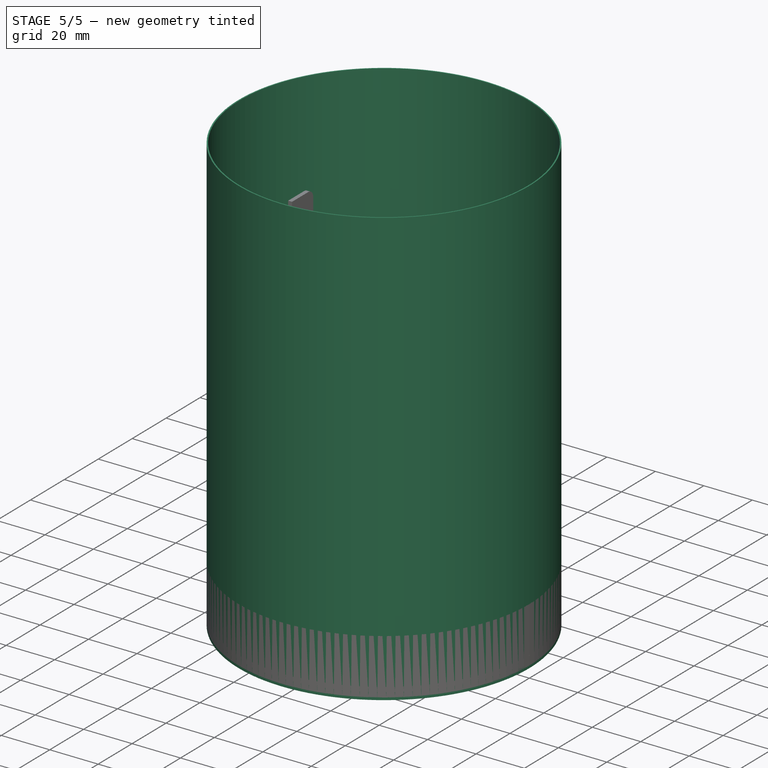
[diagram: stage 5 of 5 — iso view after this stage's code; geometry added in this stage tinted green]
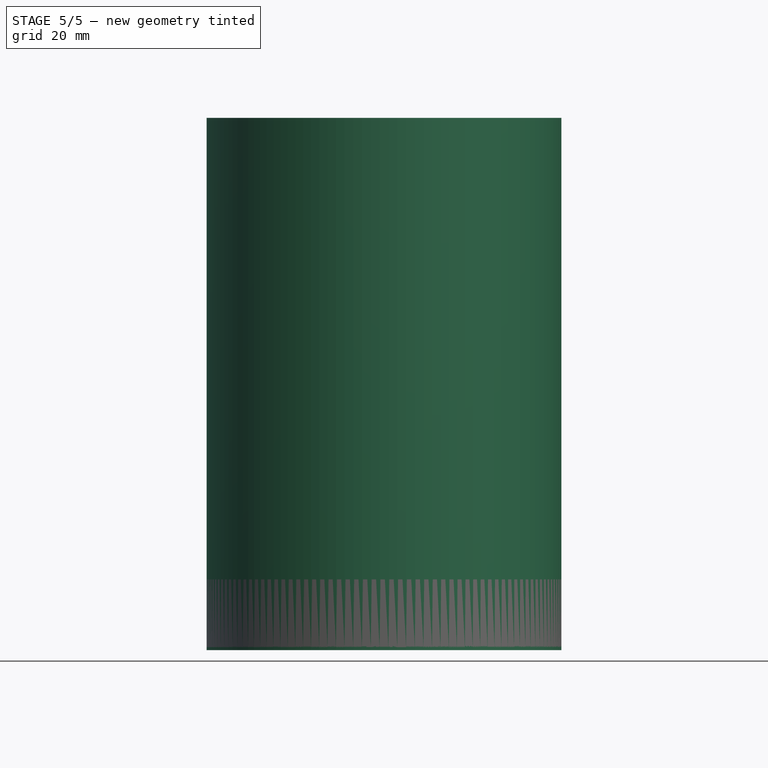
[diagram: stage 5 of 5 — front view after this stage's code; geometry added in this stage tinted green]
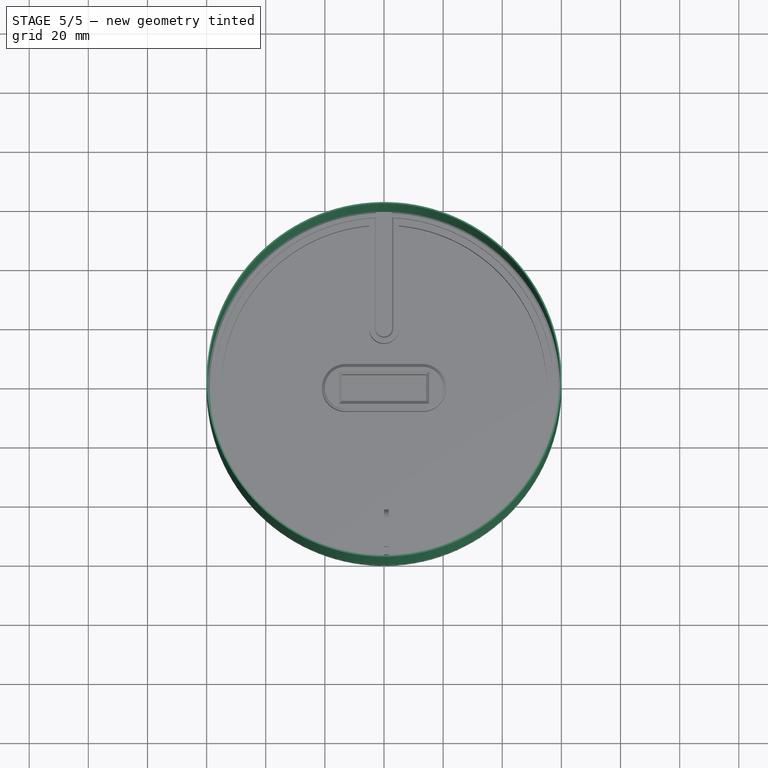
[diagram: stage 5 of 5 — top view after this stage's code; geometry added in this stage tinted green]
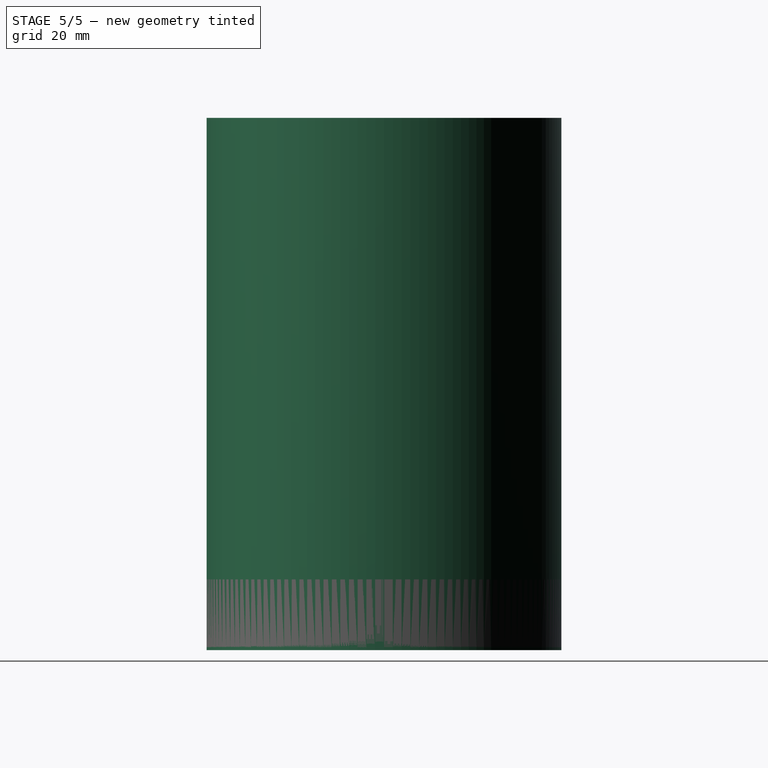
[diagram: stage 5 of 5 — right view after this stage's code; geometry added in this stage tinted green]
FEATURE [Sketcher::SketchObject] Sketch
  MapMode = 5
  Support = -> [XY_Plane]
  sketch-geometry (2):
    g0: Circle CenterX=0 CenterY=0 CenterZ=0 NormalX=0 NormalY=0 NormalZ=1 AngleXU=0 Radius=60
    g1: Circle CenterX=0 CenterY=0 CenterZ=0 NormalX=0 NormalY=0 NormalZ=1 AngleXU=0 Radius=59.5
  constraints (4):
    c: Coincident(g0,g-1)
    c: Radius(g0) = 60
    c: Coincident(g1,g-1)
    c: Radius(g1) = 59.5
FEATURE [PartDesign::Pad] Pad
  Length = 180
  Length2 = 100
  Profile = -> Sketch
  Refine = true
  Type = 0
FEATURE [PartDesign::Body] Body  label="Shade"
  Group = -> [Sketch,Pad]
  Origin = -> Origin
  Tip = -> Pad
FEATURE [Sketcher::SketchObject] Sketch001
  MapMode = 5
  Support = -> [XY_Plane001]
  sketch-geometry (2):
    g0: Circle CenterX=0 CenterY=0 CenterZ=0 NormalX=0 NormalY=0 NormalZ=1 AngleXU=0 Radius=59.4
    g1: Circle CenterX=0 CenterY=0 CenterZ=0 NormalX=0 NormalY=0 NormalZ=1 AngleXU=0 Radius=44.4
  constraints (4):
    c: Coincident(g0,g-1)
    c: Radius(g0) = 59.4
    c: Coincident(g1,g-1)
    c: Radius(g1) = 44.4
FEATURE [PartDesign::Pad] Pad001
  Length = 1.5
  Length2 = 100
  Profile = -> Sketch001
  Refine = true
  Type = 0
FEATURE [PartDesign::Plane] DatumPlane
  MapMode = 5
  Placement = pos=(0,0,1.5) rot=(0,0,1;0rad)
  Support = -> [Pad001]
FEATURE [Sketcher::SketchObject] Sketch002
  ExternalGeometry = -> [Pad001]
  MapMode = 5
  Placement = pos=(0,0,1.5) rot=(0,0,1;0rad)
  Support = -> [DatumPlane]
  sketch-geometry (8):
    g0: LineSegment StartX=-0.85 StartY=-44.3919 StartZ=0 EndX=0.849963 EndY=-44.3919 EndZ=0
    g1: LineSegment StartX=0.849963 StartY=-44.3919 StartZ=0 EndX=0.85 EndY=-51.3919 EndZ=0
    g2: LineSegment StartX=0.85 StartY=-51.3919 StartZ=0 EndX=-0.85 EndY=-51.3919 EndZ=0
    g3: LineSegment StartX=-0.85 StartY=-51.3919 StartZ=0 EndX=-0.85 EndY=-44.3919 EndZ=0
    g4: LineSegment StartX=1.84996 StartY=-44.3614 StartZ=0 EndX=2.15779 EndY=-46.3376 EndZ=0
    g5: LineSegment StartX=2.15779 StartY=-46.3376 StartZ=0 EndX=12.0386 EndY=-44.7985 EndZ=0
    g6: LineSegment StartX=12.0386 StartY=-44.7985 StartZ=0 EndX=11.7308 EndY=-42.8223 EndZ=0
    g7: LineSegment StartX=11.7308 StartY=-42.8223 StartZ=0 EndX=1.84996 EndY=-44.3614 EndZ=0
  constraints (24):
    c: Coincident(g0,g1)
    c: Coincident(g1,g2)
    c: Coincident(g2,g3)
    c: Coincident(g3,g0)
    c: Horizontal(g0)
    c: Horizontal(g2)
    c: Vertical(g3)
    c: Symmetric(g2,g1,g-2)
    c: DistanceX(g2,g1) = 1.7
    c: DistanceY(g1,g0) = 7
    c: PointOnObject(g0,g-3)
    c: Coincident(g4,g5)
    c: Coincident(g5,g6)
    c: Coincident(g6,g7)
    c: Coincident(g7,g4)
    c: Parallel(g7,g5)
    c: Parallel(g4,g6)
    c: Angle(g5,g4) = 1.5708
    c: Equal(g1,g3)
    c: PointOnObject(g4,g-3)
    c: PointOnObject(g6,g-3)
    c: DistanceX(g0,g4) = 1
    c: Distance(g4,g5) = 10
    c: Distance(g5,g6) = 2
FEATURE [PartDesign::Pocket] Pocket
  BaseFeature = -> Pad001
  Length = 1.5
  Length2 = 100
  Profile = -> Sketch002
  Refine = true
  Type = 0
FEATURE [PartDesign::PolarPattern] PolarPattern
  Angle = 360
  Axis = -> Sketch002 [N_Axis]
  BaseFeature = -> Pocket
  Occurrences = 20
  Originals = -> [Pocket]
  Refine = true
FEATURE [Sketcher::SketchObject] Sketch005
  MapMode = 5
  Support = -> [XY_Plane003]
  sketch-geometry (2):
    g0: Circle CenterX=0 CenterY=0 CenterZ=0 NormalX=0 NormalY=0 NormalZ=1 AngleXU=0 Radius=59.4
    g1: Circle CenterX=0 CenterY=0 CenterZ=0 NormalX=0 NormalY=0 NormalZ=1 AngleXU=0 Radius=44.4
  constraints (4):
    c: Coincident(g0,g-1)
    c: Radius(g0) = 59.4
    c: Coincident(g1,g-1)
    c: Radius(g1) = 44.4
FEATURE [PartDesign::Pad] Pad003
  Length = 1.5
  Length2 = 100
  Profile = -> Sketch005
  Refine = true
  Type = 0
FEATURE [PartDesign::Plane] DatumPlane001
  MapMode = 5
  Placement = pos=(0,0,1.5) rot=(0,0,1;0rad)
  Support = -> [Pad003]
FEATURE [Sketcher::SketchObject] Sketch004
  ExternalGeometry = -> [Pad003]
  MapMode = 5
  Placement = pos=(0,0,1.5) rot=(0,0,1;0rad)
  Support = -> [DatumPlane001]
  sketch-geometry (8):
    g0: LineSegment StartX=-0.85 StartY=-44.3919 StartZ=0 EndX=0.849963 EndY=-44.3919 EndZ=0
    g1: LineSegment StartX=0.849963 StartY=-44.3919 StartZ=0 EndX=0.85 EndY=-51.3919 EndZ=0
    g2: LineSegment StartX=0.85 StartY=-51.3919 StartZ=0 EndX=-0.85 EndY=-51.3919 EndZ=0
    g3: LineSegment StartX=-0.85 StartY=-51.3919 StartZ=0 EndX=-0.85 EndY=-44.3919 EndZ=0
    g4: LineSegment StartX=1.84996 StartY=-44.3614 StartZ=0 EndX=2.15779 EndY=-46.3376 EndZ=0
    g5: LineSegment StartX=2.15779 StartY=-46.3376 StartZ=0 EndX=12.0386 EndY=-44.7985 EndZ=0
    g6: LineSegment StartX=12.0386 StartY=-44.7985 StartZ=0 EndX=11.7308 EndY=-42.8223 EndZ=0
    g7: LineSegment StartX=11.7308 StartY=-42.8223 StartZ=0 EndX=1.84996 EndY=-44.3614 EndZ=0
  constraints (24):
    c: Coincident(g0,g1)
    c: Coincident(g1,g2)
    c: Coincident(g2,g3)
    c: Coincident(g3,g0)
    c: Horizontal(g0)
    c: Horizontal(g2)
    c: Vertical(g3)
    c: Symmetric(g2,g1,g-2)
    c: DistanceX(g2,g1) = 1.7
    c: DistanceY(g1,g0) = 7
    c: PointOnObject(g0,g-3)
    c: Coincident(g4,g5)
    c: Coincident(g5,g6)
    c: Coincident(g6,g7)
    c: Coincident(g7,g4)
    c: Parallel(g7,g5)
    c: Parallel(g4,g6)
    c: Angle(g5,g4) = 1.5708
    c: Equal(g1,g3)
    c: PointOnObject(g4,g-3)
    c: PointOnObject(g6,g-3)
    c: DistanceX(g0,g4) = 1
    c: Distance(g4,g5) = 10
    c: Distance(g5,g6) = 2
FEATURE [PartDesign::Pocket] Pocket001
  BaseFeature = -> Pad003
  Length = 1.5
  Length2 = 100
  Profile = -> Sketch004
  Refine = true
  Type = 0
FEATURE [PartDesign::PolarPattern] PolarPattern001
  Angle = 360
  Axis = -> Sketch004 [N_Axis]
  BaseFeature = -> Pocket001
  Occurrences = 20
  Originals = -> [Pocket001]
  Refine = true
FEATURE [PartDesign::Body] Body003  label="Circular_Strut2"
  Group = -> [Sketch005,Pad003,DatumPlane001,Sketch004,Pocket001,PolarPattern001]
  Origin = -> Origin003
  Placement = pos=(0,0,41.9) rot=(0,0,1;0rad)
  Tip = -> PolarPattern001
FEATURE [Sketcher::SketchObject] Sketch007
  MapMode = 5
  Support = -> [XY_Plane004]
  sketch-geometry (2):
    g0: Circle CenterX=0 CenterY=0 CenterZ=0 NormalX=0 NormalY=0 NormalZ=1 AngleXU=0 Radius=59.4
    g1: Circle CenterX=0 CenterY=0 CenterZ=0 NormalX=0 NormalY=0 NormalZ=1 AngleXU=0 Radius=44.4
  constraints (4):
    c: Coincident(g0,g-1)
    c: Radius(g0) = 59.4
    c: Coincident(g1,g-1)
    c: Radius(g1) = 44.4
FEATURE [PartDesign::Pad] Pad004
  Length = 1.5
  Length2 = 100
  Profile = -> Sketch007
  Refine = true
  Type = 0
FEATURE [PartDesign::Plane] DatumPlane002
  MapMode = 5
  Placement = pos=(0,0,1.5) rot=(0,0,1;0rad)
  Support = -> [Pad004]
FEATURE [Sketcher::SketchObject] Sketch006
  ExternalGeometry = -> [Pad004]
  MapMode = 5
  Placement = pos=(0,0,1.5) rot=(0,0,1;0rad)
  Support = -> [DatumPlane002]
  sketch-geometry (8):
    g0: LineSegment StartX=-0.85 StartY=-44.3919 StartZ=0 EndX=0.849963 EndY=-44.3919 EndZ=0
    g1: LineSegment StartX=0.849963 StartY=-44.3919 StartZ=0 EndX=0.85 EndY=-51.3919 EndZ=0
    g2: LineSegment StartX=0.85 StartY=-51.3919 StartZ=0 EndX=-0.85 EndY=-51.3919 EndZ=0
    g3: LineSegment StartX=-0.85 StartY=-51.3919 StartZ=0 EndX=-0.85 EndY=-44.3919 EndZ=0
    g4: LineSegment StartX=1.84996 StartY=-44.3614 StartZ=0 EndX=2.15779 EndY=-46.3376 EndZ=0
    g5: LineSegment StartX=2.15779 StartY=-46.3376 StartZ=0 EndX=12.0386 EndY=-44.7985 EndZ=0
    g6: LineSegment StartX=12.0386 StartY=-44.7985 StartZ=0 EndX=11.7308 EndY=-42.8223 EndZ=0
    g7: LineSegment StartX=11.7308 StartY=-42.8223 StartZ=0 EndX=1.84996 EndY=-44.3614 EndZ=0
  constraints (24):
    c: Coincident(g0,g1)
    c: Coincident(g1,g2)
    c: Coincident(g2,g3)
    c: Coincident(g3,g0)
    c: Horizontal(g0)
    c: Horizontal(g2)
    c: Vertical(g3)
    c: Symmetric(g2,g1,g-2)
    c: DistanceX(g2,g1) = 1.7
    c: DistanceY(g1,g0) = 7
    c: PointOnObject(g0,g-3)
    c: Coincident(g4,g5)
    c: Coincident(g5,g6)
    c: Coincident(g6,g7)
    c: Coincident(g7,g4)
    c: Parallel(g7,g5)
    c: Parallel(g4,g6)
    c: Angle(g5,g4) = 1.5708
    c: Equal(g1,g3)
    c: PointOnObject(g4,g-3)
    c: PointOnObject(g6,g-3)
    c: DistanceX(g0,g4) = 1
    c: Distance(g4,g5) = 10
    c: Distance(g5,g6) = 2
FEATURE [PartDesign::Pocket] Pocket002
  BaseFeature = -> Pad004
  Length = 1.5
  Length2 = 100
  Profile = -> Sketch006
  Refine = true
  Type = 0
FEATURE [PartDesign::PolarPattern] PolarPattern002
  Angle = 360
  Axis = -> Sketch006 [N_Axis]
  BaseFeature = -> Pocket002
  Occurrences = 20
  Originals = -> [Pocket002]
  Refine = true
FEATURE [PartDesign::Body] Body004  label="Circular_Strut003"
  Group = -> [Sketch007,Pad004,DatumPlane002,Sketch006,Pocket002,PolarPattern002]
  Origin = -> Origin004
  Placement = pos=(0,0,58.8) rot=(0,0,1;0rad)
  Tip = -> PolarPattern002
FEATURE [Sketcher::SketchObject] Sketch008
  MapMode = 5
  Support = -> [XY_Plane005]
  sketch-geometry (2):
    g0: Circle CenterX=0 CenterY=0 CenterZ=0 NormalX=0 NormalY=0 NormalZ=1 AngleXU=0 Radius=59.4
    g1: Circle CenterX=0 CenterY=0 CenterZ=0 NormalX=0 NormalY=0 NormalZ=1 AngleXU=0 Radius=44.4
  constraints (4):
    c: Coincident(g0,g-1)
    c: Radius(g0) = 59.4
    c: Coincident(g1,g-1)
    c: Radius(g1) = 44.4
FEATURE [PartDesign::Pad] Pad005
  Length = 1.5
  Length2 = 100
  Profile = -> Sketch008
  Refine = true
  Type = 0
FEATURE [PartDesign::Plane] DatumPlane003
  MapMode = 5
  Placement = pos=(0,0,1.5) rot=(0,0,1;0rad)
  Support = -> [Pad005]
FEATURE [Sketcher::SketchObject] Sketch009
  ExternalGeometry = -> [Pad005]
  MapMode = 5
  Placement = pos=(0,0,1.5) rot=(0,0,1;0rad)
  Support = -> [DatumPlane003]
  sketch-geometry (8):
    g0: LineSegment StartX=-0.85 StartY=-44.3919 StartZ=0 EndX=0.849963 EndY=-44.3919 EndZ=0
    g1: LineSegment StartX=0.849963 StartY=-44.3919 StartZ=0 EndX=0.85 EndY=-51.3919 EndZ=0
    g2: LineSegment StartX=0.85 StartY=-51.3919 StartZ=0 EndX=-0.85 EndY=-51.3919 EndZ=0
    g3: LineSegment StartX=-0.85 StartY=-51.3919 StartZ=0 EndX=-0.85 EndY=-44.3919 EndZ=0
    g4: LineSegment StartX=1.84996 StartY=-44.3614 StartZ=0 EndX=2.15779 EndY=-46.3376 EndZ=0
    g5: LineSegment StartX=2.15779 StartY=-46.3376 StartZ=0 EndX=12.0386 EndY=-44.7985 EndZ=0
    g6: LineSegment StartX=12.0386 StartY=-44.7985 StartZ=0 EndX=11.7308 EndY=-42.8223 EndZ=0
    g7: LineSegment StartX=11.7308 StartY=-42.8223 StartZ=0 EndX=1.84996 EndY=-44.3614 EndZ=0
  constraints (24):
    c: Coincident(g0,g1)
    c: Coincident(g1,g2)
    c: Coincident(g2,g3)
    c: Coincident(g3,g0)
    c: Horizontal(g0)
    c: Horizontal(g2)
    c: Vertical(g3)
    c: Symmetric(g2,g1,g-2)
    c: DistanceX(g2,g1) = 1.7
    c: DistanceY(g1,g0) = 7
    c: PointOnObject(g0,g-3)
    c: Coincident(g4,g5)
    c: Coincident(g5,g6)
    c: Coincident(g6,g7)
    c: Coincident(g7,g4)
    c: Parallel(g7,g5)
    c: Parallel(g4,g6)
    c: Angle(g5,g4) = 1.5708
    c: Equal(g1,g3)
    c: PointOnObject(g4,g-3)
    c: PointOnObject(g6,g-3)
    c: DistanceX(g0,g4) = 1
    c: Distance(g4,g5) = 10
    c: Distance(g5,g6) = 2
FEATURE [PartDesign::Pocket] Pocket003
  BaseFeature = -> Pad005
  Length = 1.5
  Length2 = 100
  Profile = -> Sketch009
  Refine = true
  Type = 0
FEATURE [PartDesign::PolarPattern] PolarPattern003
  Angle = 360
  Axis = -> Sketch009 [N_Axis]
  BaseFeature = -> Pocket003
  Occurrences = 20
  Originals = -> [Pocket003]
  Refine = true
FEATURE [PartDesign::Body] Body005  label="Circular_Strut004"
  Group = -> [Sketch008,Pad005,DatumPlane003,Sketch009,Pocket003,PolarPattern003]
  Origin = -> Origin005
  Placement = pos=(0,0,75.6) rot=(0,0,1;0rad)
  Tip = -> PolarPattern003
FEATURE [Sketcher::SketchObject] Sketch010
  MapMode = 5
  Support = -> [XY_Plane006]
  sketch-geometry (2):
    g0: Circle CenterX=0 CenterY=0 CenterZ=0 NormalX=0 NormalY=0 NormalZ=1 AngleXU=0 Radius=59.4
    g1: Circle CenterX=0 CenterY=0 CenterZ=0 NormalX=0 NormalY=0 NormalZ=1 AngleXU=0 Radius=44.4
  constraints (4):
    c: Coincident(g0,g-1)
    c: Radius(g0) = 59.4
    c: Coincident(g1,g-1)
    c: Radius(g1) = 44.4
FEATURE [PartDesign::Pad] Pad006
  Length = 1.5
  Length2 = 100
  Profile = -> Sketch010
  Refine = true
  Type = 0
FEATURE [PartDesign::Plane] DatumPlane004
  MapMode = 5
  Placement = pos=(0,0,1.5) rot=(0,0,1;0rad)
  Support = -> [Pad006]
FEATURE [Sketcher::SketchObject] Sketch011
  ExternalGeometry = -> [Pad006]
  MapMode = 5
  Placement = pos=(0,0,1.5) rot=(0,0,1;0rad)
  Support = -> [DatumPlane004]
  sketch-geometry (8):
    g0: LineSegment StartX=-0.85 StartY=-44.3919 StartZ=0 EndX=0.849963 EndY=-44.3919 EndZ=0
    g1: LineSegment StartX=0.849963 StartY=-44.3919 StartZ=0 EndX=0.85 EndY=-51.3919 EndZ=0
    g2: LineSegment StartX=0.85 StartY=-51.3919 StartZ=0 EndX=-0.85 EndY=-51.3919 EndZ=0
    g3: LineSegment StartX=-0.85 StartY=-51.3919 StartZ=0 EndX=-0.85 EndY=-44.3919 EndZ=0
    g4: LineSegment StartX=1.84996 StartY=-44.3614 StartZ=0 EndX=2.15779 EndY=-46.3376 EndZ=0
    g5: LineSegment StartX=2.15779 StartY=-46.3376 StartZ=0 EndX=12.0386 EndY=-44.7985 EndZ=0
    g6: LineSegment StartX=12.0386 StartY=-44.7985 StartZ=0 EndX=11.7308 EndY=-42.8223 EndZ=0
    g7: LineSegment StartX=11.7308 StartY=-42.8223 StartZ=0 EndX=1.84996 EndY=-44.3614 EndZ=0
  constraints (24):
    c: Coincident(g0,g1)
    c: Coincident(g1,g2)
    c: Coincident(g2,g3)
    c: Coincident(g3,g0)
    c: Horizontal(g0)
    c: Horizontal(g2)
    c: Vertical(g3)
    c: Symmetric(g2,g1,g-2)
    c: DistanceX(g2,g1) = 1.7
    c: DistanceY(g1,g0) = 7
    c: PointOnObject(g0,g-3)
    c: Coincident(g4,g5)
    c: Coincident(g5,g6)
    c: Coincident(g6,g7)
    c: Coincident(g7,g4)
    c: Parallel(g7,g5)
    c: Parallel(g4,g6)
    c: Angle(g5,g4) = 1.5708
    c: Equal(g1,g3)
    c: PointOnObject(g4,g-3)
    c: PointOnObject(g6,g-3)
    c: DistanceX(g0,g4) = 1
    c: Distance(g4,g5) = 10
    c: Distance(g5,g6) = 2
FEATURE [PartDesign::Pocket] Pocket004
  BaseFeature = -> Pad006
  Length = 1.5
  Length2 = 100
  Profile = -> Sketch011
  Refine = true
  Type = 0
FEATURE [PartDesign::PolarPattern] PolarPattern004
  Angle = 360
  Axis = -> Sketch011 [N_Axis]
  BaseFeature = -> Pocket004
  Occurrences = 20
  Originals = -> [Pocket004]
  Refine = true
FEATURE [PartDesign::PolarPattern] PolarPattern005
  Angle = 360
  Axis = -> Sketch013 [N_Axis]
  BaseFeature = -> Pocket005
  Occurrences = 20
  Originals = -> [Pocket005]
  Refine = true
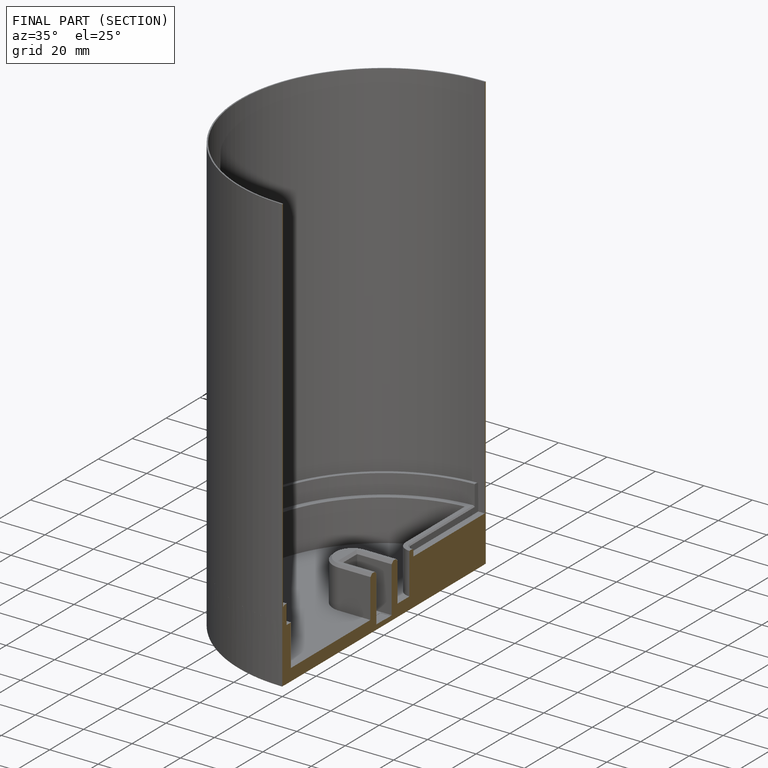
[diagram: finished part — half-section view (interior)]
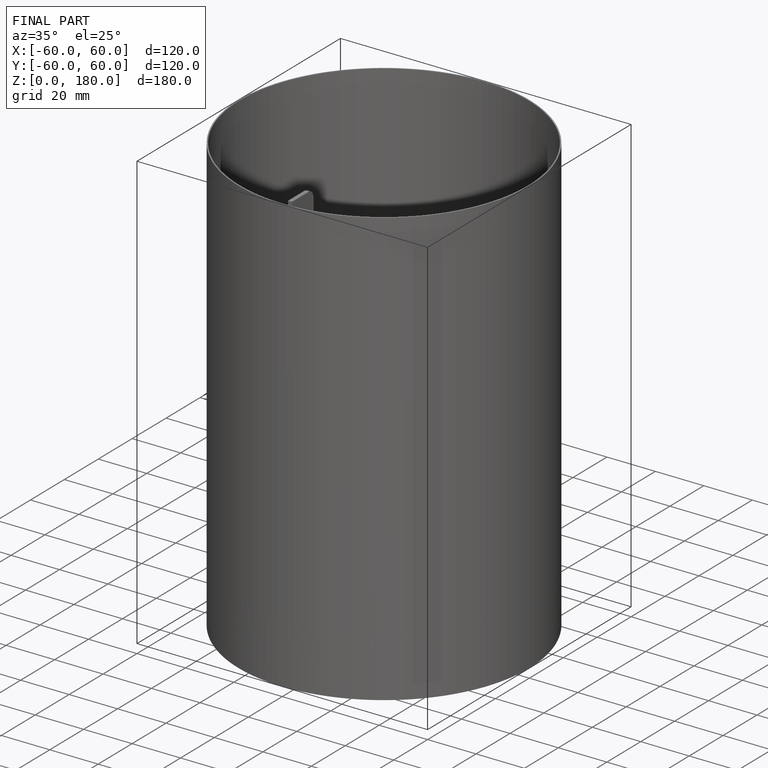
[diagram: finished part — iso view with bounding-box wireframe]
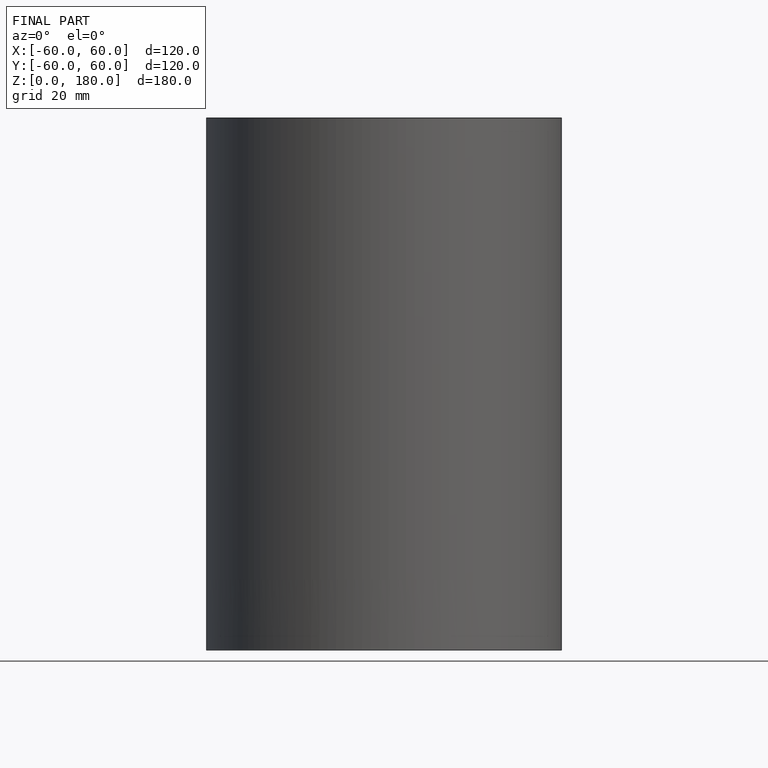
[diagram: finished part — front view with bounding-box wireframe]
